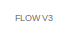
[diagram: root canvas - part 1/20, top right region]
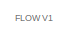
[diagram: root canvas - part 2/20, top left region]
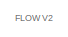
[diagram: root canvas - part 3/20, top center region]
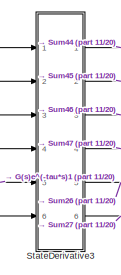
[diagram: root canvas - part 4/20, top center region]
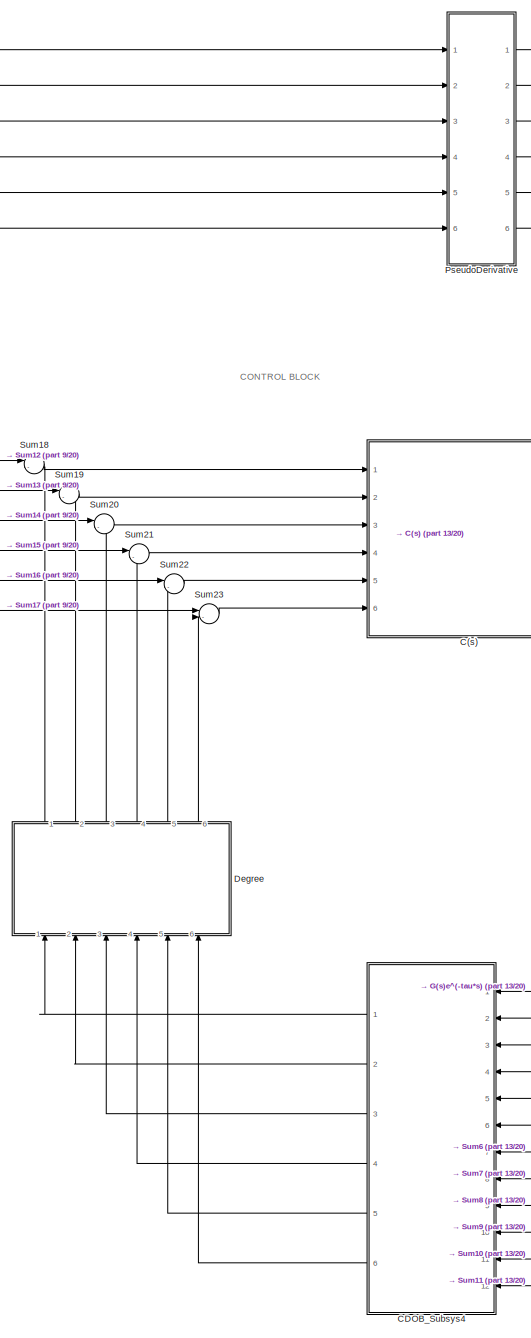
[diagram: root canvas - part 5/20, middle left region]
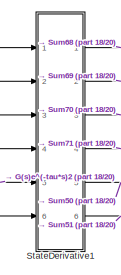
[diagram: root canvas - part 6/20, top right region]
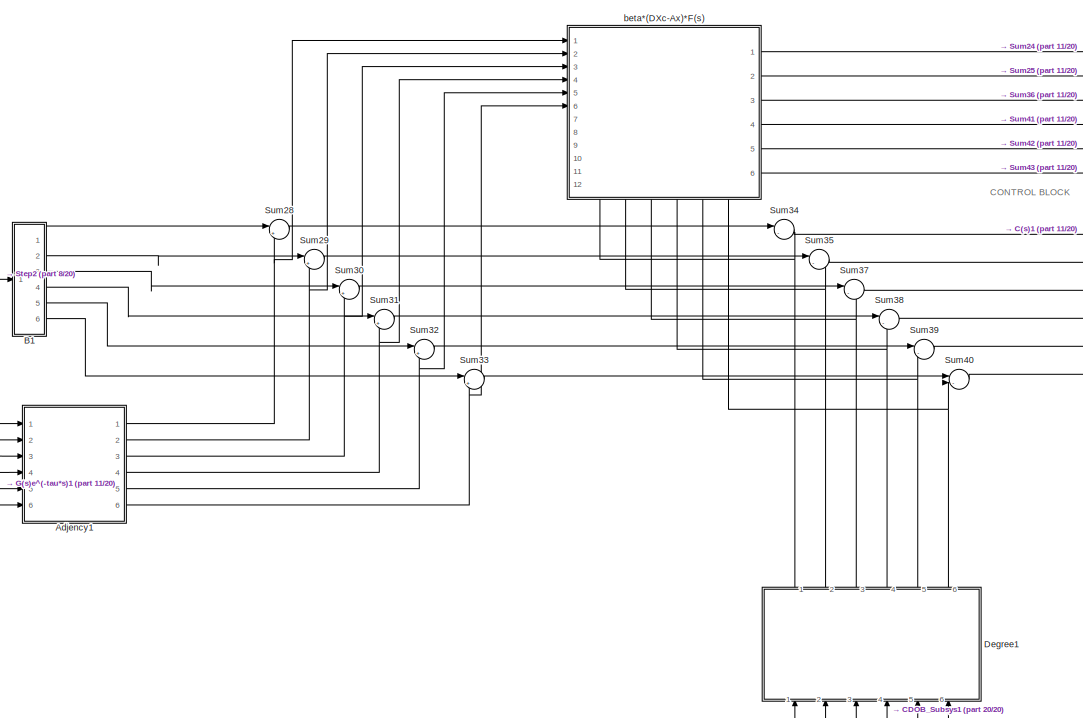
[diagram: root canvas - part 7/20, central region]
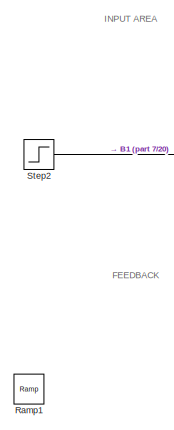
[diagram: root canvas - part 8/20, central region]
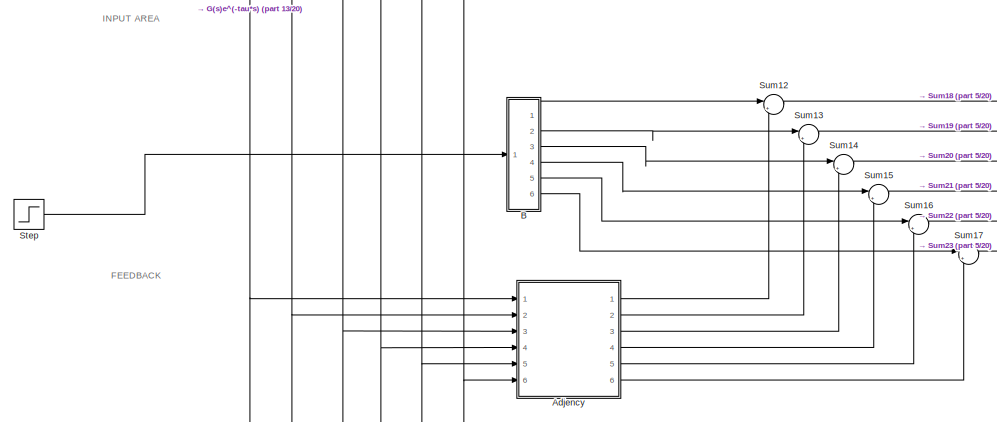
[diagram: root canvas - part 9/20, middle left region]
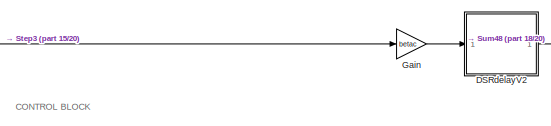
[diagram: root canvas - part 10/20, middle right region]
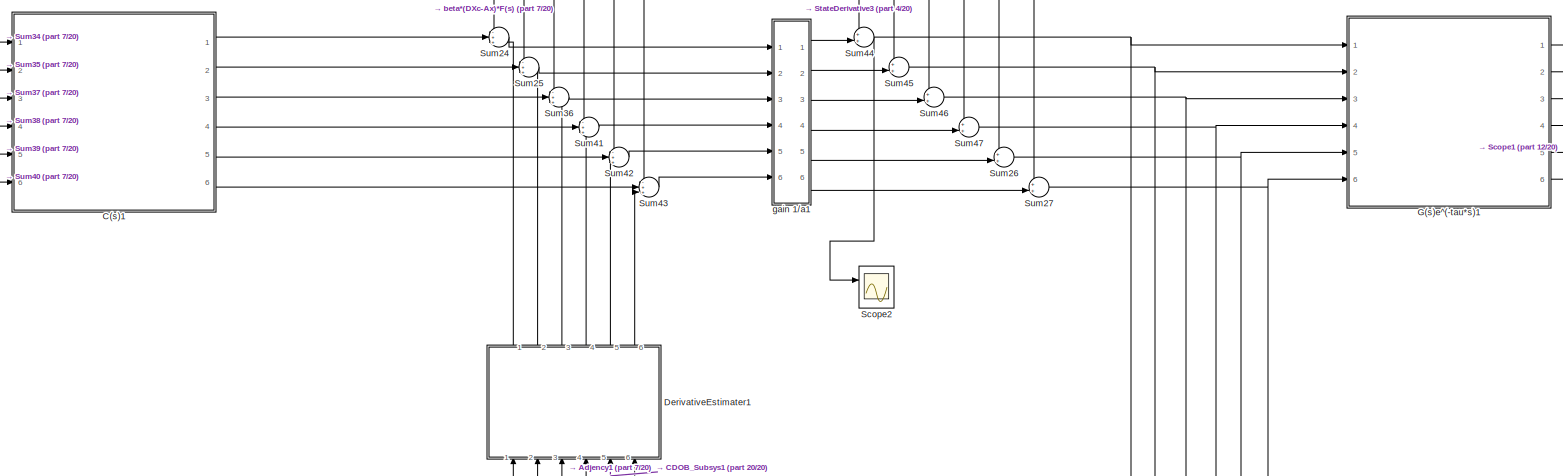
[diagram: root canvas - part 11/20, central region]
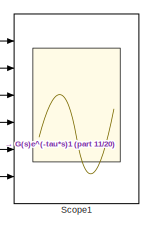
[diagram: root canvas - part 12/20, middle right region]
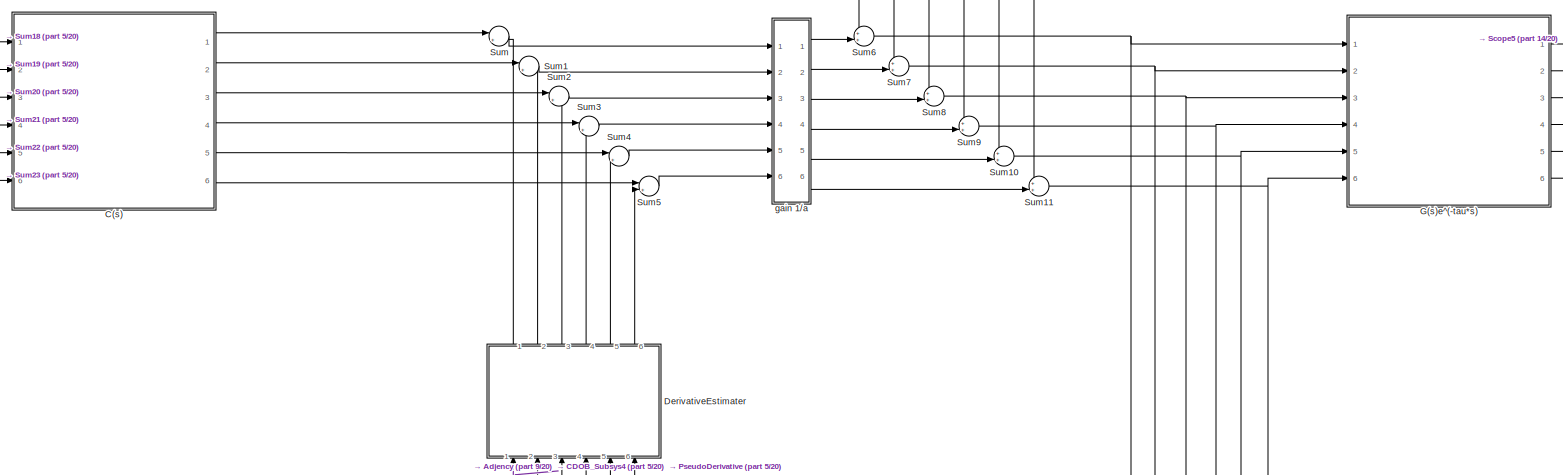
[diagram: root canvas - part 13/20, middle left region]
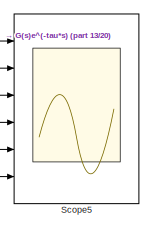
[diagram: root canvas - part 14/20, central region]
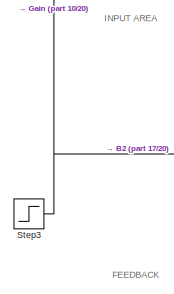
[diagram: root canvas - part 15/20, middle right region]
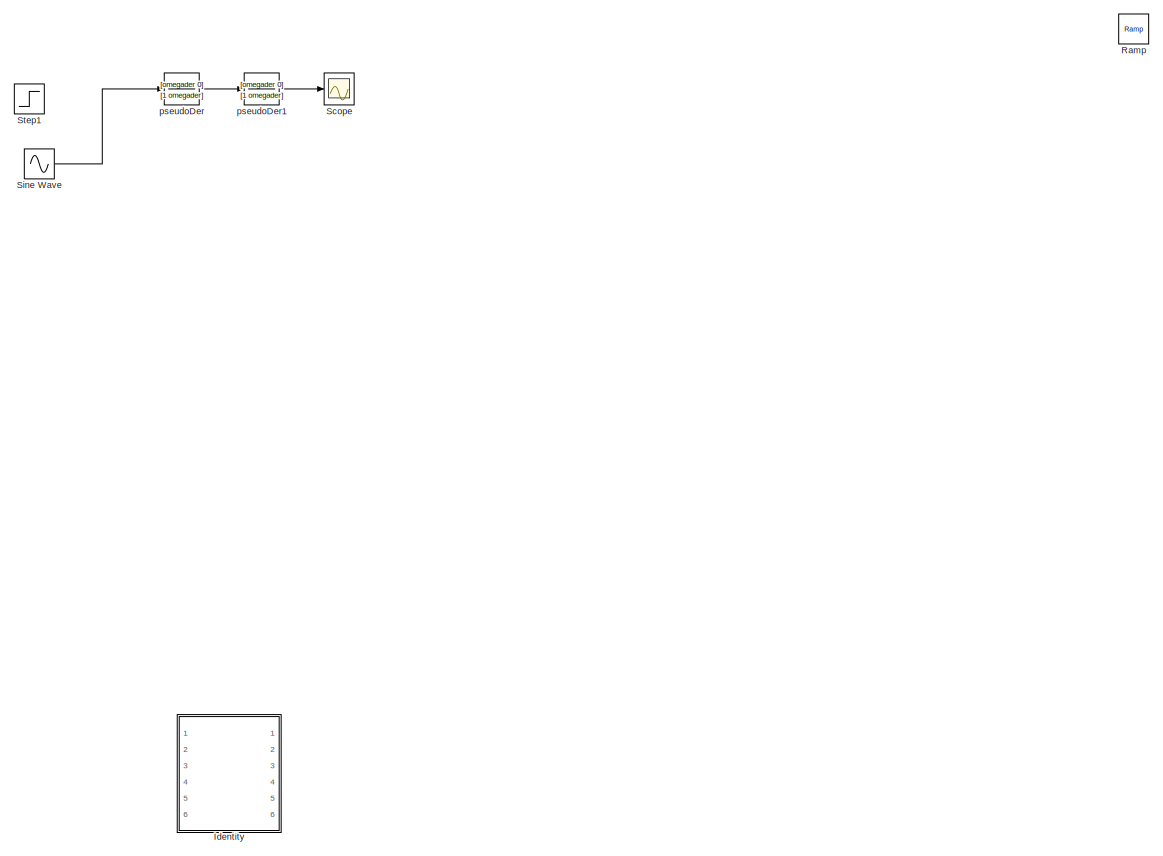
[diagram: root canvas - part 16/20, middle left region]
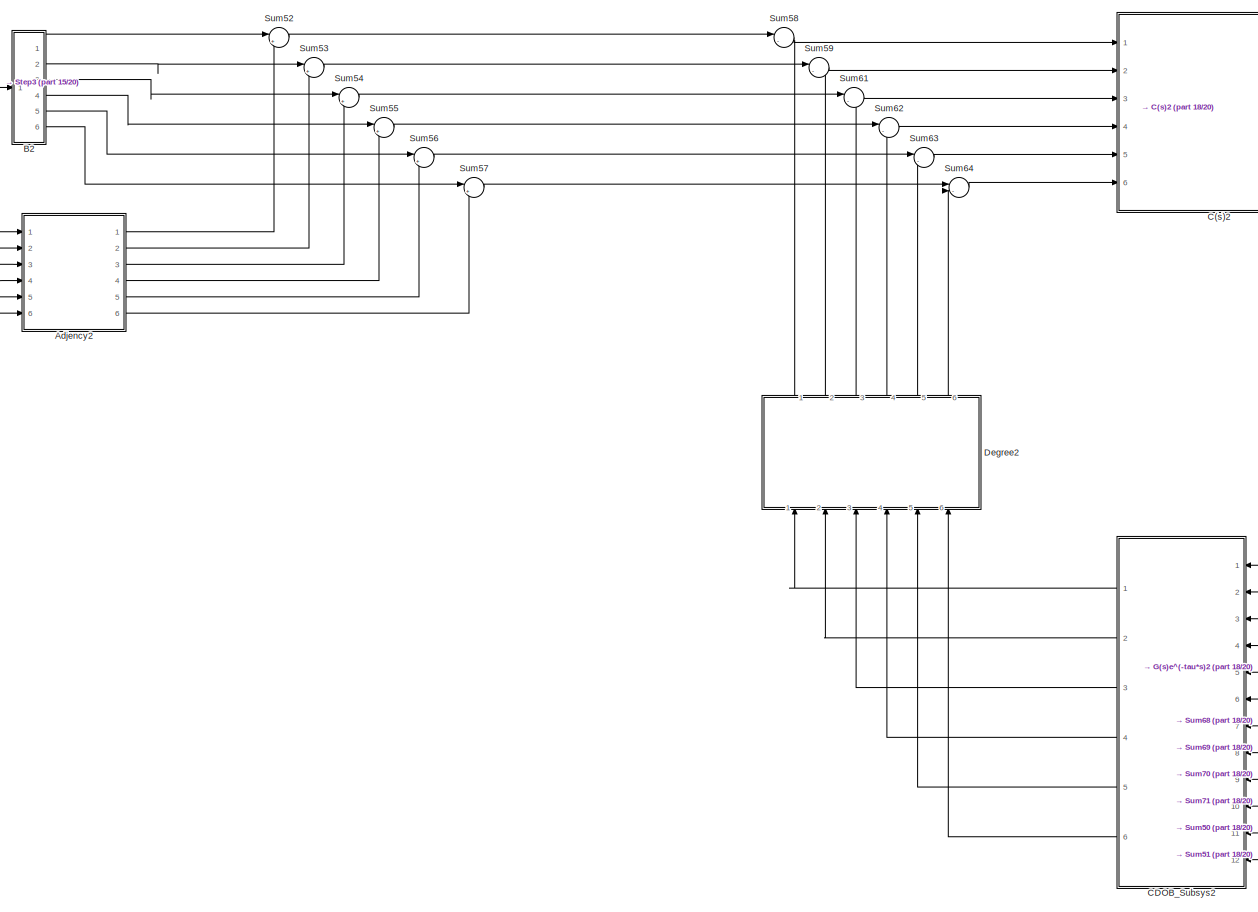
[diagram: root canvas - part 17/20, middle right region]
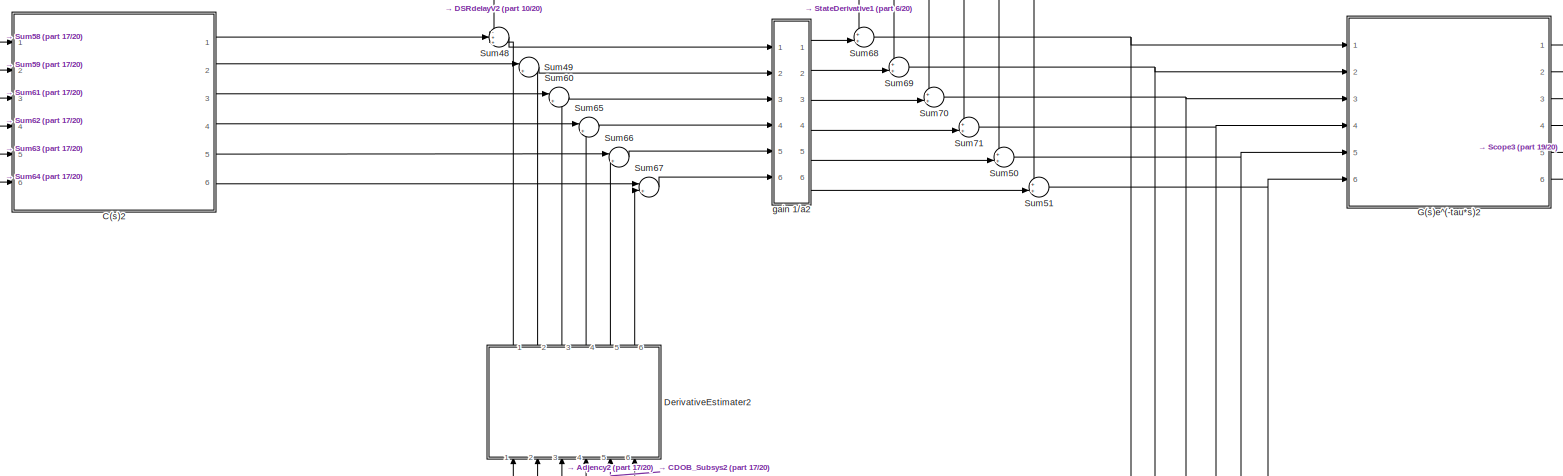
[diagram: root canvas - part 18/20, middle right region]
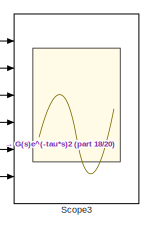
[diagram: root canvas - part 19/20, middle right region]
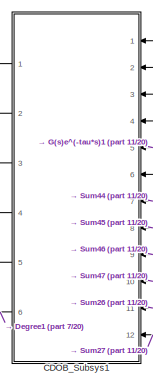
[diagram: root canvas - part 20/20, bottom center region]
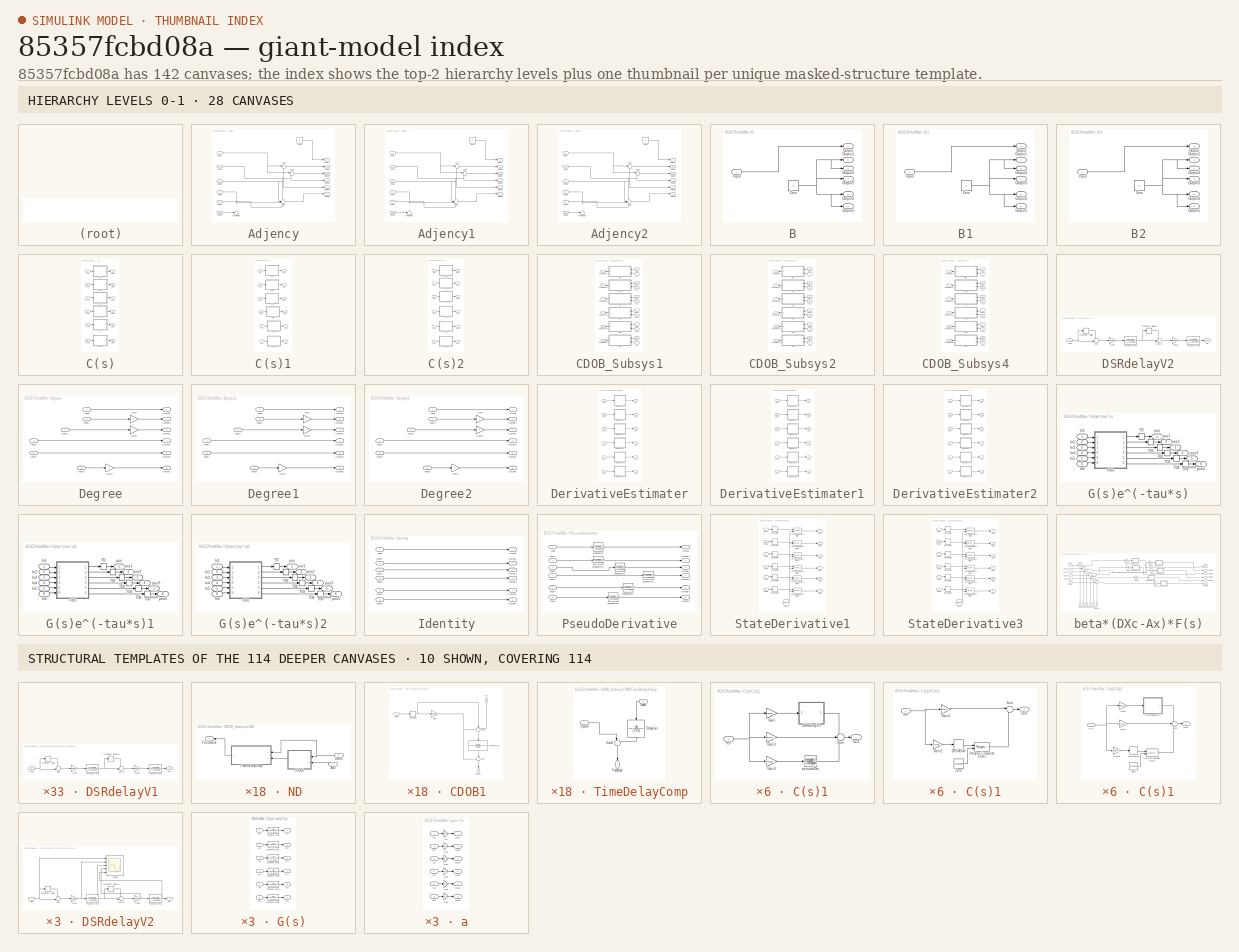
[diagram: thumbnail index - top-2 hierarchy levels (28 canvases) + 10 structural-template representatives of the remaining 114 canvases]
MODEL slx_85357fcbd08a
KIND model
CONFIG AbsTol = auto
CONFIG EnableMultiTasking = off
CONFIG FixedStep = auto
CONFIG MaxStep = auto
CONFIG MinStep = auto
CONFIG RelTol = 1e-3
CONFIG SampleTimeConstraint = Unconstrained
CONFIG SolverName = VariableStepAuto
CONFIG StartTime = 0.0
CONFIG StopTime = 10.0
BLOCK [SubSystem] Adjency
  Commented = on
  Ports = [6, 6]
  RequestExecContextInheritance = off
BLOCK [Inport] Adjency/Input
BLOCK [Inport] Adjency/Input1
  Port = 2
BLOCK [Inport] Adjency/Input2
  Port = 3
BLOCK [Inport] Adjency/Input3
  Port = 4
BLOCK [Inport] Adjency/Input4
  Port = 5
BLOCK [Inport] Adjency/Input5
  Port = 6
BLOCK [Outport] Adjency/Output
BLOCK [Outport] Adjency/Output1
  Port = 2
BLOCK [Outport] Adjency/Output2
  Port = 3
BLOCK [Outport] Adjency/Output3
  Port = 4
BLOCK [Outport] Adjency/Output4
  Port = 5
BLOCK [Outport] Adjency/Output5
  Port = 6
BLOCK [Sum] Adjency/Sum
  Inputs = |++
  Ports = [2, 1]
BLOCK [Sum] Adjency/Sum1
  Inputs = |++
  Ports = [2, 1]
BLOCK [Sum] Adjency/Sum2
  Inputs = ++++
  Ports = [4, 1]
BLOCK [Terminator] Adjency/Terminator
BLOCK [Constant] Adjency/Zero
  OutDataTypeStr = Inherit: Inherit via back propagation
  Value = 0
BLOCK [SubSystem] Adjency1
  Commented = on
  Ports = [6, 6]
  RequestExecContextInheritance = off
BLOCK [Inport] Adjency1/Input
BLOCK [Inport] Adjency1/Input1
  Port = 2
BLOCK [Inport] Adjency1/Input2
  Port = 3
BLOCK [Inport] Adjency1/Input3
  Port = 4
BLOCK [Inport] Adjency1/Input4
  Port = 5
BLOCK [Inport] Adjency1/Input5
  Port = 6
BLOCK [Outport] Adjency1/Output
BLOCK [Outport] Adjency1/Output1
  Port = 2
BLOCK [Outport] Adjency1/Output2
  Port = 3
BLOCK [Outport] Adjency1/Output3
  Port = 4
BLOCK [Outport] Adjency1/Output4
  Port = 5
BLOCK [Outport] Adjency1/Output5
  Port = 6
BLOCK [Sum] Adjency1/Sum
  Inputs = |++
  Ports = [2, 1]
BLOCK [Sum] Adjency1/Sum1
  Inputs = |++
  Ports = [2, 1]
BLOCK [Sum] Adjency1/Sum2
  Inputs = ++++
  Ports = [4, 1]
BLOCK [Terminator] Adjency1/Terminator
BLOCK [Constant] Adjency1/Zero
  OutDataTypeStr = Inherit: Inherit via back propagation
  Value = 0
BLOCK [SubSystem] Adjency2
  Ports = [6, 6]
  RequestExecContextInheritance = off
BLOCK [Inport] Adjency2/Input
BLOCK [Inport] Adjency2/Input1
  Port = 2
BLOCK [Inport] Adjency2/Input2
  Port = 3
BLOCK [Inport] Adjency2/Input3
  Port = 4
BLOCK [Inport] Adjency2/Input4
  Port = 5
BLOCK [Inport] Adjency2/Input5
  Port = 6
BLOCK [Outport] Adjency2/Output
BLOCK [Outport] Adjency2/Output1
  Port = 2
BLOCK [Outport] Adjency2/Output2
  Port = 3
BLOCK [Outport] Adjency2/Output3
  Port = 4
BLOCK [Outport] Adjency2/Output4
  Port = 5
BLOCK [Outport] Adjency2/Output5
  Port = 6
BLOCK [Sum] Adjency2/Sum
  Inputs = |++
  Ports = [2, 1]
BLOCK [Sum] Adjency2/Sum1
  Inputs = |++
  Ports = [2, 1]
BLOCK [Sum] Adjency2/Sum2
  Inputs = ++++
  Ports = [4, 1]
BLOCK [Terminator] Adjency2/Terminator
BLOCK [Constant] Adjency2/Zero
  OutDataTypeStr = Inherit: Inherit via back propagation
  Value = 0
BLOCK [SubSystem] B
  Commented = on
  Ports = [1, 6]
  RequestExecContextInheritance = off
BLOCK [Inport] B/Input
BLOCK [Outport] B/Output
BLOCK [Outport] B/Output1
  Port = 2
BLOCK [Outport] B/Output2
  Port = 3
BLOCK [Outport] B/Output3
  Port = 4
BLOCK [Outport] B/Output4
  Port = 5
BLOCK [Outport] B/Output5
  Port = 6
BLOCK [Constant] B/Zero
  OutDataTypeStr = Inherit: Inherit via back propagation
  Value = 0
BLOCK [SubSystem] B1
  Commented = on
  Ports = [1, 6]
  RequestExecContextInheritance = off
BLOCK [Inport] B1/Input
BLOCK [Outport] B1/Output
BLOCK [Outport] B1/Output1
  Port = 2
BLOCK [Outport] B1/Output2
  Port = 3
BLOCK [Outport] B1/Output3
  Port = 4
BLOCK [Outport] B1/Output4
  Port = 5
BLOCK [Outport] B1/Output5
  Port = 6
BLOCK [Constant] B1/Zero
  OutDataTypeStr = Inherit: Inherit via back propagation
  Value = 0
BLOCK [SubSystem] B2
  Ports = [1, 6]
  RequestExecContextInheritance = off
BLOCK [Inport] B2/Input
BLOCK [Outport] B2/Output
BLOCK [Outport] B2/Output1
  Port = 2
BLOCK [Outport] B2/Output2
  Port = 3
BLOCK [Outport] B2/Output3
  Port = 4
BLOCK [Outport] B2/Output4
  Port = 5
BLOCK [Outport] B2/Output5
  Port = 6
BLOCK [Constant] B2/Zero
  OutDataTypeStr = Inherit: Inherit via back propagation
  Value = 0
BLOCK [SubSystem] C(s)
  Commented = on
  Ports = [6, 6]
  RequestExecContextInheritance = off
BLOCK [SubSystem] C(s)/C(s)1
  Ports = [1, 1]
  RequestExecContextInheritance = off
BLOCK [SubSystem] C(s)/C(s)1/DSRdelayV1
  Ports = [1, 1]
  RequestExecContextInheritance = off
BLOCK [Gain] C(s)/C(s)1/DSRdelayV1/Gain
  Gain = 1/delay
BLOCK [Gain] C(s)/C(s)1/DSRdelayV1/Gain1
  Gain = 1/delay
BLOCK [Inport] C(s)/C(s)1/DSRdelayV1/Input
BLOCK [Sum] C(s)/C(s)1/DSRdelayV1/Sum
  Inputs = -+|
  Ports = [2, 1]
BLOCK [Sum] C(s)/C(s)1/DSRdelayV1/Sum13
  Inputs = -+|
  Ports = [2, 1]
BLOCK [TransferFcn] C(s)/C(s)1/DSRdelayV1/Transfer Fcn
  Denominator = [1 omega]
  Numerator = [omega]
BLOCK [TransferFcn] C(s)/C(s)1/DSRdelayV1/Transfer Fcn1
  Denominator = [1 omega]
  Numerator = [omega]
BLOCK [TransportDelay] C(s)/C(s)1/DSRdelayV1/Transport Delay
  DelayTime = delay
  Ports = [1, 1]
BLOCK [TransportDelay] C(s)/C(s)1/DSRdelayV1/Transport Delay13
  DelayTime = delay
  Ports = [1, 1]
BLOCK [Outport] C(s)/C(s)1/DSRdelayV1/est
BLOCK [Gain] C(s)/C(s)1/Gain
  Gain = betac
BLOCK [Gain] C(s)/C(s)1/Gain1
  Gain = betac*alpha^2
BLOCK [Gain] C(s)/C(s)1/Gain2
  Gain = 2*alpha*betac
BLOCK [Outport] C(s)/C(s)1/Out1
BLOCK [Inport] C(s)/C(s)1/R-F
BLOCK [Sum] C(s)/C(s)1/Sum
  Inputs = ---
  Ports = [3, 1]
BLOCK [TransferFcn] C(s)/C(s)1/pseudoDer
  Denominator = [1 omegader]
  Numerator = [omegader 0]
BLOCK [SubSystem] C(s)/C(s)2
  Ports = [1, 1]
  RequestExecContextInheritance = off
BLOCK [SubSystem] C(s)/C(s)2/DSRdelayV1
  Ports = [1, 1]
  RequestExecContextInheritance = off
BLOCK [Gain] C(s)/C(s)2/DSRdelayV1/Gain
  Gain = 1/delay
BLOCK [Gain] C(s)/C(s)2/DSRdelayV1/Gain1
  Gain = 1/delay
BLOCK [Inport] C(s)/C(s)2/DSRdelayV1/Input
BLOCK [Sum] C(s)/C(s)2/DSRdelayV1/Sum
  Inputs = -+|
  Ports = [2, 1]
BLOCK [Sum] C(s)/C(s)2/DSRdelayV1/Sum13
  Inputs = -+|
  Ports = [2, 1]
BLOCK [TransferFcn] C(s)/C(s)2/DSRdelayV1/Transfer Fcn
  Denominator = [1 omega]
  Numerator = [omega]
BLOCK [TransferFcn] C(s)/C(s)2/DSRdelayV1/Transfer Fcn1
  Denominator = [1 omega]
  Numerator = [omega]
BLOCK [TransportDelay] C(s)/C(s)2/DSRdelayV1/Transport Delay
  DelayTime = delay
  Ports = [1, 1]
BLOCK [TransportDelay] C(s)/C(s)2/DSRdelayV1/Transport Delay13
  DelayTime = delay
  Ports = [1, 1]
BLOCK [Outport] C(s)/C(s)2/DSRdelayV1/est
BLOCK [Gain] C(s)/C(s)2/Gain
  Gain = betac
BLOCK [Gain] C(s)/C(s)2/Gain1
  Gain = betac*alpha^2
BLOCK [Gain] C(s)/C(s)2/Gain2
  Gain = 2*alpha*betac
BLOCK [Outport] C(s)/C(s)2/Out1
BLOCK [Inport] C(s)/C(s)2/R-F
BLOCK [Sum] C(s)/C(s)2/Sum
  Inputs = ---
  Ports = [3, 1]
BLOCK [TransferFcn] C(s)/C(s)2/pseudoDer
  Denominator = [1 omegader]
  Numerator = [omegader 0]
BLOCK [SubSystem] C(s)/C(s)3
  Ports = [1, 1]
  RequestExecContextInheritance = off
BLOCK [SubSystem] C(s)/C(s)3/DSRdelayV1
  Ports = [1, 1]
  RequestExecContextInheritance = off
BLOCK [Gain] C(s)/C(s)3/DSRdelayV1/Gain
  Gain = 1/delay
BLOCK [Gain] C(s)/C(s)3/DSRdelayV1/Gain1
  Gain = 1/delay
BLOCK [Inport] C(s)/C(s)3/DSRdelayV1/Input
BLOCK [Sum] C(s)/C(s)3/DSRdelayV1/Sum
  Inputs = -+|
  Ports = [2, 1]
BLOCK [Sum] C(s)/C(s)3/DSRdelayV1/Sum13
  Inputs = -+|
  Ports = [2, 1]
BLOCK [TransferFcn] C(s)/C(s)3/DSRdelayV1/Transfer Fcn
  Denominator = [1 omega]
  Numerator = [omega]
BLOCK [TransferFcn] C(s)/C(s)3/DSRdelayV1/Transfer Fcn1
  Denominator = [1 omega]
  Numerator = [omega]
BLOCK [TransportDelay] C(s)/C(s)3/DSRdelayV1/Transport Delay
  DelayTime = delay
  Ports = [1, 1]
BLOCK [TransportDelay] C(s)/C(s)3/DSRdelayV1/Transport Delay13
  DelayTime = delay
  Ports = [1, 1]
BLOCK [Outport] C(s)/C(s)3/DSRdelayV1/est
BLOCK [Gain] C(s)/C(s)3/Gain
  Gain = betac
BLOCK [Gain] C(s)/C(s)3/Gain1
  Gain = betac*alpha^2
BLOCK [Gain] C(s)/C(s)3/Gain2
  Gain = 2*alpha*betac
BLOCK [Outport] C(s)/C(s)3/Out1
BLOCK [Inport] C(s)/C(s)3/R-F
BLOCK [Sum] C(s)/C(s)3/Sum
  Inputs = ---
  Ports = [3, 1]
BLOCK [TransferFcn] C(s)/C(s)3/pseudoDer
  Denominator = [1 omegader]
  Numerator = [omegader 0]
BLOCK [SubSystem] C(s)/C(s)4
  Ports = [1, 1]
  RequestExecContextInheritance = off
BLOCK [SubSystem] C(s)/C(s)4/DSRdelayV1
  Ports = [1, 1]
  RequestExecContextInheritance = off
BLOCK [Gain] C(s)/C(s)4/DSRdelayV1/Gain
  Gain = 1/delay
BLOCK [Gain] C(s)/C(s)4/DSRdelayV1/Gain1
  Gain = 1/delay
BLOCK [Inport] C(s)/C(s)4/DSRdelayV1/Input
BLOCK [Sum] C(s)/C(s)4/DSRdelayV1/Sum
  Inputs = -+|
  Ports = [2, 1]
BLOCK [Sum] C(s)/C(s)4/DSRdelayV1/Sum13
  Inputs = -+|
  Ports = [2, 1]
BLOCK [TransferFcn] C(s)/C(s)4/DSRdelayV1/Transfer Fcn
  Denominator = [1 omega]
  Numerator = [omega]
BLOCK [TransferFcn] C(s)/C(s)4/DSRdelayV1/Transfer Fcn1
  Denominator = [1 omega]
  Numerator = [omega]
BLOCK [TransportDelay] C(s)/C(s)4/DSRdelayV1/Transport Delay
  DelayTime = delay
  Ports = [1, 1]
BLOCK [TransportDelay] C(s)/C(s)4/DSRdelayV1/Transport Delay13
  DelayTime = delay
  Ports = [1, 1]
BLOCK [Outport] C(s)/C(s)4/DSRdelayV1/est
BLOCK [Gain] C(s)/C(s)4/Gain
  Gain = betac
BLOCK [Gain] C(s)/C(s)4/Gain1
  Gain = betac*alpha^2
BLOCK [Gain] C(s)/C(s)4/Gain2
  Gain = 2*alpha*betac
BLOCK [Outport] C(s)/C(s)4/Out1
BLOCK [Inport] C(s)/C(s)4/R-F
BLOCK [Sum] C(s)/C(s)4/Sum
  Inputs = ---
  Ports = [3, 1]
BLOCK [TransferFcn] C(s)/C(s)4/pseudoDer
  Denominator = [1 omegader]
  Numerator = [omegader 0]
BLOCK [SubSystem] C(s)/C(s)5
  Ports = [1, 1]
  RequestExecContextInheritance = off
BLOCK [SubSystem] C(s)/C(s)5/DSRdelayV1
  Ports = [1, 1]
  RequestExecContextInheritance = off
BLOCK [Gain] C(s)/C(s)5/DSRdelayV1/Gain
  Gain = 1/delay
BLOCK [Gain] C(s)/C(s)5/DSRdelayV1/Gain1
  Gain = 1/delay
BLOCK [Inport] C(s)/C(s)5/DSRdelayV1/Input
BLOCK [Sum] C(s)/C(s)5/DSRdelayV1/Sum
  Inputs = -+|
  Ports = [2, 1]
BLOCK [Sum] C(s)/C(s)5/DSRdelayV1/Sum13
  Inputs = -+|
  Ports = [2, 1]
BLOCK [TransferFcn] C(s)/C(s)5/DSRdelayV1/Transfer Fcn
  Denominator = [1 omega]
  Numerator = [omega]
BLOCK [TransferFcn] C(s)/C(s)5/DSRdelayV1/Transfer Fcn1
  Denominator = [1 omega]
  Numerator = [omega]
BLOCK [TransportDelay] C(s)/C(s)5/DSRdelayV1/Transport Delay
  DelayTime = delay
  Ports = [1, 1]
BLOCK [TransportDelay] C(s)/C(s)5/DSRdelayV1/Transport Delay13
  DelayTime = delay
  Ports = [1, 1]
BLOCK [Outport] C(s)/C(s)5/DSRdelayV1/est
BLOCK [Gain] C(s)/C(s)5/Gain
  Gain = betac
BLOCK [Gain] C(s)/C(s)5/Gain1
  Gain = betac*alpha^2
BLOCK [Gain] C(s)/C(s)5/Gain2
  Gain = 2*alpha*betac
BLOCK [Outport] C(s)/C(s)5/Out1
BLOCK [Inport] C(s)/C(s)5/R-F
BLOCK [Sum] C(s)/C(s)5/Sum
  Inputs = ---
  Ports = [3, 1]
BLOCK [TransferFcn] C(s)/C(s)5/pseudoDer
  Denominator = [1 omegader]
  Numerator = [omegader 0]
BLOCK [SubSystem] C(s)/C(s)6
  Ports = [1, 1]
  RequestExecContextInheritance = off
BLOCK [SubSystem] C(s)/C(s)6/DSRdelayV1
  Ports = [1, 1]
  RequestExecContextInheritance = off
BLOCK [Gain] C(s)/C(s)6/DSRdelayV1/Gain
  Gain = 1/delay
BLOCK [Gain] C(s)/C(s)6/DSRdelayV1/Gain1
  Gain = 1/delay
BLOCK [Inport] C(s)/C(s)6/DSRdelayV1/Input
BLOCK [Sum] C(s)/C(s)6/DSRdelayV1/Sum
  Inputs = -+|
  Ports = [2, 1]
BLOCK [Sum] C(s)/C(s)6/DSRdelayV1/Sum13
  Inputs = -+|
  Ports = [2, 1]
BLOCK [TransferFcn] C(s)/C(s)6/DSRdelayV1/Transfer Fcn
  Denominator = [1 omega]
  Numerator = [omega]
BLOCK [TransferFcn] C(s)/C(s)6/DSRdelayV1/Transfer Fcn1
  Denominator = [1 omega]
  Numerator = [omega]
BLOCK [TransportDelay] C(s)/C(s)6/DSRdelayV1/Transport Delay
  DelayTime = delay
  Ports = [1, 1]
BLOCK [TransportDelay] C(s)/C(s)6/DSRdelayV1/Transport Delay13
  DelayTime = delay
  Ports = [1, 1]
BLOCK [Outport] C(s)/C(s)6/DSRdelayV1/est
BLOCK [Gain] C(s)/C(s)6/Gain
  Gain = betac
BLOCK [Gain] C(s)/C(s)6/Gain1
  Gain = betac*alpha^2
BLOCK [Gain] C(s)/C(s)6/Gain2
  Gain = 2*alpha*betac
BLOCK [Outport] C(s)/C(s)6/Out1
BLOCK [Inport] C(s)/C(s)6/R-F
BLOCK [Sum] C(s)/C(s)6/Sum
  Inputs = ---
  Ports = [3, 1]
BLOCK [TransferFcn] C(s)/C(s)6/pseudoDer
  Denominator = [1 omegader]
  Numerator = [omegader 0]
BLOCK [Outport] C(s)/Out1
BLOCK [Outport] C(s)/Out2
  Port = 2
BLOCK [Outport] C(s)/Out3
  Port = 3
BLOCK [Outport] C(s)/Out4
  Port = 4
BLOCK [Outport] C(s)/Out5
  Port = 5
BLOCK [Outport] C(s)/Out6
  Port = 6
BLOCK [Inport] C(s)/R-F
BLOCK [Inport] C(s)/R-F1
  Port = 2
BLOCK [Inport] C(s)/R-F2
  Port = 3
BLOCK [Inport] C(s)/R-F3
  Port = 4
BLOCK [Inport] C(s)/R-F4
  Port = 5
BLOCK [Inport] C(s)/R-F5
  Port = 6
BLOCK [SubSystem] C(s)1
  Commented = on
  Ports = [6, 6]
  RequestExecContextInheritance = off
BLOCK [SubSystem] C(s)1/C(s)1
  Ports = [1, 1]
  RequestExecContextInheritance = off
BLOCK [Derivative] C(s)1/C(s)1/Derivative
BLOCK [Gain] C(s)1/C(s)1/Gain1
  Gain = betac*alpha^2
BLOCK [Gain] C(s)1/C(s)1/Gain2
  Gain = 2*alpha*betac
BLOCK [Outport] C(s)1/C(s)1/Out1
BLOCK [Inport] C(s)1/C(s)1/R-F
BLOCK [Sum] C(s)1/C(s)1/Sum
  Inputs = |--
  Ports = [2, 1]
BLOCK [Reference] C(s)1/C(s)1/Varying Lowpass Filter  REF=cstblocks/Linear Parameter Varying/Varying Lowpass Filter
  Ports = [2, 1]
  SourceBlock = cstblocks/Linear Parameter Varying/Varying Lowpass Filter
  SourceProductBaseCode = CT
  SourceType = Varying Lowpass Filter
BLOCK [Constant] C(s)1/C(s)1/Zero
  OutDataTypeStr = Inherit: Inherit via back propagation
  Value = omegader
BLOCK [SubSystem] C(s)1/C(s)2
  Ports = [1, 1]
  RequestExecContextInheritance = off
BLOCK [Derivative] C(s)1/C(s)2/Derivative
BLOCK [Gain] C(s)1/C(s)2/Gain1
  Gain = betac*alpha^2
BLOCK [Gain] C(s)1/C(s)2/Gain2
  Gain = 2*alpha*betac
BLOCK [Outport] C(s)1/C(s)2/Out1
BLOCK [Inport] C(s)1/C(s)2/R-F
BLOCK [Sum] C(s)1/C(s)2/Sum
  Inputs = |--
  Ports = [2, 1]
BLOCK [Reference] C(s)1/C(s)2/Varying Lowpass Filter  REF=cstblocks/Linear Parameter Varying/Varying Lowpass Filter
  Ports = [2, 1]
  SourceBlock = cstblocks/Linear Parameter Varying/Varying Lowpass Filter
  SourceProductBaseCode = CT
  SourceType = Varying Lowpass Filter
BLOCK [Constant] C(s)1/C(s)2/Zero
  OutDataTypeStr = Inherit: Inherit via back propagation
  Value = omegader
BLOCK [SubSystem] C(s)1/C(s)3
  Ports = [1, 1]
  RequestExecContextInheritance = off
BLOCK [Derivative] C(s)1/C(s)3/Derivative
BLOCK [Gain] C(s)1/C(s)3/Gain1
  Gain = betac*alpha^2
BLOCK [Gain] C(s)1/C(s)3/Gain2
  Gain = 2*alpha*betac
BLOCK [Outport] C(s)1/C(s)3/Out1
BLOCK [Inport] C(s)1/C(s)3/R-F
BLOCK [Sum] C(s)1/C(s)3/Sum
  Inputs = |--
  Ports = [2, 1]
BLOCK [Reference] C(s)1/C(s)3/Varying Lowpass Filter  REF=cstblocks/Linear Parameter Varying/Varying Lowpass Filter
  Ports = [2, 1]
  SourceBlock = cstblocks/Linear Parameter Varying/Varying Lowpass Filter
  SourceProductBaseCode = CT
  SourceType = Varying Lowpass Filter
BLOCK [Constant] C(s)1/C(s)3/Zero
  OutDataTypeStr = Inherit: Inherit via back propagation
  Value = omegader
BLOCK [SubSystem] C(s)1/C(s)4
  Ports = [1, 1]
  RequestExecContextInheritance = off
BLOCK [Derivative] C(s)1/C(s)4/Derivative
BLOCK [Gain] C(s)1/C(s)4/Gain1
  Gain = betac*alpha^2
BLOCK [Gain] C(s)1/C(s)4/Gain2
  Gain = 2*alpha*betac
BLOCK [Outport] C(s)1/C(s)4/Out1
BLOCK [Inport] C(s)1/C(s)4/R-F
BLOCK [Sum] C(s)1/C(s)4/Sum
  Inputs = |--
  Ports = [2, 1]
BLOCK [Reference] C(s)1/C(s)4/Varying Lowpass Filter  REF=cstblocks/Linear Parameter Varying/Varying Lowpass Filter
  Ports = [2, 1]
  SourceBlock = cstblocks/Linear Parameter Varying/Varying Lowpass Filter
  SourceProductBaseCode = CT
  SourceType = Varying Lowpass Filter
BLOCK [Constant] C(s)1/C(s)4/Zero
  OutDataTypeStr = Inherit: Inherit via back propagation
  Value = omegader
BLOCK [SubSystem] C(s)1/C(s)5
  Ports = [1, 1]
  RequestExecContextInheritance = off
BLOCK [Derivative] C(s)1/C(s)5/Derivative
BLOCK [Gain] C(s)1/C(s)5/Gain1
  Gain = betac*alpha^2
BLOCK [Gain] C(s)1/C(s)5/Gain2
  Gain = 2*alpha*betac
BLOCK [Outport] C(s)1/C(s)5/Out1
BLOCK [Inport] C(s)1/C(s)5/R-F
BLOCK [Sum] C(s)1/C(s)5/Sum
  Inputs = |--
  Ports = [2, 1]
BLOCK [Reference] C(s)1/C(s)5/Varying Lowpass Filter  REF=cstblocks/Linear Parameter Varying/Varying Lowpass Filter
  Ports = [2, 1]
  SourceBlock = cstblocks/Linear Parameter Varying/Varying Lowpass Filter
  SourceProductBaseCode = CT
  SourceType = Varying Lowpass Filter
BLOCK [Constant] C(s)1/C(s)5/Zero
  OutDataTypeStr = Inherit: Inherit via back propagation
  Value = omegader
BLOCK [SubSystem] C(s)1/C(s)6
  Ports = [1, 1]
  RequestExecContextInheritance = off
BLOCK [Derivative] C(s)1/C(s)6/Derivative
BLOCK [Gain] C(s)1/C(s)6/Gain1
  Gain = betac*alpha^2
BLOCK [Gain] C(s)1/C(s)6/Gain2
  Gain = 2*alpha*betac
BLOCK [Outport] C(s)1/C(s)6/Out1
BLOCK [Inport] C(s)1/C(s)6/R-F
BLOCK [Sum] C(s)1/C(s)6/Sum
  Inputs = |--
  Ports = [2, 1]
BLOCK [Reference] C(s)1/C(s)6/Varying Lowpass Filter  REF=cstblocks/Linear Parameter Varying/Varying Lowpass Filter
  Ports = [2, 1]
  SourceBlock = cstblocks/Linear Parameter Varying/Varying Lowpass Filter
  SourceProductBaseCode = CT
  SourceType = Varying Lowpass Filter
BLOCK [Constant] C(s)1/C(s)6/Zero
  OutDataTypeStr = Inherit: Inherit via back propagation
  Value = omegader
BLOCK [Outport] C(s)1/Out1
BLOCK [Outport] C(s)1/Out2
  Port = 2
BLOCK [Outport] C(s)1/Out3
  Port = 3
BLOCK [Outport] C(s)1/Out4
  Port = 4
BLOCK [Outport] C(s)1/Out5
  Port = 5
BLOCK [Outport] C(s)1/Out6
  Port = 6
BLOCK [Inport] C(s)1/R-F
BLOCK [Inport] C(s)1/R-F1
  Port = 2
BLOCK [Inport] C(s)1/R-F2
  Port = 3
BLOCK [Inport] C(s)1/R-F3
  Port = 4
BLOCK [Inport] C(s)1/R-F4
  Port = 5
BLOCK [Inport] C(s)1/R-F5
  Port = 6
BLOCK [SubSystem] C(s)2
  Ports = [6, 6]
  RequestExecContextInheritance = off
BLOCK [SubSystem] C(s)2/C(s)1
  Ports = [1, 1]
  RequestExecContextInheritance = off
BLOCK [SubSystem] C(s)2/C(s)1/DSRdelayV1
  Ports = [1, 1]
  RequestExecContextInheritance = off
BLOCK [Gain] C(s)2/C(s)1/DSRdelayV1/Gain
  Gain = 1/delay
BLOCK [Gain] C(s)2/C(s)1/DSRdelayV1/Gain1
  Gain = 1/delay
BLOCK [Inport] C(s)2/C(s)1/DSRdelayV1/Input
BLOCK [Sum] C(s)2/C(s)1/DSRdelayV1/Sum
  Inputs = -+|
  Ports = [2, 1]
BLOCK [Sum] C(s)2/C(s)1/DSRdelayV1/Sum13
  Inputs = -+|
  Ports = [2, 1]
BLOCK [TransferFcn] C(s)2/C(s)1/DSRdelayV1/Transfer Fcn
  Denominator = [1 omega]
  Numerator = [omega]
BLOCK [TransferFcn] C(s)2/C(s)1/DSRdelayV1/Transfer Fcn1
  Denominator = [1 omega]
  Numerator = [omega]
BLOCK [TransportDelay] C(s)2/C(s)1/DSRdelayV1/Transport Delay
  DelayTime = delay
  Ports = [1, 1]
BLOCK [TransportDelay] C(s)2/C(s)1/DSRdelayV1/Transport Delay13
  DelayTime = delay
  Ports = [1, 1]
BLOCK [Outport] C(s)2/C(s)1/DSRdelayV1/est
BLOCK [Derivative] C(s)2/C(s)1/Derivative
BLOCK [Gain] C(s)2/C(s)1/Gain
  Gain = betac
BLOCK [Gain] C(s)2/C(s)1/Gain1
  Gain = betac*alpha^2
BLOCK [Gain] C(s)2/C(s)1/Gain3
  Gain = 2*alpha*betac
BLOCK [Outport] C(s)2/C(s)1/Out1
BLOCK [Inport] C(s)2/C(s)1/R-F
BLOCK [Sum] C(s)2/C(s)1/Sum
  Inputs = ---
  Ports = [3, 1]
BLOCK [Reference] C(s)2/C(s)1/Varying Lowpass Filter  REF=cstblocks/Linear Parameter Varying/Varying Lowpass Filter
  Ports = [2, 1]
  SourceBlock = cstblocks/Linear Parameter Varying/Varying Lowpass Filter
  SourceProductBaseCode = CT
  SourceType = Varying Lowpass Filter
BLOCK [Constant] C(s)2/C(s)1/Zero
  OutDataTypeStr = Inherit: Inherit via back propagation
  Value = omegader
BLOCK [SubSystem] C(s)2/C(s)2
  Ports = [1, 1]
  RequestExecContextInheritance = off
BLOCK [SubSystem] C(s)2/C(s)2/DSRdelayV1
  Ports = [1, 1]
  RequestExecContextInheritance = off
BLOCK [Gain] C(s)2/C(s)2/DSRdelayV1/Gain
  Gain = 1/delay
BLOCK [Gain] C(s)2/C(s)2/DSRdelayV1/Gain1
  Gain = 1/delay
BLOCK [Inport] C(s)2/C(s)2/DSRdelayV1/Input
BLOCK [Sum] C(s)2/C(s)2/DSRdelayV1/Sum
  Inputs = -+|
  Ports = [2, 1]
BLOCK [Sum] C(s)2/C(s)2/DSRdelayV1/Sum13
  Inputs = -+|
  Ports = [2, 1]
BLOCK [TransferFcn] C(s)2/C(s)2/DSRdelayV1/Transfer Fcn
  Denominator = [1 omega]
  Numerator = [omega]
BLOCK [TransferFcn] C(s)2/C(s)2/DSRdelayV1/Transfer Fcn1
  Denominator = [1 omega]
  Numerator = [omega]
BLOCK [TransportDelay] C(s)2/C(s)2/DSRdelayV1/Transport Delay
  DelayTime = delay
  Ports = [1, 1]
BLOCK [TransportDelay] C(s)2/C(s)2/DSRdelayV1/Transport Delay13
  DelayTime = delay
  Ports = [1, 1]
BLOCK [Outport] C(s)2/C(s)2/DSRdelayV1/est
BLOCK [Derivative] C(s)2/C(s)2/Derivative
BLOCK [Gain] C(s)2/C(s)2/Gain
  Gain = betac
BLOCK [Gain] C(s)2/C(s)2/Gain1
  Gain = betac*alpha^2
BLOCK [Gain] C(s)2/C(s)2/Gain3
  Gain = 2*alpha*betac
BLOCK [Outport] C(s)2/C(s)2/Out1
BLOCK [Inport] C(s)2/C(s)2/R-F
BLOCK [Sum] C(s)2/C(s)2/Sum
  Inputs = ---
  Ports = [3, 1]
BLOCK [Reference] C(s)2/C(s)2/Varying Lowpass Filter  REF=cstblocks/Linear Parameter Varying/Varying Lowpass Filter
  Ports = [2, 1]
  SourceBlock = cstblocks/Linear Parameter Varying/Varying Lowpass Filter
  SourceProductBaseCode = CT
  SourceType = Varying Lowpass Filter
BLOCK [Constant] C(s)2/C(s)2/Zero
  OutDataTypeStr = Inherit: Inherit via back propagation
  Value = omegader
BLOCK [SubSystem] C(s)2/C(s)3
  Ports = [1, 1]
  RequestExecContextInheritance = off
BLOCK [SubSystem] C(s)2/C(s)3/DSRdelayV1
  Ports = [1, 1]
  RequestExecContextInheritance = off
BLOCK [Gain] C(s)2/C(s)3/DSRdelayV1/Gain
  Gain = 1/delay
BLOCK [Gain] C(s)2/C(s)3/DSRdelayV1/Gain1
  Gain = 1/delay
BLOCK [Inport] C(s)2/C(s)3/DSRdelayV1/Input
BLOCK [Sum] C(s)2/C(s)3/DSRdelayV1/Sum
  Inputs = -+|
  Ports = [2, 1]
BLOCK [Sum] C(s)2/C(s)3/DSRdelayV1/Sum13
  Inputs = -+|
  Ports = [2, 1]
BLOCK [TransferFcn] C(s)2/C(s)3/DSRdelayV1/Transfer Fcn
  Denominator = [1 omega]
  Numerator = [omega]
BLOCK [TransferFcn] C(s)2/C(s)3/DSRdelayV1/Transfer Fcn1
  Denominator = [1 omega]
  Numerator = [omega]
BLOCK [TransportDelay] C(s)2/C(s)3/DSRdelayV1/Transport Delay
  DelayTime = delay
  Ports = [1, 1]
BLOCK [TransportDelay] C(s)2/C(s)3/DSRdelayV1/Transport Delay13
  DelayTime = delay
  Ports = [1, 1]
BLOCK [Outport] C(s)2/C(s)3/DSRdelayV1/est
BLOCK [Derivative] C(s)2/C(s)3/Derivative
BLOCK [Gain] C(s)2/C(s)3/Gain
  Gain = betac
BLOCK [Gain] C(s)2/C(s)3/Gain1
  Gain = betac*alpha^2
BLOCK [Gain] C(s)2/C(s)3/Gain3
  Gain = 2*alpha*betac
BLOCK [Outport] C(s)2/C(s)3/Out1
BLOCK [Inport] C(s)2/C(s)3/R-F
BLOCK [Sum] C(s)2/C(s)3/Sum
  Inputs = ---
  Ports = [3, 1]
BLOCK [Reference] C(s)2/C(s)3/Varying Lowpass Filter  REF=cstblocks/Linear Parameter Varying/Varying Lowpass Filter
  Ports = [2, 1]
  SourceBlock = cstblocks/Linear Parameter Varying/Varying Lowpass Filter
  SourceProductBaseCode = CT
  SourceType = Varying Lowpass Filter
BLOCK [Constant] C(s)2/C(s)3/Zero
  OutDataTypeStr = Inherit: Inherit via back propagation
  Value = omegader
BLOCK [SubSystem] C(s)2/C(s)4
  Ports = [1, 1]
  RequestExecContextInheritance = off
BLOCK [SubSystem] C(s)2/C(s)4/DSRdelayV1
  Ports = [1, 1]
  RequestExecContextInheritance = off
BLOCK [Gain] C(s)2/C(s)4/DSRdelayV1/Gain
  Gain = 1/delay
BLOCK [Gain] C(s)2/C(s)4/DSRdelayV1/Gain1
  Gain = 1/delay
BLOCK [Inport] C(s)2/C(s)4/DSRdelayV1/Input
BLOCK [Sum] C(s)2/C(s)4/DSRdelayV1/Sum
  Inputs = -+|
  Ports = [2, 1]
BLOCK [Sum] C(s)2/C(s)4/DSRdelayV1/Sum13
  Inputs = -+|
  Ports = [2, 1]
BLOCK [TransferFcn] C(s)2/C(s)4/DSRdelayV1/Transfer Fcn
  Denominator = [1 omega]
  Numerator = [omega]
BLOCK [TransferFcn] C(s)2/C(s)4/DSRdelayV1/Transfer Fcn1
  Denominator = [1 omega]
  Numerator = [omega]
BLOCK [TransportDelay] C(s)2/C(s)4/DSRdelayV1/Transport Delay
  DelayTime = delay
  Ports = [1, 1]
BLOCK [TransportDelay] C(s)2/C(s)4/DSRdelayV1/Transport Delay13
  DelayTime = delay
  Ports = [1, 1]
BLOCK [Outport] C(s)2/C(s)4/DSRdelayV1/est
BLOCK [Derivative] C(s)2/C(s)4/Derivative
BLOCK [Gain] C(s)2/C(s)4/Gain
  Gain = betac
BLOCK [Gain] C(s)2/C(s)4/Gain1
  Gain = betac*alpha^2
BLOCK [Gain] C(s)2/C(s)4/Gain3
  Gain = 2*alpha*betac
BLOCK [Outport] C(s)2/C(s)4/Out1
BLOCK [Inport] C(s)2/C(s)4/R-F
BLOCK [Sum] C(s)2/C(s)4/Sum
  Inputs = ---
  Ports = [3, 1]
BLOCK [Reference] C(s)2/C(s)4/Varying Lowpass Filter  REF=cstblocks/Linear Parameter Varying/Varying Lowpass Filter
  Ports = [2, 1]
  SourceBlock = cstblocks/Linear Parameter Varying/Varying Lowpass Filter
  SourceProductBaseCode = CT
  SourceType = Varying Lowpass Filter
BLOCK [Constant] C(s)2/C(s)4/Zero
  OutDataTypeStr = Inherit: Inherit via back propagation
  Value = omegader
BLOCK [SubSystem] C(s)2/C(s)5
  Ports = [1, 1]
  RequestExecContextInheritance = off
BLOCK [SubSystem] C(s)2/C(s)5/DSRdelayV1
  Ports = [1, 1]
  RequestExecContextInheritance = off
BLOCK [Gain] C(s)2/C(s)5/DSRdelayV1/Gain
  Gain = 1/delay
BLOCK [Gain] C(s)2/C(s)5/DSRdelayV1/Gain1
  Gain = 1/delay
BLOCK [Inport] C(s)2/C(s)5/DSRdelayV1/Input
BLOCK [Sum] C(s)2/C(s)5/DSRdelayV1/Sum
  Inputs = -+|
  Ports = [2, 1]
BLOCK [Sum] C(s)2/C(s)5/DSRdelayV1/Sum13
  Inputs = -+|
  Ports = [2, 1]
BLOCK [TransferFcn] C(s)2/C(s)5/DSRdelayV1/Transfer Fcn
  Denominator = [1 omega]
  Numerator = [omega]
BLOCK [TransferFcn] C(s)2/C(s)5/DSRdelayV1/Transfer Fcn1
  Denominator = [1 omega]
  Numerator = [omega]
BLOCK [TransportDelay] C(s)2/C(s)5/DSRdelayV1/Transport Delay
  DelayTime = delay
  Ports = [1, 1]
BLOCK [TransportDelay] C(s)2/C(s)5/DSRdelayV1/Transport Delay13
  DelayTime = delay
  Ports = [1, 1]
BLOCK [Outport] C(s)2/C(s)5/DSRdelayV1/est
BLOCK [Derivative] C(s)2/C(s)5/Derivative
BLOCK [Gain] C(s)2/C(s)5/Gain
  Gain = betac
BLOCK [Gain] C(s)2/C(s)5/Gain1
  Gain = betac*alpha^2
BLOCK [Gain] C(s)2/C(s)5/Gain3
  Gain = 2*alpha*betac
BLOCK [Outport] C(s)2/C(s)5/Out1
BLOCK [Inport] C(s)2/C(s)5/R-F
BLOCK [Sum] C(s)2/C(s)5/Sum
  Inputs = ---
  Ports = [3, 1]
BLOCK [Reference] C(s)2/C(s)5/Varying Lowpass Filter  REF=cstblocks/Linear Parameter Varying/Varying Lowpass Filter
  Ports = [2, 1]
  SourceBlock = cstblocks/Linear Parameter Varying/Varying Lowpass Filter
  SourceProductBaseCode = CT
  SourceType = Varying Lowpass Filter
BLOCK [Constant] C(s)2/C(s)5/Zero
  OutDataTypeStr = Inherit: Inherit via back propagation
  Value = omegader
BLOCK [SubSystem] C(s)2/C(s)6
  Ports = [1, 1]
  RequestExecContextInheritance = off
BLOCK [SubSystem] C(s)2/C(s)6/DSRdelayV1
  Ports = [1, 1]
  RequestExecContextInheritance = off
BLOCK [Gain] C(s)2/C(s)6/DSRdelayV1/Gain
  Gain = 1/delay
BLOCK [Gain] C(s)2/C(s)6/DSRdelayV1/Gain1
  Gain = 1/delay
BLOCK [Inport] C(s)2/C(s)6/DSRdelayV1/Input
BLOCK [Sum] C(s)2/C(s)6/DSRdelayV1/Sum
  Inputs = -+|
  Ports = [2, 1]
BLOCK [Sum] C(s)2/C(s)6/DSRdelayV1/Sum13
  Inputs = -+|
  Ports = [2, 1]
BLOCK [TransferFcn] C(s)2/C(s)6/DSRdelayV1/Transfer Fcn
  Denominator = [1 omega]
  Numerator = [omega]
BLOCK [TransferFcn] C(s)2/C(s)6/DSRdelayV1/Transfer Fcn1
  Denominator = [1 omega]
  Numerator = [omega]
BLOCK [TransportDelay] C(s)2/C(s)6/DSRdelayV1/Transport Delay
  DelayTime = delay
  Ports = [1, 1]
BLOCK [TransportDelay] C(s)2/C(s)6/DSRdelayV1/Transport Delay13
  DelayTime = delay
  Ports = [1, 1]
BLOCK [Outport] C(s)2/C(s)6/DSRdelayV1/est
BLOCK [Derivative] C(s)2/C(s)6/Derivative
BLOCK [Gain] C(s)2/C(s)6/Gain
  Gain = betac
BLOCK [Gain] C(s)2/C(s)6/Gain1
  Gain = betac*alpha^2
BLOCK [Gain] C(s)2/C(s)6/Gain3
  Gain = 2*alpha*betac
BLOCK [Outport] C(s)2/C(s)6/Out1
BLOCK [Inport] C(s)2/C(s)6/R-F
BLOCK [Sum] C(s)2/C(s)6/Sum
  Inputs = ---
  Ports = [3, 1]
BLOCK [Reference] C(s)2/C(s)6/Varying Lowpass Filter  REF=cstblocks/Linear Parameter Varying/Varying Lowpass Filter
  Ports = [2, 1]
  SourceBlock = cstblocks/Linear Parameter Varying/Varying Lowpass Filter
  SourceProductBaseCode = CT
  SourceType = Varying Lowpass Filter
BLOCK [Constant] C(s)2/C(s)6/Zero
  OutDataTypeStr = Inherit: Inherit via back propagation
  Value = omegader
BLOCK [Outport] C(s)2/Out1
BLOCK [Outport] C(s)2/Out2
  Port = 2
BLOCK [Outport] C(s)2/Out3
  Port = 3
BLOCK [Outport] C(s)2/Out4
  Port = 4
BLOCK [Outport] C(s)2/Out5
  Port = 5
BLOCK [Outport] C(s)2/Out6
  Port = 6
BLOCK [Inport] C(s)2/R-F
BLOCK [Inport] C(s)2/R-F1
  Port = 2
BLOCK [Inport] C(s)2/R-F2
  Port = 3
BLOCK [Inport] C(s)2/R-F3
  Port = 4
BLOCK [Inport] C(s)2/R-F4
  Port = 5
BLOCK [Inport] C(s)2/R-F5
  Port = 6
BLOCK [SubSystem] CDOB_Subsys1
  Commented = on
  NameLocation = top
  Ports = [12, 6]
  RequestExecContextInheritance = off
BLOCK [Inport] CDOB_Subsys1/Acc.
  Port = 7
BLOCK [Inport] CDOB_Subsys1/Acc.1
  Port = 8
BLOCK [Inport] CDOB_Subsys1/Acc.2
  Port = 9
BLOCK [Inport] CDOB_Subsys1/Acc.3
  Port = 10
BLOCK [Inport] CDOB_Subsys1/Acc.4
  Port = 11
BLOCK [Inport] CDOB_Subsys1/Acc.5
  Port = 12
BLOCK [Outport] CDOB_Subsys1/FeedBack
BLOCK [Outport] CDOB_Subsys1/FeedBack1
  Port = 2
BLOCK [Outport] CDOB_Subsys1/FeedBack2
  Port = 3
BLOCK [Outport] CDOB_Subsys1/FeedBack3
  Port = 4
BLOCK [Outport] CDOB_Subsys1/FeedBack4
  Port = 5
BLOCK [Outport] CDOB_Subsys1/FeedBack5
  Port = 6
BLOCK [SubSystem] CDOB_Subsys1/ND
  NameLocation = top
  Ports = [2, 1]
  RequestExecContextInheritance = off
BLOCK [Inport] CDOB_Subsys1/ND/Acc.
  Port = 2
BLOCK [SubSystem] CDOB_Subsys1/ND/CDOB1
  NameLocation = top
  Ports = [2, 1]
  RequestExecContextInheritance = off
BLOCK [Inport] CDOB_Subsys1/ND/CDOB1/Acc.
  NameLocation = left
  Port = 2
BLOCK [Derivative] CDOB_Subsys1/ND/CDOB1/Derivative
  CoefficientInTFapproximation = 0
BLOCK [Outport] CDOB_Subsys1/ND/CDOB1/Dobsv
  NameLocation = left
BLOCK [Gain] CDOB_Subsys1/ND/CDOB1/Gain
  Gain = gnet/a
BLOCK [Sum] CDOB_Subsys1/ND/CDOB1/Sum
  Inputs = -+|
  NameLocation = left
  Ports = [2, 1]
BLOCK [Sum] CDOB_Subsys1/ND/CDOB1/Sum8
  Inputs = +-+
  NameLocation = left
  Ports = [3, 1]
BLOCK [TransferFcn] CDOB_Subsys1/ND/CDOB1/Transfer Fcn2
  Denominator = [1 gnet]
  NameLocation = left
  Numerator = [gnet]
BLOCK [Inport] CDOB_Subsys1/ND/CDOB1/XRes
BLOCK [Outport] CDOB_Subsys1/ND/FeedBack
BLOCK [SubSystem] CDOB_Subsys1/ND/TimeDelayComp
  NameLocation = top
  Ports = [2, 1]
  RequestExecContextInheritance = off
BLOCK [TransferFcn] CDOB_Subsys1/ND/TimeDelayComp/DelayCom
  Denominator = [1 a 0]
  NameLocation = left
  Numerator = [a]
BLOCK [Inport] CDOB_Subsys1/ND/TimeDelayComp/Dobsv
  NameLocation = top
  Port = 2
BLOCK [Outport] CDOB_Subsys1/ND/TimeDelayComp/FeedBack
  NameLocation = left
BLOCK [Sum] CDOB_Subsys1/ND/TimeDelayComp/Sum8
  Inputs = |++
  NameLocation = left
  Ports = [2, 1]
BLOCK [Inport] CDOB_Subsys1/ND/TimeDelayComp/SysOut
BLOCK [Inport] CDOB_Subsys1/ND/XRes
BLOCK [SubSystem] CDOB_Subsys1/ND1
  NameLocation = top
  Ports = [2, 1]
  RequestExecContextInheritance = off
BLOCK [Inport] CDOB_Subsys1/ND1/Acc.
  Port = 2
BLOCK [SubSystem] CDOB_Subsys1/ND1/CDOB1
  NameLocation = top
  Ports = [2, 1]
  RequestExecContextInheritance = off
BLOCK [Inport] CDOB_Subsys1/ND1/CDOB1/Acc.
  NameLocation = left
  Port = 2
BLOCK [Derivative] CDOB_Subsys1/ND1/CDOB1/Derivative
  CoefficientInTFapproximation = 0
BLOCK [Outport] CDOB_Subsys1/ND1/CDOB1/Dobsv
  NameLocation = left
BLOCK [Gain] CDOB_Subsys1/ND1/CDOB1/Gain
  Gain = gnet/a
BLOCK [Sum] CDOB_Subsys1/ND1/CDOB1/Sum
  Inputs = -+|
  NameLocation = left
  Ports = [2, 1]
BLOCK [Sum] CDOB_Subsys1/ND1/CDOB1/Sum8
  Inputs = +-+
  NameLocation = left
  Ports = [3, 1]
BLOCK [TransferFcn] CDOB_Subsys1/ND1/CDOB1/Transfer Fcn2
  Denominator = [1 gnet]
  NameLocation = left
  Numerator = [gnet]
BLOCK [Inport] CDOB_Subsys1/ND1/CDOB1/XRes
BLOCK [Outport] CDOB_Subsys1/ND1/FeedBack
BLOCK [SubSystem] CDOB_Subsys1/ND1/TimeDelayComp
  NameLocation = top
  Ports = [2, 1]
  RequestExecContextInheritance = off
BLOCK [TransferFcn] CDOB_Subsys1/ND1/TimeDelayComp/DelayCom
  Denominator = [1 a 0]
  NameLocation = left
  Numerator = [a]
BLOCK [Inport] CDOB_Subsys1/ND1/TimeDelayComp/Dobsv
  NameLocation = top
  Port = 2
BLOCK [Outport] CDOB_Subsys1/ND1/TimeDelayComp/FeedBack
  NameLocation = left
BLOCK [Sum] CDOB_Subsys1/ND1/TimeDelayComp/Sum8
  Inputs = |++
  NameLocation = left
  Ports = [2, 1]
BLOCK [Inport] CDOB_Subsys1/ND1/TimeDelayComp/SysOut
BLOCK [Inport] CDOB_Subsys1/ND1/XRes
BLOCK [SubSystem] CDOB_Subsys1/ND2
  NameLocation = top
  Ports = [2, 1]
  RequestExecContextInheritance = off
BLOCK [Inport] CDOB_Subsys1/ND2/Acc.
  Port = 2
BLOCK [SubSystem] CDOB_Subsys1/ND2/CDOB1
  NameLocation = top
  Ports = [2, 1]
  RequestExecContextInheritance = off
BLOCK [Inport] CDOB_Subsys1/ND2/CDOB1/Acc.
  NameLocation = left
  Port = 2
BLOCK [Derivative] CDOB_Subsys1/ND2/CDOB1/Derivative
  CoefficientInTFapproximation = 0
BLOCK [Outport] CDOB_Subsys1/ND2/CDOB1/Dobsv
  NameLocation = left
BLOCK [Gain] CDOB_Subsys1/ND2/CDOB1/Gain
  Gain = gnet/a
BLOCK [Sum] CDOB_Subsys1/ND2/CDOB1/Sum
  Inputs = -+|
  NameLocation = left
  Ports = [2, 1]
BLOCK [Sum] CDOB_Subsys1/ND2/CDOB1/Sum8
  Inputs = +-+
  NameLocation = left
  Ports = [3, 1]
BLOCK [TransferFcn] CDOB_Subsys1/ND2/CDOB1/Transfer Fcn2
  Denominator = [1 gnet]
  NameLocation = left
  Numerator = [gnet]
BLOCK [Inport] CDOB_Subsys1/ND2/CDOB1/XRes
BLOCK [Outport] CDOB_Subsys1/ND2/FeedBack
BLOCK [SubSystem] CDOB_Subsys1/ND2/TimeDelayComp
  NameLocation = top
  Ports = [2, 1]
  RequestExecContextInheritance = off
BLOCK [TransferFcn] CDOB_Subsys1/ND2/TimeDelayComp/DelayCom
  Denominator = [1 a 0]
  NameLocation = left
  Numerator = [a]
BLOCK [Inport] CDOB_Subsys1/ND2/TimeDelayComp/Dobsv
  NameLocation = top
  Port = 2
BLOCK [Outport] CDOB_Subsys1/ND2/TimeDelayComp/FeedBack
  NameLocation = left
BLOCK [Sum] CDOB_Subsys1/ND2/TimeDelayComp/Sum8
  Inputs = |++
  NameLocation = left
  Ports = [2, 1]
BLOCK [Inport] CDOB_Subsys1/ND2/TimeDelayComp/SysOut
BLOCK [Inport] CDOB_Subsys1/ND2/XRes
BLOCK [SubSystem] CDOB_Subsys1/ND3
  NameLocation = top
  Ports = [2, 1]
  RequestExecContextInheritance = off
BLOCK [Inport] CDOB_Subsys1/ND3/Acc.
  Port = 2
BLOCK [SubSystem] CDOB_Subsys1/ND3/CDOB1
  NameLocation = top
  Ports = [2, 1]
  RequestExecContextInheritance = off
BLOCK [Inport] CDOB_Subsys1/ND3/CDOB1/Acc.
  NameLocation = left
  Port = 2
BLOCK [Derivative] CDOB_Subsys1/ND3/CDOB1/Derivative
  CoefficientInTFapproximation = 0
BLOCK [Outport] CDOB_Subsys1/ND3/CDOB1/Dobsv
  NameLocation = left
BLOCK [Gain] CDOB_Subsys1/ND3/CDOB1/Gain
  Gain = gnet/a
BLOCK [Sum] CDOB_Subsys1/ND3/CDOB1/Sum
  Inputs = -+|
  NameLocation = left
  Ports = [2, 1]
BLOCK [Sum] CDOB_Subsys1/ND3/CDOB1/Sum8
  Inputs = +-+
  NameLocation = left
  Ports = [3, 1]
BLOCK [TransferFcn] CDOB_Subsys1/ND3/CDOB1/Transfer Fcn2
  Denominator = [1 gnet]
  NameLocation = left
  Numerator = [gnet]
BLOCK [Inport] CDOB_Subsys1/ND3/CDOB1/XRes
BLOCK [Outport] CDOB_Subsys1/ND3/FeedBack
BLOCK [SubSystem] CDOB_Subsys1/ND3/TimeDelayComp
  NameLocation = top
  Ports = [2, 1]
  RequestExecContextInheritance = off
BLOCK [TransferFcn] CDOB_Subsys1/ND3/TimeDelayComp/DelayCom
  Denominator = [1 a 0]
  NameLocation = left
  Numerator = [a]
BLOCK [Inport] CDOB_Subsys1/ND3/TimeDelayComp/Dobsv
  NameLocation = top
  Port = 2
BLOCK [Outport] CDOB_Subsys1/ND3/TimeDelayComp/FeedBack
  NameLocation = left
BLOCK [Sum] CDOB_Subsys1/ND3/TimeDelayComp/Sum8
  Inputs = |++
  NameLocation = left
  Ports = [2, 1]
BLOCK [Inport] CDOB_Subsys1/ND3/TimeDelayComp/SysOut
BLOCK [Inport] CDOB_Subsys1/ND3/XRes
BLOCK [SubSystem] CDOB_Subsys1/ND4
  NameLocation = top
  Ports = [2, 1]
  RequestExecContextInheritance = off
BLOCK [Inport] CDOB_Subsys1/ND4/Acc.
  Port = 2
BLOCK [SubSystem] CDOB_Subsys1/ND4/CDOB1
  NameLocation = top
  Ports = [2, 1]
  RequestExecContextInheritance = off
BLOCK [Inport] CDOB_Subsys1/ND4/CDOB1/Acc.
  NameLocation = left
  Port = 2
BLOCK [Derivative] CDOB_Subsys1/ND4/CDOB1/Derivative
  CoefficientInTFapproximation = 0
BLOCK [Outport] CDOB_Subsys1/ND4/CDOB1/Dobsv
  NameLocation = left
BLOCK [Gain] CDOB_Subsys1/ND4/CDOB1/Gain
  Gain = gnet/a
BLOCK [Sum] CDOB_Subsys1/ND4/CDOB1/Sum
  Inputs = -+|
  NameLocation = left
  Ports = [2, 1]
BLOCK [Sum] CDOB_Subsys1/ND4/CDOB1/Sum8
  Inputs = +-+
  NameLocation = left
  Ports = [3, 1]
BLOCK [TransferFcn] CDOB_Subsys1/ND4/CDOB1/Transfer Fcn2
  Denominator = [1 gnet]
  NameLocation = left
  Numerator = [gnet]
BLOCK [Inport] CDOB_Subsys1/ND4/CDOB1/XRes
BLOCK [Outport] CDOB_Subsys1/ND4/FeedBack
BLOCK [SubSystem] CDOB_Subsys1/ND4/TimeDelayComp
  NameLocation = top
  Ports = [2, 1]
  RequestExecContextInheritance = off
BLOCK [TransferFcn] CDOB_Subsys1/ND4/TimeDelayComp/DelayCom
  Denominator = [1 a 0]
  NameLocation = left
  Numerator = [a]
BLOCK [Inport] CDOB_Subsys1/ND4/TimeDelayComp/Dobsv
  NameLocation = top
  Port = 2
BLOCK [Outport] CDOB_Subsys1/ND4/TimeDelayComp/FeedBack
  NameLocation = left
BLOCK [Sum] CDOB_Subsys1/ND4/TimeDelayComp/Sum8
  Inputs = |++
  NameLocation = left
  Ports = [2, 1]
BLOCK [Inport] CDOB_Subsys1/ND4/TimeDelayComp/SysOut
BLOCK [Inport] CDOB_Subsys1/ND4/XRes
BLOCK [SubSystem] CDOB_Subsys1/ND5
  NameLocation = top
  Ports = [2, 1]
  RequestExecContextInheritance = off
BLOCK [Inport] CDOB_Subsys1/ND5/Acc.
  Port = 2
BLOCK [SubSystem] CDOB_Subsys1/ND5/CDOB1
  NameLocation = top
  Ports = [2, 1]
  RequestExecContextInheritance = off
BLOCK [Inport] CDOB_Subsys1/ND5/CDOB1/Acc.
  NameLocation = left
  Port = 2
BLOCK [Derivative] CDOB_Subsys1/ND5/CDOB1/Derivative
  CoefficientInTFapproximation = 0
BLOCK [Outport] CDOB_Subsys1/ND5/CDOB1/Dobsv
  NameLocation = left
BLOCK [Gain] CDOB_Subsys1/ND5/CDOB1/Gain
  Gain = gnet/a
BLOCK [Sum] CDOB_Subsys1/ND5/CDOB1/Sum
  Inputs = -+|
  NameLocation = left
  Ports = [2, 1]
BLOCK [Sum] CDOB_Subsys1/ND5/CDOB1/Sum8
  Inputs = +-+
  NameLocation = left
  Ports = [3, 1]
BLOCK [TransferFcn] CDOB_Subsys1/ND5/CDOB1/Transfer Fcn2
  Denominator = [1 gnet]
  NameLocation = left
  Numerator = [gnet]
BLOCK [Inport] CDOB_Subsys1/ND5/CDOB1/XRes
BLOCK [Outport] CDOB_Subsys1/ND5/FeedBack
BLOCK [SubSystem] CDOB_Subsys1/ND5/TimeDelayComp
  NameLocation = top
  Ports = [2, 1]
  RequestExecContextInheritance = off
BLOCK [TransferFcn] CDOB_Subsys1/ND5/TimeDelayComp/DelayCom
  Denominator = [1 a 0]
  NameLocation = left
  Numerator = [a]
BLOCK [Inport] CDOB_Subsys1/ND5/TimeDelayComp/Dobsv
  NameLocation = top
  Port = 2
BLOCK [Outport] CDOB_Subsys1/ND5/TimeDelayComp/FeedBack
  NameLocation = left
BLOCK [Sum] CDOB_Subsys1/ND5/TimeDelayComp/Sum8
  Inputs = |++
  NameLocation = left
  Ports = [2, 1]
BLOCK [Inport] CDOB_Subsys1/ND5/TimeDelayComp/SysOut
BLOCK [Inport] CDOB_Subsys1/ND5/XRes
BLOCK [Inport] CDOB_Subsys1/XRes
BLOCK [Inport] CDOB_Subsys1/XRes1
  Port = 2
BLOCK [Inport] CDOB_Subsys1/XRes2
  Port = 3
BLOCK [Inport] CDOB_Subsys1/XRes3
  Port = 4
BLOCK [Inport] CDOB_Subsys1/XRes4
  Port = 5
BLOCK [Inport] CDOB_Subsys1/XRes5
  Port = 6
BLOCK [SubSystem] CDOB_Subsys2
  NameLocation = top
  Ports = [12, 6]
  RequestExecContextInheritance = off
BLOCK [Inport] CDOB_Subsys2/Acc.
  Port = 7
BLOCK [Inport] CDOB_Subsys2/Acc.1
  Port = 8
BLOCK [Inport] CDOB_Subsys2/Acc.2
  Port = 9
BLOCK [Inport] CDOB_Subsys2/Acc.3
  Port = 10
BLOCK [Inport] CDOB_Subsys2/Acc.4
  Port = 11
BLOCK [Inport] CDOB_Subsys2/Acc.5
  Port = 12
BLOCK [Outport] CDOB_Subsys2/FeedBack
BLOCK [Outport] CDOB_Subsys2/FeedBack1
  Port = 2
BLOCK [Outport] CDOB_Subsys2/FeedBack2
  Port = 3
BLOCK [Outport] CDOB_Subsys2/FeedBack3
  Port = 4
BLOCK [Outport] CDOB_Subsys2/FeedBack4
  Port = 5
BLOCK [Outport] CDOB_Subsys2/FeedBack5
  Port = 6
BLOCK [SubSystem] CDOB_Subsys2/ND
  NameLocation = top
  Ports = [2, 1]
  RequestExecContextInheritance = off
BLOCK [Inport] CDOB_Subsys2/ND/Acc.
  Port = 2
BLOCK [SubSystem] CDOB_Subsys2/ND/CDOB1
  NameLocation = top
  Ports = [2, 1]
  RequestExecContextInheritance = off
BLOCK [Inport] CDOB_Subsys2/ND/CDOB1/Acc.
  NameLocation = left
  Port = 2
BLOCK [Derivative] CDOB_Subsys2/ND/CDOB1/Derivative
  CoefficientInTFapproximation = 0
BLOCK [Outport] CDOB_Subsys2/ND/CDOB1/Dobsv
  NameLocation = left
BLOCK [Gain] CDOB_Subsys2/ND/CDOB1/Gain
  Gain = gnet/a
BLOCK [Sum] CDOB_Subsys2/ND/CDOB1/Sum
  Inputs = -+|
  NameLocation = left
  Ports = [2, 1]
BLOCK [Sum] CDOB_Subsys2/ND/CDOB1/Sum8
  Inputs = +-+
  NameLocation = left
  Ports = [3, 1]
BLOCK [TransferFcn] CDOB_Subsys2/ND/CDOB1/Transfer Fcn2
  Denominator = [1 gnet]
  NameLocation = left
  Numerator = [gnet]
BLOCK [Inport] CDOB_Subsys2/ND/CDOB1/XRes
BLOCK [Outport] CDOB_Subsys2/ND/FeedBack
BLOCK [SubSystem] CDOB_Subsys2/ND/TimeDelayComp
  NameLocation = top
  Ports = [2, 1]
  RequestExecContextInheritance = off
BLOCK [TransferFcn] CDOB_Subsys2/ND/TimeDelayComp/DelayCom
  Denominator = [1 a 0]
  NameLocation = left
  Numerator = [a]
BLOCK [Inport] CDOB_Subsys2/ND/TimeDelayComp/Dobsv
  NameLocation = top
  Port = 2
BLOCK [Outport] CDOB_Subsys2/ND/TimeDelayComp/FeedBack
  NameLocation = left
BLOCK [Sum] CDOB_Subsys2/ND/TimeDelayComp/Sum8
  Inputs = |++
  NameLocation = left
  Ports = [2, 1]
BLOCK [Inport] CDOB_Subsys2/ND/TimeDelayComp/SysOut
BLOCK [Inport] CDOB_Subsys2/ND/XRes
BLOCK [SubSystem] CDOB_Subsys2/ND1
  NameLocation = top
  Ports = [2, 1]
  RequestExecContextInheritance = off
BLOCK [Inport] CDOB_Subsys2/ND1/Acc.
  Port = 2
BLOCK [SubSystem] CDOB_Subsys2/ND1/CDOB1
  NameLocation = top
  Ports = [2, 1]
  RequestExecContextInheritance = off
BLOCK [Inport] CDOB_Subsys2/ND1/CDOB1/Acc.
  NameLocation = left
  Port = 2
BLOCK [Derivative] CDOB_Subsys2/ND1/CDOB1/Derivative
  CoefficientInTFapproximation = 0
BLOCK [Outport] CDOB_Subsys2/ND1/CDOB1/Dobsv
  NameLocation = left
BLOCK [Gain] CDOB_Subsys2/ND1/CDOB1/Gain
  Gain = gnet/a
BLOCK [Sum] CDOB_Subsys2/ND1/CDOB1/Sum
  Inputs = -+|
  NameLocation = left
  Ports = [2, 1]
BLOCK [Sum] CDOB_Subsys2/ND1/CDOB1/Sum8
  Inputs = +-+
  NameLocation = left
  Ports = [3, 1]
BLOCK [TransferFcn] CDOB_Subsys2/ND1/CDOB1/Transfer Fcn2
  Denominator = [1 gnet]
  NameLocation = left
  Numerator = [gnet]
BLOCK [Inport] CDOB_Subsys2/ND1/CDOB1/XRes
BLOCK [Outport] CDOB_Subsys2/ND1/FeedBack
BLOCK [SubSystem] CDOB_Subsys2/ND1/TimeDelayComp
  NameLocation = top
  Ports = [2, 1]
  RequestExecContextInheritance = off
BLOCK [TransferFcn] CDOB_Subsys2/ND1/TimeDelayComp/DelayCom
  Denominator = [1 a 0]
  NameLocation = left
  Numerator = [a]
BLOCK [Inport] CDOB_Subsys2/ND1/TimeDelayComp/Dobsv
  NameLocation = top
  Port = 2
BLOCK [Outport] CDOB_Subsys2/ND1/TimeDelayComp/FeedBack
  NameLocation = left
BLOCK [Sum] CDOB_Subsys2/ND1/TimeDelayComp/Sum8
  Inputs = |++
  NameLocation = left
  Ports = [2, 1]
BLOCK [Inport] CDOB_Subsys2/ND1/TimeDelayComp/SysOut
BLOCK [Inport] CDOB_Subsys2/ND1/XRes
BLOCK [SubSystem] CDOB_Subsys2/ND2
  NameLocation = top
  Ports = [2, 1]
  RequestExecContextInheritance = off
BLOCK [Inport] CDOB_Subsys2/ND2/Acc.
  Port = 2
BLOCK [SubSystem] CDOB_Subsys2/ND2/CDOB1
  NameLocation = top
  Ports = [2, 1]
  RequestExecContextInheritance = off
BLOCK [Inport] CDOB_Subsys2/ND2/CDOB1/Acc.
  NameLocation = left
  Port = 2
BLOCK [Derivative] CDOB_Subsys2/ND2/CDOB1/Derivative
  CoefficientInTFapproximation = 0
BLOCK [Outport] CDOB_Subsys2/ND2/CDOB1/Dobsv
  NameLocation = left
BLOCK [Gain] CDOB_Subsys2/ND2/CDOB1/Gain
  Gain = gnet/a
BLOCK [Sum] CDOB_Subsys2/ND2/CDOB1/Sum
  Inputs = -+|
  NameLocation = left
  Ports = [2, 1]
BLOCK [Sum] CDOB_Subsys2/ND2/CDOB1/Sum8
  Inputs = +-+
  NameLocation = left
  Ports = [3, 1]
BLOCK [TransferFcn] CDOB_Subsys2/ND2/CDOB1/Transfer Fcn2
  Denominator = [1 gnet]
  NameLocation = left
  Numerator = [gnet]
BLOCK [Inport] CDOB_Subsys2/ND2/CDOB1/XRes
BLOCK [Outport] CDOB_Subsys2/ND2/FeedBack
BLOCK [SubSystem] CDOB_Subsys2/ND2/TimeDelayComp
  NameLocation = top
  Ports = [2, 1]
  RequestExecContextInheritance = off
BLOCK [TransferFcn] CDOB_Subsys2/ND2/TimeDelayComp/DelayCom
  Denominator = [1 a 0]
  NameLocation = left
  Numerator = [a]
BLOCK [Inport] CDOB_Subsys2/ND2/TimeDelayComp/Dobsv
  NameLocation = top
  Port = 2
BLOCK [Outport] CDOB_Subsys2/ND2/TimeDelayComp/FeedBack
  NameLocation = left
BLOCK [Sum] CDOB_Subsys2/ND2/TimeDelayComp/Sum8
  Inputs = |++
  NameLocation = left
  Ports = [2, 1]
BLOCK [Inport] CDOB_Subsys2/ND2/TimeDelayComp/SysOut
BLOCK [Inport] CDOB_Subsys2/ND2/XRes
BLOCK [SubSystem] CDOB_Subsys2/ND3
  NameLocation = top
  Ports = [2, 1]
  RequestExecContextInheritance = off
BLOCK [Inport] CDOB_Subsys2/ND3/Acc.
  Port = 2
BLOCK [SubSystem] CDOB_Subsys2/ND3/CDOB1
  NameLocation = top
  Ports = [2, 1]
  RequestExecContextInheritance = off
BLOCK [Inport] CDOB_Subsys2/ND3/CDOB1/Acc.
  NameLocation = left
  Port = 2
BLOCK [Derivative] CDOB_Subsys2/ND3/CDOB1/Derivative
  CoefficientInTFapproximation = 0
BLOCK [Outport] CDOB_Subsys2/ND3/CDOB1/Dobsv
  NameLocation = left
BLOCK [Gain] CDOB_Subsys2/ND3/CDOB1/Gain
  Gain = gnet/a
BLOCK [Sum] CDOB_Subsys2/ND3/CDOB1/Sum
  Inputs = -+|
  NameLocation = left
  Ports = [2, 1]
BLOCK [Sum] CDOB_Subsys2/ND3/CDOB1/Sum8
  Inputs = +-+
  NameLocation = left
  Ports = [3, 1]
BLOCK [TransferFcn] CDOB_Subsys2/ND3/CDOB1/Transfer Fcn2
  Denominator = [1 gnet]
  NameLocation = left
  Numerator = [gnet]
BLOCK [Inport] CDOB_Subsys2/ND3/CDOB1/XRes
BLOCK [Outport] CDOB_Subsys2/ND3/FeedBack
BLOCK [SubSystem] CDOB_Subsys2/ND3/TimeDelayComp
  NameLocation = top
  Ports = [2, 1]
  RequestExecContextInheritance = off
BLOCK [TransferFcn] CDOB_Subsys2/ND3/TimeDelayComp/DelayCom
  Denominator = [1 a 0]
  NameLocation = left
  Numerator = [a]
BLOCK [Inport] CDOB_Subsys2/ND3/TimeDelayComp/Dobsv
  NameLocation = top
  Port = 2
BLOCK [Outport] CDOB_Subsys2/ND3/TimeDelayComp/FeedBack
  NameLocation = left
BLOCK [Sum] CDOB_Subsys2/ND3/TimeDelayComp/Sum8
  Inputs = |++
  NameLocation = left
  Ports = [2, 1]
BLOCK [Inport] CDOB_Subsys2/ND3/TimeDelayComp/SysOut
BLOCK [Inport] CDOB_Subsys2/ND3/XRes
BLOCK [SubSystem] CDOB_Subsys2/ND4
  NameLocation = top
  Ports = [2, 1]
  RequestExecContextInheritance = off
BLOCK [Inport] CDOB_Subsys2/ND4/Acc.
  Port = 2
BLOCK [SubSystem] CDOB_Subsys2/ND4/CDOB1
  NameLocation = top
  Ports = [2, 1]
  RequestExecContextInheritance = off
BLOCK [Inport] CDOB_Subsys2/ND4/CDOB1/Acc.
  NameLocation = left
  Port = 2
BLOCK [Derivative] CDOB_Subsys2/ND4/CDOB1/Derivative
  CoefficientInTFapproximation = 0
BLOCK [Outport] CDOB_Subsys2/ND4/CDOB1/Dobsv
  NameLocation = left
BLOCK [Gain] CDOB_Subsys2/ND4/CDOB1/Gain
  Gain = gnet/a
BLOCK [Sum] CDOB_Subsys2/ND4/CDOB1/Sum
  Inputs = -+|
  NameLocation = left
  Ports = [2, 1]
BLOCK [Sum] CDOB_Subsys2/ND4/CDOB1/Sum8
  Inputs = +-+
  NameLocation = left
  Ports = [3, 1]
BLOCK [TransferFcn] CDOB_Subsys2/ND4/CDOB1/Transfer Fcn2
  Denominator = [1 gnet]
  NameLocation = left
  Numerator = [gnet]
BLOCK [Inport] CDOB_Subsys2/ND4/CDOB1/XRes
BLOCK [Outport] CDOB_Subsys2/ND4/FeedBack
BLOCK [SubSystem] CDOB_Subsys2/ND4/TimeDelayComp
  NameLocation = top
  Ports = [2, 1]
  RequestExecContextInheritance = off
BLOCK [TransferFcn] CDOB_Subsys2/ND4/TimeDelayComp/DelayCom
  Denominator = [1 a 0]
  NameLocation = left
  Numerator = [a]
BLOCK [Inport] CDOB_Subsys2/ND4/TimeDelayComp/Dobsv
  NameLocation = top
  Port = 2
BLOCK [Outport] CDOB_Subsys2/ND4/TimeDelayComp/FeedBack
  NameLocation = left
BLOCK [Sum] CDOB_Subsys2/ND4/TimeDelayComp/Sum8
  Inputs = |++
  NameLocation = left
  Ports = [2, 1]
BLOCK [Inport] CDOB_Subsys2/ND4/TimeDelayComp/SysOut
BLOCK [Inport] CDOB_Subsys2/ND4/XRes
BLOCK [SubSystem] CDOB_Subsys2/ND5
  NameLocation = top
  Ports = [2, 1]
  RequestExecContextInheritance = off
BLOCK [Inport] CDOB_Subsys2/ND5/Acc.
  Port = 2
BLOCK [SubSystem] CDOB_Subsys2/ND5/CDOB1
  NameLocation = top
  Ports = [2, 1]
  RequestExecContextInheritance = off
BLOCK [Inport] CDOB_Subsys2/ND5/CDOB1/Acc.
  NameLocation = left
  Port = 2
BLOCK [Derivative] CDOB_Subsys2/ND5/CDOB1/Derivative
  CoefficientInTFapproximation = 0
BLOCK [Outport] CDOB_Subsys2/ND5/CDOB1/Dobsv
  NameLocation = left
BLOCK [Gain] CDOB_Subsys2/ND5/CDOB1/Gain
  Gain = gnet/a
BLOCK [Sum] CDOB_Subsys2/ND5/CDOB1/Sum
  Inputs = -+|
  NameLocation = left
  Ports = [2, 1]
BLOCK [Sum] CDOB_Subsys2/ND5/CDOB1/Sum8
  Inputs = +-+
  NameLocation = left
  Ports = [3, 1]
BLOCK [TransferFcn] CDOB_Subsys2/ND5/CDOB1/Transfer Fcn2
  Denominator = [1 gnet]
  NameLocation = left
  Numerator = [gnet]
BLOCK [Inport] CDOB_Subsys2/ND5/CDOB1/XRes
BLOCK [Outport] CDOB_Subsys2/ND5/FeedBack
BLOCK [SubSystem] CDOB_Subsys2/ND5/TimeDelayComp
  NameLocation = top
  Ports = [2, 1]
  RequestExecContextInheritance = off
BLOCK [TransferFcn] CDOB_Subsys2/ND5/TimeDelayComp/DelayCom
  Denominator = [1 a 0]
  NameLocation = left
  Numerator = [a]
BLOCK [Inport] CDOB_Subsys2/ND5/TimeDelayComp/Dobsv
  NameLocation = top
  Port = 2
BLOCK [Outport] CDOB_Subsys2/ND5/TimeDelayComp/FeedBack
  NameLocation = left
BLOCK [Sum] CDOB_Subsys2/ND5/TimeDelayComp/Sum8
  Inputs = |++
  NameLocation = left
  Ports = [2, 1]
BLOCK [Inport] CDOB_Subsys2/ND5/TimeDelayComp/SysOut
BLOCK [Inport] CDOB_Subsys2/ND5/XRes
BLOCK [Inport] CDOB_Subsys2/XRes
BLOCK [Inport] CDOB_Subsys2/XRes1
  Port = 2
BLOCK [Inport] CDOB_Subsys2/XRes2
  Port = 3
BLOCK [Inport] CDOB_Subsys2/XRes3
  Port = 4
BLOCK [Inport] CDOB_Subsys2/XRes4
  Port = 5
BLOCK [Inport] CDOB_Subsys2/XRes5
  Port = 6
BLOCK [SubSystem] CDOB_Subsys4
  Commented = on
  NameLocation = top
  Ports = [12, 6]
  RequestExecContextInheritance = off
BLOCK [Inport] CDOB_Subsys4/Acc.
  Port = 7
BLOCK [Inport] CDOB_Subsys4/Acc.1
  Port = 8
BLOCK [Inport] CDOB_Subsys4/Acc.2
  Port = 9
BLOCK [Inport] CDOB_Subsys4/Acc.3
  Port = 10
BLOCK [Inport] CDOB_Subsys4/Acc.4
  Port = 11
BLOCK [Inport] CDOB_Subsys4/Acc.5
  Port = 12
BLOCK [Outport] CDOB_Subsys4/FeedBack
BLOCK [Outport] CDOB_Subsys4/FeedBack1
  Port = 2
BLOCK [Outport] CDOB_Subsys4/FeedBack2
  Port = 3
BLOCK [Outport] CDOB_Subsys4/FeedBack3
  Port = 4
BLOCK [Outport] CDOB_Subsys4/FeedBack4
  Port = 5
BLOCK [Outport] CDOB_Subsys4/FeedBack5
  Port = 6
BLOCK [SubSystem] CDOB_Subsys4/ND
  NameLocation = top
  Ports = [2, 1]
  RequestExecContextInheritance = off
BLOCK [Inport] CDOB_Subsys4/ND/Acc.
  Port = 2
BLOCK [SubSystem] CDOB_Subsys4/ND/CDOB1
  NameLocation = top
  Ports = [2, 1]
  RequestExecContextInheritance = off
BLOCK [Inport] CDOB_Subsys4/ND/CDOB1/Acc.
  NameLocation = left
  Port = 2
BLOCK [Derivative] CDOB_Subsys4/ND/CDOB1/Derivative
  CoefficientInTFapproximation = 0
BLOCK [Outport] CDOB_Subsys4/ND/CDOB1/Dobsv
  NameLocation = left
BLOCK [Gain] CDOB_Subsys4/ND/CDOB1/Gain
  Gain = gnet/a
BLOCK [Sum] CDOB_Subsys4/ND/CDOB1/Sum
  Inputs = -+|
  NameLocation = left
  Ports = [2, 1]
BLOCK [Sum] CDOB_Subsys4/ND/CDOB1/Sum8
  Inputs = +-+
  NameLocation = left
  Ports = [3, 1]
BLOCK [TransferFcn] CDOB_Subsys4/ND/CDOB1/Transfer Fcn2
  Denominator = [1 gnet]
  NameLocation = left
  Numerator = [gnet]
BLOCK [Inport] CDOB_Subsys4/ND/CDOB1/XRes
BLOCK [Outport] CDOB_Subsys4/ND/FeedBack
BLOCK [SubSystem] CDOB_Subsys4/ND/TimeDelayComp
  NameLocation = top
  Ports = [2, 1]
  RequestExecContextInheritance = off
BLOCK [TransferFcn] CDOB_Subsys4/ND/TimeDelayComp/DelayCom
  Denominator = [1 a 0]
  NameLocation = left
  Numerator = [a]
BLOCK [Inport] CDOB_Subsys4/ND/TimeDelayComp/Dobsv
  NameLocation = top
  Port = 2
BLOCK [Outport] CDOB_Subsys4/ND/TimeDelayComp/FeedBack
  NameLocation = left
BLOCK [Sum] CDOB_Subsys4/ND/TimeDelayComp/Sum8
  Inputs = |++
  NameLocation = left
  Ports = [2, 1]
BLOCK [Inport] CDOB_Subsys4/ND/TimeDelayComp/SysOut
BLOCK [Inport] CDOB_Subsys4/ND/XRes
BLOCK [SubSystem] CDOB_Subsys4/ND1
  NameLocation = top
  Ports = [2, 1]
  RequestExecContextInheritance = off
BLOCK [Inport] CDOB_Subsys4/ND1/Acc.
  Port = 2
BLOCK [SubSystem] CDOB_Subsys4/ND1/CDOB1
  NameLocation = top
  Ports = [2, 1]
  RequestExecContextInheritance = off
BLOCK [Inport] CDOB_Subsys4/ND1/CDOB1/Acc.
  NameLocation = left
  Port = 2
BLOCK [Derivative] CDOB_Subsys4/ND1/CDOB1/Derivative
  CoefficientInTFapproximation = 0
BLOCK [Outport] CDOB_Subsys4/ND1/CDOB1/Dobsv
  NameLocation = left
BLOCK [Gain] CDOB_Subsys4/ND1/CDOB1/Gain
  Gain = gnet/a
BLOCK [Sum] CDOB_Subsys4/ND1/CDOB1/Sum
  Inputs = -+|
  NameLocation = left
  Ports = [2, 1]
BLOCK [Sum] CDOB_Subsys4/ND1/CDOB1/Sum8
  Inputs = +-+
  NameLocation = left
  Ports = [3, 1]
BLOCK [TransferFcn] CDOB_Subsys4/ND1/CDOB1/Transfer Fcn2
  Denominator = [1 gnet]
  NameLocation = left
  Numerator = [gnet]
BLOCK [Inport] CDOB_Subsys4/ND1/CDOB1/XRes
BLOCK [Outport] CDOB_Subsys4/ND1/FeedBack
BLOCK [SubSystem] CDOB_Subsys4/ND1/TimeDelayComp
  NameLocation = top
  Ports = [2, 1]
  RequestExecContextInheritance = off
BLOCK [TransferFcn] CDOB_Subsys4/ND1/TimeDelayComp/DelayCom
  Denominator = [1 a 0]
  NameLocation = left
  Numerator = [a]
BLOCK [Inport] CDOB_Subsys4/ND1/TimeDelayComp/Dobsv
  NameLocation = top
  Port = 2
BLOCK [Outport] CDOB_Subsys4/ND1/TimeDelayComp/FeedBack
  NameLocation = left
BLOCK [Sum] CDOB_Subsys4/ND1/TimeDelayComp/Sum8
  Inputs = |++
  NameLocation = left
  Ports = [2, 1]
BLOCK [Inport] CDOB_Subsys4/ND1/TimeDelayComp/SysOut
BLOCK [Inport] CDOB_Subsys4/ND1/XRes
BLOCK [SubSystem] CDOB_Subsys4/ND2
  NameLocation = top
  Ports = [2, 1]
  RequestExecContextInheritance = off
BLOCK [Inport] CDOB_Subsys4/ND2/Acc.
  Port = 2
BLOCK [SubSystem] CDOB_Subsys4/ND2/CDOB1
  NameLocation = top
  Ports = [2, 1]
  RequestExecContextInheritance = off
BLOCK [Inport] CDOB_Subsys4/ND2/CDOB1/Acc.
  NameLocation = left
  Port = 2
BLOCK [Derivative] CDOB_Subsys4/ND2/CDOB1/Derivative
  CoefficientInTFapproximation = 0
BLOCK [Outport] CDOB_Subsys4/ND2/CDOB1/Dobsv
  NameLocation = left
BLOCK [Gain] CDOB_Subsys4/ND2/CDOB1/Gain
  Gain = gnet/a
BLOCK [Sum] CDOB_Subsys4/ND2/CDOB1/Sum
  Inputs = -+|
  NameLocation = left
  Ports = [2, 1]
BLOCK [Sum] CDOB_Subsys4/ND2/CDOB1/Sum8
  Inputs = +-+
  NameLocation = left
  Ports = [3, 1]
BLOCK [TransferFcn] CDOB_Subsys4/ND2/CDOB1/Transfer Fcn2
  Denominator = [1 gnet]
  NameLocation = left
  Numerator = [gnet]
BLOCK [Inport] CDOB_Subsys4/ND2/CDOB1/XRes
BLOCK [Outport] CDOB_Subsys4/ND2/FeedBack
BLOCK [SubSystem] CDOB_Subsys4/ND2/TimeDelayComp
  NameLocation = top
  Ports = [2, 1]
  RequestExecContextInheritance = off
BLOCK [TransferFcn] CDOB_Subsys4/ND2/TimeDelayComp/DelayCom
  Denominator = [1 a 0]
  NameLocation = left
  Numerator = [a]
BLOCK [Inport] CDOB_Subsys4/ND2/TimeDelayComp/Dobsv
  NameLocation = top
  Port = 2
BLOCK [Outport] CDOB_Subsys4/ND2/TimeDelayComp/FeedBack
  NameLocation = left
BLOCK [Sum] CDOB_Subsys4/ND2/TimeDelayComp/Sum8
  Inputs = |++
  NameLocation = left
  Ports = [2, 1]
BLOCK [Inport] CDOB_Subsys4/ND2/TimeDelayComp/SysOut
BLOCK [Inport] CDOB_Subsys4/ND2/XRes
BLOCK [SubSystem] CDOB_Subsys4/ND3
  NameLocation = top
  Ports = [2, 1]
  RequestExecContextInheritance = off
BLOCK [Inport] CDOB_Subsys4/ND3/Acc.
  Port = 2
BLOCK [SubSystem] CDOB_Subsys4/ND3/CDOB1
  NameLocation = top
  Ports = [2, 1]
  RequestExecContextInheritance = off
BLOCK [Inport] CDOB_Subsys4/ND3/CDOB1/Acc.
  NameLocation = left
  Port = 2
BLOCK [Derivative] CDOB_Subsys4/ND3/CDOB1/Derivative
  CoefficientInTFapproximation = 0
BLOCK [Outport] CDOB_Subsys4/ND3/CDOB1/Dobsv
  NameLocation = left
BLOCK [Gain] CDOB_Subsys4/ND3/CDOB1/Gain
  Gain = gnet/a
BLOCK [Sum] CDOB_Subsys4/ND3/CDOB1/Sum
  Inputs = -+|
  NameLocation = left
  Ports = [2, 1]
BLOCK [Sum] CDOB_Subsys4/ND3/CDOB1/Sum8
  Inputs = +-+
  NameLocation = left
  Ports = [3, 1]
BLOCK [TransferFcn] CDOB_Subsys4/ND3/CDOB1/Transfer Fcn2
  Denominator = [1 gnet]
  NameLocation = left
  Numerator = [gnet]
BLOCK [Inport] CDOB_Subsys4/ND3/CDOB1/XRes
BLOCK [Outport] CDOB_Subsys4/ND3/FeedBack
BLOCK [SubSystem] CDOB_Subsys4/ND3/TimeDelayComp
  NameLocation = top
  Ports = [2, 1]
  RequestExecContextInheritance = off
BLOCK [TransferFcn] CDOB_Subsys4/ND3/TimeDelayComp/DelayCom
  Denominator = [1 a 0]
  NameLocation = left
  Numerator = [a]
BLOCK [Inport] CDOB_Subsys4/ND3/TimeDelayComp/Dobsv
  NameLocation = top
  Port = 2
BLOCK [Outport] CDOB_Subsys4/ND3/TimeDelayComp/FeedBack
  NameLocation = left
BLOCK [Sum] CDOB_Subsys4/ND3/TimeDelayComp/Sum8
  Inputs = |++
  NameLocation = left
  Ports = [2, 1]
BLOCK [Inport] CDOB_Subsys4/ND3/TimeDelayComp/SysOut
BLOCK [Inport] CDOB_Subsys4/ND3/XRes
BLOCK [SubSystem] CDOB_Subsys4/ND4
  NameLocation = top
  Ports = [2, 1]
  RequestExecContextInheritance = off
BLOCK [Inport] CDOB_Subsys4/ND4/Acc.
  Port = 2
BLOCK [SubSystem] CDOB_Subsys4/ND4/CDOB1
  NameLocation = top
  Ports = [2, 1]
  RequestExecContextInheritance = off
BLOCK [Inport] CDOB_Subsys4/ND4/CDOB1/Acc.
  NameLocation = left
  Port = 2
BLOCK [Derivative] CDOB_Subsys4/ND4/CDOB1/Derivative
  CoefficientInTFapproximation = 0
BLOCK [Outport] CDOB_Subsys4/ND4/CDOB1/Dobsv
  NameLocation = left
BLOCK [Gain] CDOB_Subsys4/ND4/CDOB1/Gain
  Gain = gnet/a
BLOCK [Sum] CDOB_Subsys4/ND4/CDOB1/Sum
  Inputs = -+|
  NameLocation = left
  Ports = [2, 1]
BLOCK [Sum] CDOB_Subsys4/ND4/CDOB1/Sum8
  Inputs = +-+
  NameLocation = left
  Ports = [3, 1]
BLOCK [TransferFcn] CDOB_Subsys4/ND4/CDOB1/Transfer Fcn2
  Denominator = [1 gnet]
  NameLocation = left
  Numerator = [gnet]
BLOCK [Inport] CDOB_Subsys4/ND4/CDOB1/XRes
BLOCK [Outport] CDOB_Subsys4/ND4/FeedBack
BLOCK [SubSystem] CDOB_Subsys4/ND4/TimeDelayComp
  NameLocation = top
  Ports = [2, 1]
  RequestExecContextInheritance = off
BLOCK [TransferFcn] CDOB_Subsys4/ND4/TimeDelayComp/DelayCom
  Denominator = [1 a 0]
  NameLocation = left
  Numerator = [a]
BLOCK [Inport] CDOB_Subsys4/ND4/TimeDelayComp/Dobsv
  NameLocation = top
  Port = 2
BLOCK [Outport] CDOB_Subsys4/ND4/TimeDelayComp/FeedBack
  NameLocation = left
BLOCK [Sum] CDOB_Subsys4/ND4/TimeDelayComp/Sum8
  Inputs = |++
  NameLocation = left
  Ports = [2, 1]
BLOCK [Inport] CDOB_Subsys4/ND4/TimeDelayComp/SysOut
BLOCK [Inport] CDOB_Subsys4/ND4/XRes
BLOCK [SubSystem] CDOB_Subsys4/ND5
  NameLocation = top
  Ports = [2, 1]
  RequestExecContextInheritance = off
BLOCK [Inport] CDOB_Subsys4/ND5/Acc.
  Port = 2
BLOCK [SubSystem] CDOB_Subsys4/ND5/CDOB1
  NameLocation = top
  Ports = [2, 1]
  RequestExecContextInheritance = off
BLOCK [Inport] CDOB_Subsys4/ND5/CDOB1/Acc.
  NameLocation = left
  Port = 2
BLOCK [Derivative] CDOB_Subsys4/ND5/CDOB1/Derivative
  CoefficientInTFapproximation = 0
BLOCK [Outport] CDOB_Subsys4/ND5/CDOB1/Dobsv
  NameLocation = left
BLOCK [Gain] CDOB_Subsys4/ND5/CDOB1/Gain
  Gain = gnet/a
BLOCK [Sum] CDOB_Subsys4/ND5/CDOB1/Sum
  Inputs = -+|
  NameLocation = left
  Ports = [2, 1]
BLOCK [Sum] CDOB_Subsys4/ND5/CDOB1/Sum8
  Inputs = +-+
  NameLocation = left
  Ports = [3, 1]
BLOCK [TransferFcn] CDOB_Subsys4/ND5/CDOB1/Transfer Fcn2
  Denominator = [1 gnet]
  NameLocation = left
  Numerator = [gnet]
BLOCK [Inport] CDOB_Subsys4/ND5/CDOB1/XRes
BLOCK [Outport] CDOB_Subsys4/ND5/FeedBack
BLOCK [SubSystem] CDOB_Subsys4/ND5/TimeDelayComp
  NameLocation = top
  Ports = [2, 1]
  RequestExecContextInheritance = off
BLOCK [TransferFcn] CDOB_Subsys4/ND5/TimeDelayComp/DelayCom
  Denominator = [1 a 0]
  NameLocation = left
  Numerator = [a]
BLOCK [Inport] CDOB_Subsys4/ND5/TimeDelayComp/Dobsv
  NameLocation = top
  Port = 2
BLOCK [Outport] CDOB_Subsys4/ND5/TimeDelayComp/FeedBack
  NameLocation = left
BLOCK [Sum] CDOB_Subsys4/ND5/TimeDelayComp/Sum8
  Inputs = |++
  NameLocation = left
  Ports = [2, 1]
BLOCK [Inport] CDOB_Subsys4/ND5/TimeDelayComp/SysOut
BLOCK [Inport] CDOB_Subsys4/ND5/XRes
BLOCK [Inport] CDOB_Subsys4/XRes
BLOCK [Inport] CDOB_Subsys4/XRes1
  Port = 2
BLOCK [Inport] CDOB_Subsys4/XRes2
  Port = 3
BLOCK [Inport] CDOB_Subsys4/XRes3
  Port = 4
BLOCK [Inport] CDOB_Subsys4/XRes4
  Port = 5
BLOCK [Inport] CDOB_Subsys4/XRes5
  Port = 6
BLOCK [SubSystem] DSRdelayV2
  Ports = [1, 1]
  RequestExecContextInheritance = off
BLOCK [Gain] DSRdelayV2/Gain
  Gain = 1/delay
BLOCK [Gain] DSRdelayV2/Gain1
  Gain = 1/delay
BLOCK [Inport] DSRdelayV2/Input
BLOCK [Sum] DSRdelayV2/Sum
  Inputs = -+|
  Ports = [2, 1]
BLOCK [Sum] DSRdelayV2/Sum13
  Inputs = -+|
  Ports = [2, 1]
BLOCK [TransferFcn] DSRdelayV2/Transfer Fcn
  Denominator = [1 omega]
  Numerator = [omega]
BLOCK [TransferFcn] DSRdelayV2/Transfer Fcn1
  Denominator = [1 omega]
  Numerator = [omega]
BLOCK [TransportDelay] DSRdelayV2/Transport Delay
  DelayTime = delay
  Ports = [1, 1]
BLOCK [TransportDelay] DSRdelayV2/Transport Delay13
  DelayTime = delay
  Ports = [1, 1]
BLOCK [Outport] DSRdelayV2/est
BLOCK [SubSystem] Degree
  Commented = on
  NameLocation = left
  Ports = [6, 6]
  RequestExecContextInheritance = off
BLOCK [Gain] Degree/Gain
  Gain = 2
BLOCK [Gain] Degree/Gain1
  Gain = 2
BLOCK [Gain] Degree/Gain4
  Gain = 4
BLOCK [Inport] Degree/Input
BLOCK [Inport] Degree/Input1
  Port = 2
BLOCK [Inport] Degree/Input2
  Port = 3
BLOCK [Inport] Degree/Input3
  Port = 4
BLOCK [Inport] Degree/Input4
  Port = 5
BLOCK [Inport] Degree/Input5
  Port = 6
BLOCK [Outport] Degree/Output
BLOCK [Outport] Degree/Output1
  Port = 2
BLOCK [Outport] Degree/Output2
  Port = 3
BLOCK [Outport] Degree/Output3
  Port = 4
BLOCK [Outport] Degree/Output4
  Port = 5
BLOCK [Outport] Degree/Output5
  Port = 6
BLOCK [SubSystem] Degree1
  Commented = on
  NameLocation = left
  Ports = [6, 6]
  RequestExecContextInheritance = off
BLOCK [Gain] Degree1/Gain
  Gain = 2
BLOCK [Gain] Degree1/Gain1
  Gain = 2
BLOCK [Gain] Degree1/Gain4
  Gain = 4
BLOCK [Inport] Degree1/Input
BLOCK [Inport] Degree1/Input1
  Port = 2
BLOCK [Inport] Degree1/Input2
  Port = 3
BLOCK [Inport] Degree1/Input3
  Port = 4
BLOCK [Inport] Degree1/Input4
  Port = 5
BLOCK [Inport] Degree1/Input5
  Port = 6
BLOCK [Outport] Degree1/Output
BLOCK [Outport] Degree1/Output1
  Port = 2
BLOCK [Outport] Degree1/Output2
  Port = 3
BLOCK [Outport] Degree1/Output3
  Port = 4
BLOCK [Outport] Degree1/Output4
  Port = 5
BLOCK [Outport] Degree1/Output5
  Port = 6
BLOCK [SubSystem] Degree2
  NameLocation = left
  Ports = [6, 6]
  RequestExecContextInheritance = off
BLOCK [Gain] Degree2/Gain
  Gain = 2
BLOCK [Gain] Degree2/Gain1
  Gain = 2
BLOCK [Gain] Degree2/Gain4
  Gain = 4
BLOCK [Inport] Degree2/Input
BLOCK [Inport] Degree2/Input1
  Port = 2
BLOCK [Inport] Degree2/Input2
  Port = 3
BLOCK [Inport] Degree2/Input3
  Port = 4
BLOCK [Inport] Degree2/Input4
  Port = 5
BLOCK [Inport] Degree2/Input5
  Port = 6
BLOCK [Outport] Degree2/Output
BLOCK [Outport] Degree2/Output1
  Port = 2
BLOCK [Outport] Degree2/Output2
  Port = 3
BLOCK [Outport] Degree2/Output3
  Port = 4
BLOCK [Outport] Degree2/Output4
  Port = 5
BLOCK [Outport] Degree2/Output5
  Port = 6
BLOCK [SubSystem] DerivativeEstimater
  Commented = on
  NameLocation = right
  Ports = [6, 6]
  RequestExecContextInheritance = off
BLOCK [SubSystem] DerivativeEstimater/DSRdelayV1
  Ports = [1, 1]
  RequestExecContextInheritance = off
BLOCK [Gain] DerivativeEstimater/DSRdelayV1/Gain
  Gain = 1/delay
BLOCK [Gain] DerivativeEstimater/DSRdelayV1/Gain1
  Gain = 1/delay
BLOCK [Inport] DerivativeEstimater/DSRdelayV1/Input
BLOCK [Sum] DerivativeEstimater/DSRdelayV1/Sum
  Inputs = -+|
  Ports = [2, 1]
BLOCK [Sum] DerivativeEstimater/DSRdelayV1/Sum13
  Inputs = -+|
  Ports = [2, 1]
BLOCK [TransferFcn] DerivativeEstimater/DSRdelayV1/Transfer Fcn
  Denominator = [1 omega]
  Numerator = [omega]
BLOCK [TransferFcn] DerivativeEstimater/DSRdelayV1/Transfer Fcn1
  Denominator = [1 omega]
  Numerator = [omega]
BLOCK [TransportDelay] DerivativeEstimater/DSRdelayV1/Transport Delay
  DelayTime = delay
  Ports = [1, 1]
BLOCK [TransportDelay] DerivativeEstimater/DSRdelayV1/Transport Delay13
  DelayTime = delay
  Ports = [1, 1]
BLOCK [Outport] DerivativeEstimater/DSRdelayV1/est
BLOCK [SubSystem] DerivativeEstimater/DSRdelayV2
  Ports = [1, 1]
  RequestExecContextInheritance = off
BLOCK [Gain] DerivativeEstimater/DSRdelayV2/Gain
  Gain = 1/delay
BLOCK [Gain] DerivativeEstimater/DSRdelayV2/Gain1
  Gain = 1/delay
BLOCK [Inport] DerivativeEstimater/DSRdelayV2/Input
BLOCK [Scope] DerivativeEstimater/DSRdelayV2/Scope
  Floating = off
  NumInputPorts = 5
  Ports = [5]
  ScopeSpecificationString = Simulink.scopes.TimeScopeBlockCfg('CurrentConfiguration', extmgr.ConfigurationSet(extmgr.Configuration('Core','General UI',true),extmgr.Configuration('Core','Source UI',true),extmgr.Configuration('Sources','WiredSimulink',true,'DataLoggingVariableName','ScopeData6'),extmgr.Configuration('Visuals','Time Domain',true,'SerializedDisplays',{struct('MinYLimReal','-0.30456','MaxYLimReal','1.36407','YLab...<+1440ch>
BLOCK [Sum] DerivativeEstimater/DSRdelayV2/Sum
  Inputs = -+|
  Ports = [2, 1]
BLOCK [Sum] DerivativeEstimater/DSRdelayV2/Sum13
  Inputs = -+|
  Ports = [2, 1]
BLOCK [TransferFcn] DerivativeEstimater/DSRdelayV2/Transfer Fcn
  Denominator = [1 omega]
  Numerator = [omega]
BLOCK [TransferFcn] DerivativeEstimater/DSRdelayV2/Transfer Fcn1
  Denominator = [1 omega]
  Numerator = [omega]
BLOCK [TransportDelay] DerivativeEstimater/DSRdelayV2/Transport Delay
  DelayTime = delay
  Ports = [1, 1]
BLOCK [TransportDelay] DerivativeEstimater/DSRdelayV2/Transport Delay13
  DelayTime = delay
  Ports = [1, 1]
BLOCK [Outport] DerivativeEstimater/DSRdelayV2/est
BLOCK [SubSystem] DerivativeEstimater/DSRdelayV3
  Ports = [1, 1]
  RequestExecContextInheritance = off
BLOCK [Gain] DerivativeEstimater/DSRdelayV3/Gain
  Gain = 1/delay
BLOCK [Gain] DerivativeEstimater/DSRdelayV3/Gain1
  Gain = 1/delay
BLOCK [Inport] DerivativeEstimater/DSRdelayV3/Input
BLOCK [Sum] DerivativeEstimater/DSRdelayV3/Sum
  Inputs = -+|
  Ports = [2, 1]
BLOCK [Sum] DerivativeEstimater/DSRdelayV3/Sum13
  Inputs = -+|
  Ports = [2, 1]
BLOCK [TransferFcn] DerivativeEstimater/DSRdelayV3/Transfer Fcn
  Denominator = [1 omega]
  Numerator = [omega]
BLOCK [TransferFcn] DerivativeEstimater/DSRdelayV3/Transfer Fcn1
  Denominator = [1 omega]
  Numerator = [omega]
BLOCK [TransportDelay] DerivativeEstimater/DSRdelayV3/Transport Delay
  DelayTime = delay
  Ports = [1, 1]
BLOCK [TransportDelay] DerivativeEstimater/DSRdelayV3/Transport Delay13
  DelayTime = delay
  Ports = [1, 1]
BLOCK [Outport] DerivativeEstimater/DSRdelayV3/est
BLOCK [SubSystem] DerivativeEstimater/DSRdelayV4
  Ports = [1, 1]
  RequestExecContextInheritance = off
BLOCK [Gain] DerivativeEstimater/DSRdelayV4/Gain
  Gain = 1/delay
BLOCK [Gain] DerivativeEstimater/DSRdelayV4/Gain1
  Gain = 1/delay
BLOCK [Inport] DerivativeEstimater/DSRdelayV4/Input
BLOCK [Sum] DerivativeEstimater/DSRdelayV4/Sum
  Inputs = -+|
  Ports = [2, 1]
BLOCK [Sum] DerivativeEstimater/DSRdelayV4/Sum13
  Inputs = -+|
  Ports = [2, 1]
BLOCK [TransferFcn] DerivativeEstimater/DSRdelayV4/Transfer Fcn
  Denominator = [1 omega]
  Numerator = [omega]
BLOCK [TransferFcn] DerivativeEstimater/DSRdelayV4/Transfer Fcn1
  Denominator = [1 omega]
  Numerator = [omega]
BLOCK [TransportDelay] DerivativeEstimater/DSRdelayV4/Transport Delay
  DelayTime = delay
  Ports = [1, 1]
BLOCK [TransportDelay] DerivativeEstimater/DSRdelayV4/Transport Delay13
  DelayTime = delay
  Ports = [1, 1]
BLOCK [Outport] DerivativeEstimater/DSRdelayV4/est
BLOCK [SubSystem] DerivativeEstimater/DSRdelayV5
  Ports = [1, 1]
  RequestExecContextInheritance = off
BLOCK [Gain] DerivativeEstimater/DSRdelayV5/Gain
  Gain = 1/delay
BLOCK [Gain] DerivativeEstimater/DSRdelayV5/Gain1
  Gain = 1/delay
BLOCK [Inport] DerivativeEstimater/DSRdelayV5/Input
BLOCK [Sum] DerivativeEstimater/DSRdelayV5/Sum
  Inputs = -+|
  Ports = [2, 1]
BLOCK [Sum] DerivativeEstimater/DSRdelayV5/Sum13
  Inputs = -+|
  Ports = [2, 1]
BLOCK [TransferFcn] DerivativeEstimater/DSRdelayV5/Transfer Fcn
  Denominator = [1 omega]
  Numerator = [omega]
BLOCK [TransferFcn] DerivativeEstimater/DSRdelayV5/Transfer Fcn1
  Denominator = [1 omega]
  Numerator = [omega]
BLOCK [TransportDelay] DerivativeEstimater/DSRdelayV5/Transport Delay
  DelayTime = delay
  Ports = [1, 1]
BLOCK [TransportDelay] DerivativeEstimater/DSRdelayV5/Transport Delay13
  DelayTime = delay
  Ports = [1, 1]
BLOCK [Outport] DerivativeEstimater/DSRdelayV5/est
BLOCK [SubSystem] DerivativeEstimater/DSRdelayV6
  Ports = [1, 1]
  RequestExecContextInheritance = off
BLOCK [Gain] DerivativeEstimater/DSRdelayV6/Gain
  Gain = 1/delay
BLOCK [Gain] DerivativeEstimater/DSRdelayV6/Gain1
  Gain = 1/delay
BLOCK [Inport] DerivativeEstimater/DSRdelayV6/Input
BLOCK [Sum] DerivativeEstimater/DSRdelayV6/Sum
  Inputs = -+|
  Ports = [2, 1]
BLOCK [Sum] DerivativeEstimater/DSRdelayV6/Sum13
  Inputs = -+|
  Ports = [2, 1]
BLOCK [TransferFcn] DerivativeEstimater/DSRdelayV6/Transfer Fcn
  Denominator = [1 omega]
  Numerator = [omega]
BLOCK [TransferFcn] DerivativeEstimater/DSRdelayV6/Transfer Fcn1
  Denominator = [1 omega]
  Numerator = [omega]
BLOCK [TransportDelay] DerivativeEstimater/DSRdelayV6/Transport Delay
  DelayTime = delay
  Ports = [1, 1]
BLOCK [TransportDelay] DerivativeEstimater/DSRdelayV6/Transport Delay13
  DelayTime = delay
  Ports = [1, 1]
BLOCK [Outport] DerivativeEstimater/DSRdelayV6/est
BLOCK [Outport] DerivativeEstimater/est
BLOCK [Outport] DerivativeEstimater/est1
  Port = 2
BLOCK [Outport] DerivativeEstimater/est2
  Port = 3
BLOCK [Outport] DerivativeEstimater/est3
  Port = 4
BLOCK [Outport] DerivativeEstimater/est4
  Port = 5
BLOCK [Outport] DerivativeEstimater/est5
  Port = 6
BLOCK [Inport] DerivativeEstimater/pos
BLOCK [Inport] DerivativeEstimater/pos1
  Port = 2
BLOCK [Inport] DerivativeEstimater/pos2
  Port = 3
BLOCK [Inport] DerivativeEstimater/pos3
  Port = 4
BLOCK [Inport] DerivativeEstimater/pos4
  Port = 5
BLOCK [Inport] DerivativeEstimater/pos5
  Port = 6
BLOCK [SubSystem] DerivativeEstimater1
  Commented = on
  NameLocation = right
  Ports = [6, 6]
  RequestExecContextInheritance = off
BLOCK [SubSystem] DerivativeEstimater1/DSRdelayV1
  Ports = [1, 1]
  RequestExecContextInheritance = off
BLOCK [Gain] DerivativeEstimater1/DSRdelayV1/Gain
  Gain = 1/delay
BLOCK [Gain] DerivativeEstimater1/DSRdelayV1/Gain1
  Gain = 1/delay
BLOCK [Inport] DerivativeEstimater1/DSRdelayV1/Input
BLOCK [Sum] DerivativeEstimater1/DSRdelayV1/Sum
  Inputs = -+|
  Ports = [2, 1]
BLOCK [Sum] DerivativeEstimater1/DSRdelayV1/Sum13
  Inputs = -+|
  Ports = [2, 1]
BLOCK [TransferFcn] DerivativeEstimater1/DSRdelayV1/Transfer Fcn
  Denominator = [1 omega]
  Numerator = [omega]
BLOCK [TransferFcn] DerivativeEstimater1/DSRdelayV1/Transfer Fcn1
  Denominator = [1 omega]
  Numerator = [omega]
BLOCK [TransportDelay] DerivativeEstimater1/DSRdelayV1/Transport Delay
  DelayTime = delay
  Ports = [1, 1]
BLOCK [TransportDelay] DerivativeEstimater1/DSRdelayV1/Transport Delay13
  DelayTime = delay
  Ports = [1, 1]
BLOCK [Outport] DerivativeEstimater1/DSRdelayV1/est
BLOCK [SubSystem] DerivativeEstimater1/DSRdelayV2
  Ports = [1, 1]
  RequestExecContextInheritance = off
BLOCK [Gain] DerivativeEstimater1/DSRdelayV2/Gain
  Gain = 1/delay
BLOCK [Gain] DerivativeEstimater1/DSRdelayV2/Gain1
  Gain = 1/delay
BLOCK [Inport] DerivativeEstimater1/DSRdelayV2/Input
BLOCK [Scope] DerivativeEstimater1/DSRdelayV2/Scope
  Floating = off
  NumInputPorts = 5
  Ports = [5]
  ScopeSpecificationString = Simulink.scopes.TimeScopeBlockCfg('CurrentConfiguration', extmgr.ConfigurationSet(extmgr.Configuration('Core','General UI',true),extmgr.Configuration('Core','Source UI',true),extmgr.Configuration('Sources','WiredSimulink',true,'DataLoggingVariableName','ScopeData6'),extmgr.Configuration('Visuals','Time Domain',true,'SerializedDisplays',{struct('MinYLimReal','-0.30167','MaxYLimReal','1.37276','YLab...<+1439ch>
BLOCK [Sum] DerivativeEstimater1/DSRdelayV2/Sum
  Inputs = -+|
  Ports = [2, 1]
BLOCK [Sum] DerivativeEstimater1/DSRdelayV2/Sum13
  Inputs = -+|
  Ports = [2, 1]
BLOCK [TransferFcn] DerivativeEstimater1/DSRdelayV2/Transfer Fcn
  Denominator = [1 omega]
  Numerator = [omega]
BLOCK [TransferFcn] DerivativeEstimater1/DSRdelayV2/Transfer Fcn1
  Denominator = [1 omega]
  Numerator = [omega]
BLOCK [TransportDelay] DerivativeEstimater1/DSRdelayV2/Transport Delay
  DelayTime = delay
  Ports = [1, 1]
BLOCK [TransportDelay] DerivativeEstimater1/DSRdelayV2/Transport Delay13
  DelayTime = delay
  Ports = [1, 1]
BLOCK [Outport] DerivativeEstimater1/DSRdelayV2/est
BLOCK [SubSystem] DerivativeEstimater1/DSRdelayV3
  Ports = [1, 1]
  RequestExecContextInheritance = off
BLOCK [Gain] DerivativeEstimater1/DSRdelayV3/Gain
  Gain = 1/delay
BLOCK [Gain] DerivativeEstimater1/DSRdelayV3/Gain1
  Gain = 1/delay
BLOCK [Inport] DerivativeEstimater1/DSRdelayV3/Input
BLOCK [Sum] DerivativeEstimater1/DSRdelayV3/Sum
  Inputs = -+|
  Ports = [2, 1]
BLOCK [Sum] DerivativeEstimater1/DSRdelayV3/Sum13
  Inputs = -+|
  Ports = [2, 1]
BLOCK [TransferFcn] DerivativeEstimater1/DSRdelayV3/Transfer Fcn
  Denominator = [1 omega]
  Numerator = [omega]
BLOCK [TransferFcn] DerivativeEstimater1/DSRdelayV3/Transfer Fcn1
  Denominator = [1 omega]
  Numerator = [omega]
BLOCK [TransportDelay] DerivativeEstimater1/DSRdelayV3/Transport Delay
  DelayTime = delay
  Ports = [1, 1]
BLOCK [TransportDelay] DerivativeEstimater1/DSRdelayV3/Transport Delay13
  DelayTime = delay
  Ports = [1, 1]
BLOCK [Outport] DerivativeEstimater1/DSRdelayV3/est
BLOCK [SubSystem] DerivativeEstimater1/DSRdelayV4
  Ports = [1, 1]
  RequestExecContextInheritance = off
BLOCK [Gain] DerivativeEstimater1/DSRdelayV4/Gain
  Gain = 1/delay
BLOCK [Gain] DerivativeEstimater1/DSRdelayV4/Gain1
  Gain = 1/delay
BLOCK [Inport] DerivativeEstimater1/DSRdelayV4/Input
BLOCK [Sum] DerivativeEstimater1/DSRdelayV4/Sum
  Inputs = -+|
  Ports = [2, 1]
BLOCK [Sum] DerivativeEstimater1/DSRdelayV4/Sum13
  Inputs = -+|
  Ports = [2, 1]
BLOCK [TransferFcn] DerivativeEstimater1/DSRdelayV4/Transfer Fcn
  Denominator = [1 omega]
  Numerator = [omega]
BLOCK [TransferFcn] DerivativeEstimater1/DSRdelayV4/Transfer Fcn1
  Denominator = [1 omega]
  Numerator = [omega]
BLOCK [TransportDelay] DerivativeEstimater1/DSRdelayV4/Transport Delay
  DelayTime = delay
  Ports = [1, 1]
BLOCK [TransportDelay] DerivativeEstimater1/DSRdelayV4/Transport Delay13
  DelayTime = delay
  Ports = [1, 1]
BLOCK [Outport] DerivativeEstimater1/DSRdelayV4/est
BLOCK [SubSystem] DerivativeEstimater1/DSRdelayV5
  Ports = [1, 1]
  RequestExecContextInheritance = off
BLOCK [Gain] DerivativeEstimater1/DSRdelayV5/Gain
  Gain = 1/delay
BLOCK [Gain] DerivativeEstimater1/DSRdelayV5/Gain1
  Gain = 1/delay
BLOCK [Inport] DerivativeEstimater1/DSRdelayV5/Input
BLOCK [Sum] DerivativeEstimater1/DSRdelayV5/Sum
  Inputs = -+|
  Ports = [2, 1]
BLOCK [Sum] DerivativeEstimater1/DSRdelayV5/Sum13
  Inputs = -+|
  Ports = [2, 1]
BLOCK [TransferFcn] DerivativeEstimater1/DSRdelayV5/Transfer Fcn
  Denominator = [1 omega]
  Numerator = [omega]
BLOCK [TransferFcn] DerivativeEstimater1/DSRdelayV5/Transfer Fcn1
  Denominator = [1 omega]
  Numerator = [omega]
BLOCK [TransportDelay] DerivativeEstimater1/DSRdelayV5/Transport Delay
  DelayTime = delay
  Ports = [1, 1]
BLOCK [TransportDelay] DerivativeEstimater1/DSRdelayV5/Transport Delay13
  DelayTime = delay
  Ports = [1, 1]
BLOCK [Outport] DerivativeEstimater1/DSRdelayV5/est
BLOCK [SubSystem] DerivativeEstimater1/DSRdelayV6
  Ports = [1, 1]
  RequestExecContextInheritance = off
BLOCK [Gain] DerivativeEstimater1/DSRdelayV6/Gain
  Gain = 1/delay
BLOCK [Gain] DerivativeEstimater1/DSRdelayV6/Gain1
  Gain = 1/delay
BLOCK [Inport] DerivativeEstimater1/DSRdelayV6/Input
BLOCK [Sum] DerivativeEstimater1/DSRdelayV6/Sum
  Inputs = -+|
  Ports = [2, 1]
BLOCK [Sum] DerivativeEstimater1/DSRdelayV6/Sum13
  Inputs = -+|
  Ports = [2, 1]
BLOCK [TransferFcn] DerivativeEstimater1/DSRdelayV6/Transfer Fcn
  Denominator = [1 omega]
  Numerator = [omega]
BLOCK [TransferFcn] DerivativeEstimater1/DSRdelayV6/Transfer Fcn1
  Denominator = [1 omega]
  Numerator = [omega]
BLOCK [TransportDelay] DerivativeEstimater1/DSRdelayV6/Transport Delay
  DelayTime = delay
  Ports = [1, 1]
BLOCK [TransportDelay] DerivativeEstimater1/DSRdelayV6/Transport Delay13
  DelayTime = delay
  Ports = [1, 1]
BLOCK [Outport] DerivativeEstimater1/DSRdelayV6/est
BLOCK [Outport] DerivativeEstimater1/est
BLOCK [Outport] DerivativeEstimater1/est1
  Port = 2
BLOCK [Outport] DerivativeEstimater1/est2
  Port = 3
BLOCK [Outport] DerivativeEstimater1/est3
  Port = 4
BLOCK [Outport] DerivativeEstimater1/est4
  Port = 5
BLOCK [Outport] DerivativeEstimater1/est5
  Port = 6
BLOCK [Inport] DerivativeEstimater1/pos
BLOCK [Inport] DerivativeEstimater1/pos1
  Port = 2
BLOCK [Inport] DerivativeEstimater1/pos2
  Port = 3
BLOCK [Inport] DerivativeEstimater1/pos3
  Port = 4
BLOCK [Inport] DerivativeEstimater1/pos4
  Port = 5
BLOCK [Inport] DerivativeEstimater1/pos5
  Port = 6
BLOCK [SubSystem] DerivativeEstimater2
  NameLocation = right
  Ports = [6, 6]
  RequestExecContextInheritance = off
BLOCK [SubSystem] DerivativeEstimater2/DSRdelayV1
  Ports = [1, 1]
  RequestExecContextInheritance = off
BLOCK [Gain] DerivativeEstimater2/DSRdelayV1/Gain
  Gain = 1/delay
BLOCK [Gain] DerivativeEstimater2/DSRdelayV1/Gain1
  Gain = 1/delay
BLOCK [Inport] DerivativeEstimater2/DSRdelayV1/Input
BLOCK [Sum] DerivativeEstimater2/DSRdelayV1/Sum
  Inputs = -+|
  Ports = [2, 1]
BLOCK [Sum] DerivativeEstimater2/DSRdelayV1/Sum13
  Inputs = -+|
  Ports = [2, 1]
BLOCK [TransferFcn] DerivativeEstimater2/DSRdelayV1/Transfer Fcn
  Denominator = [1 omega]
  Numerator = [omega]
BLOCK [TransferFcn] DerivativeEstimater2/DSRdelayV1/Transfer Fcn1
  Denominator = [1 omega]
  Numerator = [omega]
BLOCK [TransportDelay] DerivativeEstimater2/DSRdelayV1/Transport Delay
  DelayTime = delay
  Ports = [1, 1]
BLOCK [TransportDelay] DerivativeEstimater2/DSRdelayV1/Transport Delay13
  DelayTime = delay
  Ports = [1, 1]
BLOCK [Outport] DerivativeEstimater2/DSRdelayV1/est
BLOCK [SubSystem] DerivativeEstimater2/DSRdelayV2
  Ports = [1, 1]
  RequestExecContextInheritance = off
BLOCK [Gain] DerivativeEstimater2/DSRdelayV2/Gain
  Gain = 1/delay
BLOCK [Gain] DerivativeEstimater2/DSRdelayV2/Gain1
  Gain = 1/delay
BLOCK [Inport] DerivativeEstimater2/DSRdelayV2/Input
BLOCK [Scope] DerivativeEstimater2/DSRdelayV2/Scope
  Floating = off
  NumInputPorts = 5
  Ports = [5]
  ScopeSpecificationString = Simulink.scopes.TimeScopeBlockCfg('CurrentConfiguration', extmgr.ConfigurationSet(extmgr.Configuration('Core','General UI',true),extmgr.Configuration('Core','Source UI',true),extmgr.Configuration('Sources','WiredSimulink',true,'DataLoggingVariableName','ScopeData6'),extmgr.Configuration('Visuals','Time Domain',true,'SerializedDisplays',{struct('MinYLimReal','-0.30168','MaxYLimReal','1.37276','YLab...<+1440ch>
BLOCK [Sum] DerivativeEstimater2/DSRdelayV2/Sum
  Inputs = -+|
  Ports = [2, 1]
BLOCK [Sum] DerivativeEstimater2/DSRdelayV2/Sum13
  Inputs = -+|
  Ports = [2, 1]
BLOCK [TransferFcn] DerivativeEstimater2/DSRdelayV2/Transfer Fcn
  Denominator = [1 omega]
  Numerator = [omega]
BLOCK [TransferFcn] DerivativeEstimater2/DSRdelayV2/Transfer Fcn1
  Denominator = [1 omega]
  Numerator = [omega]
BLOCK [TransportDelay] DerivativeEstimater2/DSRdelayV2/Transport Delay
  DelayTime = delay
  Ports = [1, 1]
BLOCK [TransportDelay] DerivativeEstimater2/DSRdelayV2/Transport Delay13
  DelayTime = delay
  Ports = [1, 1]
BLOCK [Outport] DerivativeEstimater2/DSRdelayV2/est
BLOCK [SubSystem] DerivativeEstimater2/DSRdelayV3
  Ports = [1, 1]
  RequestExecContextInheritance = off
BLOCK [Gain] DerivativeEstimater2/DSRdelayV3/Gain
  Gain = 1/delay
BLOCK [Gain] DerivativeEstimater2/DSRdelayV3/Gain1
  Gain = 1/delay
BLOCK [Inport] DerivativeEstimater2/DSRdelayV3/Input
BLOCK [Sum] DerivativeEstimater2/DSRdelayV3/Sum
  Inputs = -+|
  Ports = [2, 1]
BLOCK [Sum] DerivativeEstimater2/DSRdelayV3/Sum13
  Inputs = -+|
  Ports = [2, 1]
BLOCK [TransferFcn] DerivativeEstimater2/DSRdelayV3/Transfer Fcn
  Denominator = [1 omega]
  Numerator = [omega]
BLOCK [TransferFcn] DerivativeEstimater2/DSRdelayV3/Transfer Fcn1
  Denominator = [1 omega]
  Numerator = [omega]
BLOCK [TransportDelay] DerivativeEstimater2/DSRdelayV3/Transport Delay
  DelayTime = delay
  Ports = [1, 1]
BLOCK [TransportDelay] DerivativeEstimater2/DSRdelayV3/Transport Delay13
  DelayTime = delay
  Ports = [1, 1]
BLOCK [Outport] DerivativeEstimater2/DSRdelayV3/est
BLOCK [SubSystem] DerivativeEstimater2/DSRdelayV4
  Ports = [1, 1]
  RequestExecContextInheritance = off
BLOCK [Gain] DerivativeEstimater2/DSRdelayV4/Gain
  Gain = 1/delay
BLOCK [Gain] DerivativeEstimater2/DSRdelayV4/Gain1
  Gain = 1/delay
BLOCK [Inport] DerivativeEstimater2/DSRdelayV4/Input
BLOCK [Sum] DerivativeEstimater2/DSRdelayV4/Sum
  Inputs = -+|
  Ports = [2, 1]
BLOCK [Sum] DerivativeEstimater2/DSRdelayV4/Sum13
  Inputs = -+|
  Ports = [2, 1]
BLOCK [TransferFcn] DerivativeEstimater2/DSRdelayV4/Transfer Fcn
  Denominator = [1 omega]
  Numerator = [omega]
BLOCK [TransferFcn] DerivativeEstimater2/DSRdelayV4/Transfer Fcn1
  Denominator = [1 omega]
  Numerator = [omega]
BLOCK [TransportDelay] DerivativeEstimater2/DSRdelayV4/Transport Delay
  DelayTime = delay
  Ports = [1, 1]
BLOCK [TransportDelay] DerivativeEstimater2/DSRdelayV4/Transport Delay13
  DelayTime = delay
  Ports = [1, 1]
BLOCK [Outport] DerivativeEstimater2/DSRdelayV4/est
BLOCK [SubSystem] DerivativeEstimater2/DSRdelayV5
  Ports = [1, 1]
  RequestExecContextInheritance = off
BLOCK [Gain] DerivativeEstimater2/DSRdelayV5/Gain
  Gain = 1/delay
BLOCK [Gain] DerivativeEstimater2/DSRdelayV5/Gain1
  Gain = 1/delay
BLOCK [Inport] DerivativeEstimater2/DSRdelayV5/Input
BLOCK [Sum] DerivativeEstimater2/DSRdelayV5/Sum
  Inputs = -+|
  Ports = [2, 1]
BLOCK [Sum] DerivativeEstimater2/DSRdelayV5/Sum13
  Inputs = -+|
  Ports = [2, 1]
BLOCK [TransferFcn] DerivativeEstimater2/DSRdelayV5/Transfer Fcn
  Denominator = [1 omega]
  Numerator = [omega]
BLOCK [TransferFcn] DerivativeEstimater2/DSRdelayV5/Transfer Fcn1
  Denominator = [1 omega]
  Numerator = [omega]
BLOCK [TransportDelay] DerivativeEstimater2/DSRdelayV5/Transport Delay
  DelayTime = delay
  Ports = [1, 1]
BLOCK [TransportDelay] DerivativeEstimater2/DSRdelayV5/Transport Delay13
  DelayTime = delay
  Ports = [1, 1]
BLOCK [Outport] DerivativeEstimater2/DSRdelayV5/est
BLOCK [SubSystem] DerivativeEstimater2/DSRdelayV6
  Ports = [1, 1]
  RequestExecContextInheritance = off
BLOCK [Gain] DerivativeEstimater2/DSRdelayV6/Gain
  Gain = 1/delay
BLOCK [Gain] DerivativeEstimater2/DSRdelayV6/Gain1
  Gain = 1/delay
BLOCK [Inport] DerivativeEstimater2/DSRdelayV6/Input
BLOCK [Sum] DerivativeEstimater2/DSRdelayV6/Sum
  Inputs = -+|
  Ports = [2, 1]
BLOCK [Sum] DerivativeEstimater2/DSRdelayV6/Sum13
  Inputs = -+|
  Ports = [2, 1]
BLOCK [TransferFcn] DerivativeEstimater2/DSRdelayV6/Transfer Fcn
  Denominator = [1 omega]
  Numerator = [omega]
BLOCK [TransferFcn] DerivativeEstimater2/DSRdelayV6/Transfer Fcn1
  Denominator = [1 omega]
  Numerator = [omega]
BLOCK [TransportDelay] DerivativeEstimater2/DSRdelayV6/Transport Delay
  DelayTime = delay
  Ports = [1, 1]
BLOCK [TransportDelay] DerivativeEstimater2/DSRdelayV6/Transport Delay13
  DelayTime = delay
  Ports = [1, 1]
BLOCK [Outport] DerivativeEstimater2/DSRdelayV6/est
BLOCK [Outport] DerivativeEstimater2/est
BLOCK [Outport] DerivativeEstimater2/est1
  Port = 2
BLOCK [Outport] DerivativeEstimater2/est2
  Port = 3
BLOCK [Outport] DerivativeEstimater2/est3
  Port = 4
BLOCK [Outport] DerivativeEstimater2/est4
  Port = 5
BLOCK [Outport] DerivativeEstimater2/est5
  Port = 6
BLOCK [Inport] DerivativeEstimater2/pos
BLOCK [Inport] DerivativeEstimater2/pos1
  Port = 2
BLOCK [Inport] DerivativeEstimater2/pos2
  Port = 3
BLOCK [Inport] DerivativeEstimater2/pos3
  Port = 4
BLOCK [Inport] DerivativeEstimater2/pos4
  Port = 5
BLOCK [Inport] DerivativeEstimater2/pos5
  Port = 6
BLOCK [SubSystem] G(s)e^(-tau*s)
  Commented = on
  Ports = [6, 6]
  RequestExecContextInheritance = off
BLOCK [SubSystem] G(s)e^(-tau*s)/G(s)
  Ports = [6, 6]
  RequestExecContextInheritance = off
BLOCK [Inport] G(s)e^(-tau*s)/G(s)/In1
BLOCK [Inport] G(s)e^(-tau*s)/G(s)/In2
  Port = 2
BLOCK [Inport] G(s)e^(-tau*s)/G(s)/In3
  Port = 3
BLOCK [Inport] G(s)e^(-tau*s)/G(s)/In4
  Port = 4
BLOCK [Inport] G(s)e^(-tau*s)/G(s)/In5
  Port = 5
BLOCK [Inport] G(s)e^(-tau*s)/G(s)/In6
  Port = 6
BLOCK [Outport] G(s)e^(-tau*s)/G(s)/O1
BLOCK [Outport] G(s)e^(-tau*s)/G(s)/O2
  Port = 2
BLOCK [Outport] G(s)e^(-tau*s)/G(s)/O3
  Port = 3
BLOCK [Outport] G(s)e^(-tau*s)/G(s)/O4
  Port = 4
BLOCK [Outport] G(s)e^(-tau*s)/G(s)/O5
  Port = 5
BLOCK [Outport] G(s)e^(-tau*s)/G(s)/O6
  Port = 6
BLOCK [TransferFcn] G(s)e^(-tau*s)/G(s)/Transfer Fcn
  Denominator = [1 a 0]
  Numerator = [a]
BLOCK [TransferFcn] G(s)e^(-tau*s)/G(s)/Transfer Fcn1
  Denominator = [1 a 0]
  Numerator = [a]
BLOCK [TransferFcn] G(s)e^(-tau*s)/G(s)/Transfer Fcn2
  Denominator = [1 a 0]
  Numerator = [a]
BLOCK [TransferFcn] G(s)e^(-tau*s)/G(s)/Transfer Fcn3
  Denominator = [1 a 0]
  Numerator = [a]
BLOCK [TransferFcn] G(s)e^(-tau*s)/G(s)/Transfer Fcn4
  Denominator = [1 a 0]
  Numerator = [a]
BLOCK [TransferFcn] G(s)e^(-tau*s)/G(s)/Transfer Fcn5
  Denominator = [1 a 0]
  Numerator = [a]
BLOCK [Inport] G(s)e^(-tau*s)/In1
BLOCK [Inport] G(s)e^(-tau*s)/In2
  Port = 2
BLOCK [Inport] G(s)e^(-tau*s)/In3
  Port = 3
BLOCK [Inport] G(s)e^(-tau*s)/In4
  Port = 4
BLOCK [Inport] G(s)e^(-tau*s)/In5
  Port = 5
BLOCK [Inport] G(s)e^(-tau*s)/In6
  Port = 6
BLOCK [TransportDelay] G(s)e^(-tau*s)/TD
  DelayTime = delay_a
  Ports = [1, 1]
BLOCK [TransportDelay] G(s)e^(-tau*s)/TD1
  DelayTime = delay_a
  Ports = [1, 1]
BLOCK [TransportDelay] G(s)e^(-tau*s)/TD2
  DelayTime = delay_a
  Ports = [1, 1]
BLOCK [TransportDelay] G(s)e^(-tau*s)/TD3
  DelayTime = delay_a
  Ports = [1, 1]
BLOCK [TransportDelay] G(s)e^(-tau*s)/TD4
  DelayTime = delay_a
  Ports = [1, 1]
BLOCK [TransportDelay] G(s)e^(-tau*s)/TD5
  DelayTime = delay_a
  Ports = [1, 1]
BLOCK [Outport] G(s)e^(-tau*s)/pos
BLOCK [Outport] G(s)e^(-tau*s)/pos1
  Port = 2
BLOCK [Outport] G(s)e^(-tau*s)/pos2
  Port = 3
BLOCK [Outport] G(s)e^(-tau*s)/pos3
  Port = 4
BLOCK [Outport] G(s)e^(-tau*s)/pos4
  Port = 5
BLOCK [Outport] G(s)e^(-tau*s)/pos5
  Port = 6
BLOCK [SubSystem] G(s)e^(-tau*s)1
  Commented = on
  Ports = [6, 6]
  RequestExecContextInheritance = off
BLOCK [SubSystem] G(s)e^(-tau*s)1/G(s)
  Ports = [6, 6]
  RequestExecContextInheritance = off
BLOCK [Inport] G(s)e^(-tau*s)1/G(s)/In1
BLOCK [Inport] G(s)e^(-tau*s)1/G(s)/In2
  Port = 2
BLOCK [Inport] G(s)e^(-tau*s)1/G(s)/In3
  Port = 3
BLOCK [Inport] G(s)e^(-tau*s)1/G(s)/In4
  Port = 4
BLOCK [Inport] G(s)e^(-tau*s)1/G(s)/In5
  Port = 5
BLOCK [Inport] G(s)e^(-tau*s)1/G(s)/In6
  Port = 6
BLOCK [Outport] G(s)e^(-tau*s)1/G(s)/O1
BLOCK [Outport] G(s)e^(-tau*s)1/G(s)/O2
  Port = 2
BLOCK [Outport] G(s)e^(-tau*s)1/G(s)/O3
  Port = 3
BLOCK [Outport] G(s)e^(-tau*s)1/G(s)/O4
  Port = 4
BLOCK [Outport] G(s)e^(-tau*s)1/G(s)/O5
  Port = 5
BLOCK [Outport] G(s)e^(-tau*s)1/G(s)/O6
  Port = 6
BLOCK [TransferFcn] G(s)e^(-tau*s)1/G(s)/Transfer Fcn
  Denominator = [1 a 0]
  Numerator = [a]
BLOCK [TransferFcn] G(s)e^(-tau*s)1/G(s)/Transfer Fcn1
  Denominator = [1 a 0]
  Numerator = [a]
BLOCK [TransferFcn] G(s)e^(-tau*s)1/G(s)/Transfer Fcn2
  Denominator = [1 a 0]
  Numerator = [a]
BLOCK [TransferFcn] G(s)e^(-tau*s)1/G(s)/Transfer Fcn3
  Denominator = [1 a 0]
  Numerator = [a]
BLOCK [TransferFcn] G(s)e^(-tau*s)1/G(s)/Transfer Fcn4
  Denominator = [1 a 0]
  Numerator = [a]
BLOCK [TransferFcn] G(s)e^(-tau*s)1/G(s)/Transfer Fcn5
  Denominator = [1 a 0]
  Numerator = [a]
BLOCK [Inport] G(s)e^(-tau*s)1/In1
BLOCK [Inport] G(s)e^(-tau*s)1/In2
  Port = 2
BLOCK [Inport] G(s)e^(-tau*s)1/In3
  Port = 3
BLOCK [Inport] G(s)e^(-tau*s)1/In4
  Port = 4
BLOCK [Inport] G(s)e^(-tau*s)1/In5
  Port = 5
BLOCK [Inport] G(s)e^(-tau*s)1/In6
  Port = 6
BLOCK [TransportDelay] G(s)e^(-tau*s)1/TD
  DelayTime = delay_a
  Ports = [1, 1]
BLOCK [TransportDelay] G(s)e^(-tau*s)1/TD1
  DelayTime = delay_a
  Ports = [1, 1]
BLOCK [TransportDelay] G(s)e^(-tau*s)1/TD2
  DelayTime = delay_a
  Ports = [1, 1]
BLOCK [TransportDelay] G(s)e^(-tau*s)1/TD3
  DelayTime = delay_a
  Ports = [1, 1]
BLOCK [TransportDelay] G(s)e^(-tau*s)1/TD4
  DelayTime = delay_a
  Ports = [1, 1]
BLOCK [TransportDelay] G(s)e^(-tau*s)1/TD5
  DelayTime = delay_a
  Ports = [1, 1]
BLOCK [Outport] G(s)e^(-tau*s)1/pos
BLOCK [Outport] G(s)e^(-tau*s)1/pos1
  Port = 2
BLOCK [Outport] G(s)e^(-tau*s)1/pos2
  Port = 3
BLOCK [Outport] G(s)e^(-tau*s)1/pos3
  Port = 4
BLOCK [Outport] G(s)e^(-tau*s)1/pos4
  Port = 5
BLOCK [Outport] G(s)e^(-tau*s)1/pos5
  Port = 6
BLOCK [SubSystem] G(s)e^(-tau*s)2
  Ports = [6, 6]
  RequestExecContextInheritance = off
BLOCK [SubSystem] G(s)e^(-tau*s)2/G(s)
  Ports = [6, 6]
  RequestExecContextInheritance = off
BLOCK [Inport] G(s)e^(-tau*s)2/G(s)/In1
BLOCK [Inport] G(s)e^(-tau*s)2/G(s)/In2
  Port = 2
BLOCK [Inport] G(s)e^(-tau*s)2/G(s)/In3
  Port = 3
BLOCK [Inport] G(s)e^(-tau*s)2/G(s)/In4
  Port = 4
BLOCK [Inport] G(s)e^(-tau*s)2/G(s)/In5
  Port = 5
BLOCK [Inport] G(s)e^(-tau*s)2/G(s)/In6
  Port = 6
BLOCK [Outport] G(s)e^(-tau*s)2/G(s)/O1
BLOCK [Outport] G(s)e^(-tau*s)2/G(s)/O2
  Port = 2
BLOCK [Outport] G(s)e^(-tau*s)2/G(s)/O3
  Port = 3
BLOCK [Outport] G(s)e^(-tau*s)2/G(s)/O4
  Port = 4
BLOCK [Outport] G(s)e^(-tau*s)2/G(s)/O5
  Port = 5
BLOCK [Outport] G(s)e^(-tau*s)2/G(s)/O6
  Port = 6
BLOCK [TransferFcn] G(s)e^(-tau*s)2/G(s)/Transfer Fcn
  Denominator = [1 a 0]
  Numerator = [a]
BLOCK [TransferFcn] G(s)e^(-tau*s)2/G(s)/Transfer Fcn1
  Denominator = [1 a 0]
  Numerator = [a]
BLOCK [TransferFcn] G(s)e^(-tau*s)2/G(s)/Transfer Fcn2
  Denominator = [1 a 0]
  Numerator = [a]
BLOCK [TransferFcn] G(s)e^(-tau*s)2/G(s)/Transfer Fcn3
  Denominator = [1 a 0]
  Numerator = [a]
BLOCK [TransferFcn] G(s)e^(-tau*s)2/G(s)/Transfer Fcn4
  Denominator = [1 a 0]
  Numerator = [a]
BLOCK [TransferFcn] G(s)e^(-tau*s)2/G(s)/Transfer Fcn5
  Denominator = [1 a 0]
  Numerator = [a]
BLOCK [Inport] G(s)e^(-tau*s)2/In1
BLOCK [Inport] G(s)e^(-tau*s)2/In2
  Port = 2
BLOCK [Inport] G(s)e^(-tau*s)2/In3
  Port = 3
BLOCK [Inport] G(s)e^(-tau*s)2/In4
  Port = 4
BLOCK [Inport] G(s)e^(-tau*s)2/In5
  Port = 5
BLOCK [Inport] G(s)e^(-tau*s)2/In6
  Port = 6
BLOCK [TransportDelay] G(s)e^(-tau*s)2/TD
  DelayTime = delay_a
  Ports = [1, 1]
BLOCK [TransportDelay] G(s)e^(-tau*s)2/TD1
  DelayTime = delay_a
  Ports = [1, 1]
BLOCK [TransportDelay] G(s)e^(-tau*s)2/TD2
  DelayTime = delay_a
  Ports = [1, 1]
BLOCK [TransportDelay] G(s)e^(-tau*s)2/TD3
  DelayTime = delay_a
  Ports = [1, 1]
BLOCK [TransportDelay] G(s)e^(-tau*s)2/TD4
  DelayTime = delay_a
  Ports = [1, 1]
BLOCK [TransportDelay] G(s)e^(-tau*s)2/TD5
  DelayTime = delay_a
  Ports = [1, 1]
BLOCK [Outport] G(s)e^(-tau*s)2/pos
BLOCK [Outport] G(s)e^(-tau*s)2/pos1
  Port = 2
BLOCK [Outport] G(s)e^(-tau*s)2/pos2
  Port = 3
BLOCK [Outport] G(s)e^(-tau*s)2/pos3
  Port = 4
BLOCK [Outport] G(s)e^(-tau*s)2/pos4
  Port = 5
BLOCK [Outport] G(s)e^(-tau*s)2/pos5
  Port = 6
BLOCK [Gain] Gain
  Gain = betac
BLOCK [SubSystem] Identity
  Commented = on
  Ports = [6, 6]
  RequestExecContextInheritance = off
BLOCK [Inport] Identity/Input
BLOCK [Inport] Identity/Input1
  Port = 2
BLOCK [Inport] Identity/Input2
  Port = 3
BLOCK [Inport] Identity/Input3
  Port = 4
BLOCK [Inport] Identity/Input4
  Port = 5
BLOCK [Inport] Identity/Input5
  Port = 6
BLOCK [Outport] Identity/Output
BLOCK [Outport] Identity/Output1
  Port = 2
BLOCK [Outport] Identity/Output2
  Port = 3
BLOCK [Outport] Identity/Output3
  Port = 4
BLOCK [Outport] Identity/Output4
  Port = 5
BLOCK [Outport] Identity/Output5
  Port = 6
BLOCK [SubSystem] PseudoDerivative
  Commented = on
  Ports = [6, 6]
  RequestExecContextInheritance = off
BLOCK [Inport] PseudoDerivative/Input
BLOCK [Inport] PseudoDerivative/Input1
  Port = 2
BLOCK [Inport] PseudoDerivative/Input2
  Port = 3
BLOCK [Inport] PseudoDerivative/Input3
  Port = 4
BLOCK [Inport] PseudoDerivative/Input4
  Port = 5
BLOCK [Inport] PseudoDerivative/Input5
  Port = 6
BLOCK [Outport] PseudoDerivative/Output
BLOCK [Outport] PseudoDerivative/Output1
  Port = 2
BLOCK [Outport] PseudoDerivative/Output2
  Port = 3
BLOCK [Outport] PseudoDerivative/Output3
  Port = 4
BLOCK [Outport] PseudoDerivative/Output4
  Port = 5
BLOCK [Outport] PseudoDerivative/Output5
  Port = 6
BLOCK [TransferFcn] PseudoDerivative/pseudoDer
  Denominator = [1 omegader]
  Numerator = [omegader 0]
BLOCK [TransferFcn] PseudoDerivative/pseudoDer1
  Denominator = [1 omegader]
  Numerator = [omegader 0]
BLOCK [TransferFcn] PseudoDerivative/pseudoDer2
  Denominator = [1 omegader]
  Numerator = [omegader 0]
BLOCK [TransferFcn] PseudoDerivative/pseudoDer3
  Denominator = [1 omegader]
  Numerator = [omegader 0]
BLOCK [TransferFcn] PseudoDerivative/pseudoDer4
  Denominator = [1 omegader]
  Numerator = [omegader 0]
BLOCK [TransferFcn] PseudoDerivative/pseudoDer5
  Denominator = [1 omegader]
  Numerator = [omegader 0]
BLOCK [Reference] Ramp  REF=simulink/Sources/Ramp
  Ports = [0, 1]
  SourceBlock = simulink/Sources/Ramp
  SourceProductBaseCode = SL
  SourceType = Ramp
BLOCK [Reference] Ramp1  REF=simulink/Sources/Ramp
  Commented = on
  Ports = [0, 1]
  SourceBlock = simulink/Sources/Ramp
  SourceProductBaseCode = SL
  SourceType = Ramp
BLOCK [Scope] Scope
  Commented = on
  Floating = off
  NumInputPorts = 1
  Ports = [1]
  ScopeSpecificationString = Simulink.scopes.TimeScopeBlockCfg('CurrentConfiguration', extmgr.ConfigurationSet(extmgr.Configuration('Core','General UI',true),extmgr.Configuration('Core','Source UI',true),extmgr.Configuration('Sources','WiredSimulink',true,'DataLoggingVariableName','ScopeData2'),extmgr.Configuration('Visuals','Time Domain',true,'SerializedDisplays',{struct('MinYLimReal','-2.97914','MaxYLimReal','16.67108','YLa...<+1373ch>
BLOCK [Scope] Scope1
  Commented = on
  Floating = off
  NumInputPorts = 6
  Ports = [6]
  ScopeSpecificationString = Simulink.scopes.TimeScopeBlockCfg('CurrentConfiguration', extmgr.ConfigurationSet(extmgr.Configuration('Core','General UI',true),extmgr.Configuration('Core','Source UI',true),extmgr.Configuration('Sources','WiredSimulink',true,'DataLoggingVariableName','ScopeData3'),extmgr.Configuration('Visuals','Time Domain',true,'SerializedDisplays',{struct('MinYLimReal','-0.12519','MaxYLimReal','1.12668','YLab...<+1563ch>
BLOCK [Scope] Scope2
  Commented = on
  Floating = off
  NumInputPorts = 2
  Ports = [2]
  ScopeSpecificationString = Simulink.scopes.TimeScopeBlockCfg('CurrentConfiguration', extmgr.ConfigurationSet(extmgr.Configuration('Core','General UI',true),extmgr.Configuration('Core','Source UI',true),extmgr.Configuration('Sources','WiredSimulink',true,'DataLoggingVariableName','ScopeData4'),extmgr.Configuration('Visuals','Time Domain',true,'SerializedDisplays',{struct('MinYLimReal','-1.16478','MaxYLimReal','9.60185','YLab...<+1409ch>
BLOCK [Scope] Scope3
  Floating = off
  NumInputPorts = 6
  Ports = [6]
  ScopeSpecificationString = Simulink.scopes.TimeScopeBlockCfg('CurrentConfiguration', extmgr.ConfigurationSet(extmgr.Configuration('Core','General UI',true),extmgr.Configuration('Core','Source UI',true),extmgr.Configuration('Sources','WiredSimulink',true,'DataLoggingVariableName','ScopeData5'),extmgr.Configuration('Visuals','Time Domain',true,'SerializedDisplays',{struct('MinYLimReal','-0.12519','MaxYLimReal','1.12668','YLab...<+1561ch>
BLOCK [Scope] Scope5
  Commented = on
  Floating = off
  NumInputPorts = 6
  Ports = [6]
  ScopeSpecificationString = Simulink.scopes.TimeScopeBlockCfg('CurrentConfiguration', extmgr.ConfigurationSet(extmgr.Configuration('Core','General UI',true),extmgr.Configuration('Core','Source UI',true),extmgr.Configuration('Sources','WiredSimulink',true,'DataLoggingVariableName','ScopeData1'),extmgr.Configuration('Visuals','Time Domain',true,'SerializedDisplays',{struct('MinYLimReal','-0.20115','MaxYLimReal','1.81039','YLab...<+1555ch>
BLOCK [Sin] Sine Wave
  Commented = on
  Ports = [0, 1]
  SampleTime = 0
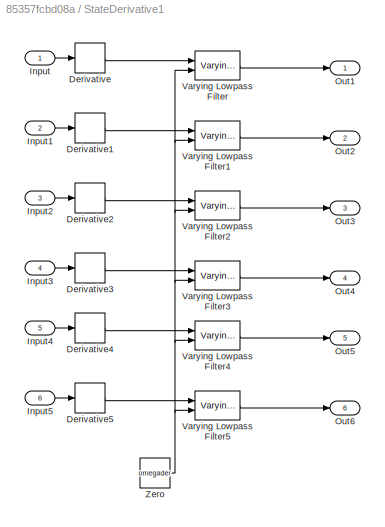
BLOCK [SubSystem] StateDerivative1
  Ports = [6, 6]
  RequestExecContextInheritance = off
BLOCK [Derivative] StateDerivative1/Derivative
BLOCK [Derivative] StateDerivative1/Derivative1
BLOCK [Derivative] StateDerivative1/Derivative2
BLOCK [Derivative] StateDerivative1/Derivative3
BLOCK [Derivative] StateDerivative1/Derivative4
BLOCK [Derivative] StateDerivative1/Derivative5
BLOCK [Inport] StateDerivative1/Input
BLOCK [Inport] StateDerivative1/Input1
  Port = 2
BLOCK [Inport] StateDerivative1/Input2
  Port = 3
BLOCK [Inport] StateDerivative1/Input3
  Port = 4
BLOCK [Inport] StateDerivative1/Input4
  Port = 5
BLOCK [Inport] StateDerivative1/Input5
  Port = 6
BLOCK [Outport] StateDerivative1/Out1
BLOCK [Outport] StateDerivative1/Out2
  Port = 2
BLOCK [Outport] StateDerivative1/Out3
  Port = 3
BLOCK [Outport] StateDerivative1/Out4
  Port = 4
BLOCK [Outport] StateDerivative1/Out5
  Port = 5
BLOCK [Outport] StateDerivative1/Out6
  Port = 6
BLOCK [Reference] StateDerivative1/Varying Lowpass Filter  REF=cstblocks/Linear Parameter Varying/Varying Lowpass Filter
  Ports = [2, 1]
  SourceBlock = cstblocks/Linear Parameter Varying/Varying Lowpass Filter
  SourceProductBaseCode = CT
  SourceType = Varying Lowpass Filter
BLOCK [Reference] StateDerivative1/Varying Lowpass Filter1  REF=cstblocks/Linear Parameter Varying/Varying Lowpass Filter
  Ports = [2, 1]
  SourceBlock = cstblocks/Linear Parameter Varying/Varying Lowpass Filter
  SourceProductBaseCode = CT
  SourceType = Varying Lowpass Filter
BLOCK [Reference] StateDerivative1/Varying Lowpass Filter2  REF=cstblocks/Linear Parameter Varying/Varying Lowpass Filter
  Ports = [2, 1]
  SourceBlock = cstblocks/Linear Parameter Varying/Varying Lowpass Filter
  SourceProductBaseCode = CT
  SourceType = Varying Lowpass Filter
BLOCK [Reference] StateDerivative1/Varying Lowpass Filter3  REF=cstblocks/Linear Parameter Varying/Varying Lowpass Filter
  Ports = [2, 1]
  SourceBlock = cstblocks/Linear Parameter Varying/Varying Lowpass Filter
  SourceProductBaseCode = CT
  SourceType = Varying Lowpass Filter
BLOCK [Reference] StateDerivative1/Varying Lowpass Filter4  REF=cstblocks/Linear Parameter Varying/Varying Lowpass Filter
  Ports = [2, 1]
  SourceBlock = cstblocks/Linear Parameter Varying/Varying Lowpass Filter
  SourceProductBaseCode = CT
  SourceType = Varying Lowpass Filter
BLOCK [Reference] StateDerivative1/Varying Lowpass Filter5  REF=cstblocks/Linear Parameter Varying/Varying Lowpass Filter
  Ports = [2, 1]
  SourceBlock = cstblocks/Linear Parameter Varying/Varying Lowpass Filter
  SourceProductBaseCode = CT
  SourceType = Varying Lowpass Filter
BLOCK [Constant] StateDerivative1/Zero
  OutDataTypeStr = Inherit: Inherit via back propagation
  Value = omegader
BLOCK [SubSystem] StateDerivative3
  Commented = on
  Ports = [6, 6]
  RequestExecContextInheritance = off
BLOCK [Derivative] StateDerivative3/Derivative
BLOCK [Derivative] StateDerivative3/Derivative1
BLOCK [Derivative] StateDerivative3/Derivative2
BLOCK [Derivative] StateDerivative3/Derivative3
BLOCK [Derivative] StateDerivative3/Derivative4
BLOCK [Derivative] StateDerivative3/Derivative5
BLOCK [Inport] StateDerivative3/Input
BLOCK [Inport] StateDerivative3/Input1
  Port = 2
BLOCK [Inport] StateDerivative3/Input2
  Port = 3
BLOCK [Inport] StateDerivative3/Input3
  Port = 4
BLOCK [Inport] StateDerivative3/Input4
  Port = 5
BLOCK [Inport] StateDerivative3/Input5
  Port = 6
BLOCK [Outport] StateDerivative3/Out1
BLOCK [Outport] StateDerivative3/Out2
  Port = 2
BLOCK [Outport] StateDerivative3/Out3
  Port = 3
BLOCK [Outport] StateDerivative3/Out4
  Port = 4
BLOCK [Outport] StateDerivative3/Out5
  Port = 5
BLOCK [Outport] StateDerivative3/Out6
  Port = 6
BLOCK [Reference] StateDerivative3/Varying Lowpass Filter  REF=cstblocks/Linear Parameter Varying/Varying Lowpass Filter
  Ports = [2, 1]
  SourceBlock = cstblocks/Linear Parameter Varying/Varying Lowpass Filter
  SourceProductBaseCode = CT
  SourceType = Varying Lowpass Filter
BLOCK [Reference] StateDerivative3/Varying Lowpass Filter1  REF=cstblocks/Linear Parameter Varying/Varying Lowpass Filter
  Ports = [2, 1]
  SourceBlock = cstblocks/Linear Parameter Varying/Varying Lowpass Filter
  SourceProductBaseCode = CT
  SourceType = Varying Lowpass Filter
BLOCK [Reference] StateDerivative3/Varying Lowpass Filter2  REF=cstblocks/Linear Parameter Varying/Varying Lowpass Filter
  Ports = [2, 1]
  SourceBlock = cstblocks/Linear Parameter Varying/Varying Lowpass Filter
  SourceProductBaseCode = CT
  SourceType = Varying Lowpass Filter
BLOCK [Reference] StateDerivative3/Varying Lowpass Filter3  REF=cstblocks/Linear Parameter Varying/Varying Lowpass Filter
  Ports = [2, 1]
  SourceBlock = cstblocks/Linear Parameter Varying/Varying Lowpass Filter
  SourceProductBaseCode = CT
  SourceType = Varying Lowpass Filter
BLOCK [Reference] StateDerivative3/Varying Lowpass Filter4  REF=cstblocks/Linear Parameter Varying/Varying Lowpass Filter
  Ports = [2, 1]
  SourceBlock = cstblocks/Linear Parameter Varying/Varying Lowpass Filter
  SourceProductBaseCode = CT
  SourceType = Varying Lowpass Filter
BLOCK [Reference] StateDerivative3/Varying Lowpass Filter5  REF=cstblocks/Linear Parameter Varying/Varying Lowpass Filter
  Ports = [2, 1]
  SourceBlock = cstblocks/Linear Parameter Varying/Varying Lowpass Filter
  SourceProductBaseCode = CT
  SourceType = Varying Lowpass Filter
BLOCK [Constant] StateDerivative3/Zero
  OutDataTypeStr = Inherit: Inherit via back propagation
  Value = omegader
BLOCK [Step] Step
  Commented = on
  SampleTime = 0
  Time = 0
BLOCK [Step] Step1
  Commented = on
  SampleTime = 0
BLOCK [Step] Step2
  Commented = on
  SampleTime = 0
  Time = 0
BLOCK [Step] Step3
  SampleTime = 0
  Time = 0
BLOCK [Sum] Sum
  Commented = on
  Inputs = |++
  Ports = [2, 1]
BLOCK [Sum] Sum1
  Commented = on
  Inputs = |++
  Ports = [2, 1]
BLOCK [Sum] Sum10
  Commented = on
  Inputs = ++|
  Ports = [2, 1]
BLOCK [Sum] Sum11
  Commented = on
  Inputs = ++|
  Ports = [2, 1]
BLOCK [Sum] Sum12
  Commented = on
  Inputs = |++
  Ports = [2, 1]
BLOCK [Sum] Sum13
  Commented = on
  Inputs = |++
  Ports = [2, 1]
BLOCK [Sum] Sum14
  Commented = on
  Inputs = |++
  Ports = [2, 1]
BLOCK [Sum] Sum15
  Commented = on
  Inputs = |++
  Ports = [2, 1]
BLOCK [Sum] Sum16
  Commented = on
  Inputs = |++
  Ports = [2, 1]
BLOCK [Sum] Sum17
  Commented = on
  Inputs = |++
  Ports = [2, 1]
BLOCK [Sum] Sum18
  Commented = on
  Inputs = |-+
  Ports = [2, 1]
BLOCK [Sum] Sum19
  Commented = on
  Inputs = |-+
  Ports = [2, 1]
BLOCK [Sum] Sum2
  Commented = on
  Inputs = |++
  Ports = [2, 1]
BLOCK [Sum] Sum20
  Commented = on
  Inputs = |-+
  Ports = [2, 1]
BLOCK [Sum] Sum21
  Commented = on
  Inputs = |-+
  Ports = [2, 1]
BLOCK [Sum] Sum22
  Commented = on
  Inputs = |-+
  Ports = [2, 1]
BLOCK [Sum] Sum23
  Commented = on
  Inputs = |-+
  Ports = [2, 1]
BLOCK [Sum] Sum24
  Commented = on
  Inputs = -++
  Ports = [3, 1]
BLOCK [Sum] Sum25
  Commented = on
  Inputs = -++
  Ports = [3, 1]
BLOCK [Sum] Sum26
  Commented = on
  Inputs = ++|
  Ports = [2, 1]
BLOCK [Sum] Sum27
  Commented = on
  Inputs = ++|
  Ports = [2, 1]
BLOCK [Sum] Sum28
  Commented = on
  Inputs = |++
  Ports = [2, 1]
BLOCK [Sum] Sum29
  Commented = on
  Inputs = |++
  Ports = [2, 1]
BLOCK [Sum] Sum3
  Commented = on
  Inputs = |++
  Ports = [2, 1]
BLOCK [Sum] Sum30
  Commented = on
  Inputs = |++
  Ports = [2, 1]
BLOCK [Sum] Sum31
  Commented = on
  Inputs = |++
  Ports = [2, 1]
BLOCK [Sum] Sum32
  Commented = on
  Inputs = |++
  Ports = [2, 1]
BLOCK [Sum] Sum33
  Commented = on
  Inputs = |++
  Ports = [2, 1]
BLOCK [Sum] Sum34
  Commented = on
  Inputs = |-+
  Ports = [2, 1]
BLOCK [Sum] Sum35
  Commented = on
  Inputs = |-+
  Ports = [2, 1]
BLOCK [Sum] Sum36
  Commented = on
  Inputs = -++
  Ports = [3, 1]
BLOCK [Sum] Sum37
  Commented = on
  Inputs = |-+
  Ports = [2, 1]
BLOCK [Sum] Sum38
  Commented = on
  Inputs = |-+
  Ports = [2, 1]
BLOCK [Sum] Sum39
  Commented = on
  Inputs = |-+
  Ports = [2, 1]
BLOCK [Sum] Sum4
  Commented = on
  Inputs = |++
  Ports = [2, 1]
BLOCK [Sum] Sum40
  Commented = on
  Inputs = |-+
  Ports = [2, 1]
BLOCK [Sum] Sum41
  Commented = on
  Inputs = -++
  Ports = [3, 1]
BLOCK [Sum] Sum42
  Commented = on
  Inputs = -++
  Ports = [3, 1]
BLOCK [Sum] Sum43
  Commented = on
  Inputs = -++
  Ports = [3, 1]
BLOCK [Sum] Sum44
  Commented = on
  Inputs = ++|
  Ports = [2, 1]
BLOCK [Sum] Sum45
  Commented = on
  Inputs = ++|
  Ports = [2, 1]
BLOCK [Sum] Sum46
  Commented = on
  Inputs = ++|
  Ports = [2, 1]
BLOCK [Sum] Sum47
  Commented = on
  Inputs = ++|
  Ports = [2, 1]
BLOCK [Sum] Sum48
  Inputs = -++
  Ports = [3, 1]
BLOCK [Sum] Sum49
  Inputs = |++
  Ports = [2, 1]
BLOCK [Sum] Sum5
  Commented = on
  Inputs = |++
  Ports = [2, 1]
BLOCK [Sum] Sum50
  Inputs = ++|
  Ports = [2, 1]
BLOCK [Sum] Sum51
  Inputs = ++|
  Ports = [2, 1]
BLOCK [Sum] Sum52
  Inputs = |++
  Ports = [2, 1]
BLOCK [Sum] Sum53
  Inputs = |++
  Ports = [2, 1]
BLOCK [Sum] Sum54
  Inputs = |++
  Ports = [2, 1]
BLOCK [Sum] Sum55
  Inputs = |++
  Ports = [2, 1]
BLOCK [Sum] Sum56
  Inputs = |++
  Ports = [2, 1]
BLOCK [Sum] Sum57
  Inputs = |++
  Ports = [2, 1]
BLOCK [Sum] Sum58
  Inputs = |-+
  Ports = [2, 1]
BLOCK [Sum] Sum59
  Inputs = |-+
  Ports = [2, 1]
BLOCK [Sum] Sum6
  Commented = on
  Inputs = ++|
  Ports = [2, 1]
BLOCK [Sum] Sum60
  Inputs = |++
  Ports = [2, 1]
BLOCK [Sum] Sum61
  Inputs = |-+
  Ports = [2, 1]
BLOCK [Sum] Sum62
  Inputs = |-+
  Ports = [2, 1]
BLOCK [Sum] Sum63
  Inputs = |-+
  Ports = [2, 1]
BLOCK [Sum] Sum64
  Inputs = |-+
  Ports = [2, 1]
BLOCK [Sum] Sum65
  Inputs = |++
  Ports = [2, 1]
BLOCK [Sum] Sum66
  Inputs = |++
  Ports = [2, 1]
BLOCK [Sum] Sum67
  Inputs = |++
  Ports = [2, 1]
BLOCK [Sum] Sum68
  Inputs = ++|
  Ports = [2, 1]
BLOCK [Sum] Sum69
  Inputs = ++|
  Ports = [2, 1]
BLOCK [Sum] Sum7
  Commented = on
  Inputs = ++|
  Ports = [2, 1]
BLOCK [Sum] Sum70
  Inputs = ++|
  Ports = [2, 1]
BLOCK [Sum] Sum71
  Inputs = ++|
  Ports = [2, 1]
BLOCK [Sum] Sum8
  Commented = on
  Inputs = ++|
  Ports = [2, 1]
BLOCK [Sum] Sum9
  Commented = on
  Inputs = ++|
  Ports = [2, 1]
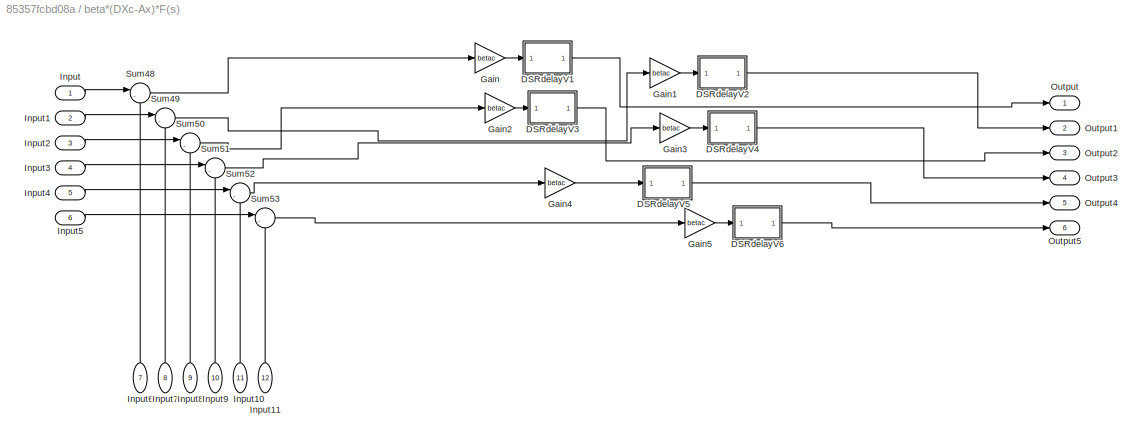
BLOCK [SubSystem] beta*(DXc-Ax)*F(s)
  Commented = on
  PortSchema = {"entries":[{"content":{"sides":[{"content":{"connectorIds":["In1","In2","In3","In4","In5","In6"]},"type":"ConnectorPlacement.EquallySpacedRectSide","uuid":"7b965991-8f4b-4d23-8dac-1fc1cf204da0"},{"content":{"connectorIds":["Out1","Out2","Out3","Out4","Out5","Out6"],"side":"RIGHT"},"type":"ConnectorPlacement.EquallySpacedRectSide","uuid":"f5ccf5a4-70bb-4fce-9767-13471ee96b32"},{"content":{"connect...<+487ch>
  Ports = [12, 6]
  RequestExecContextInheritance = off
BLOCK [SubSystem] beta*(DXc-Ax)*F(s)/DSRdelayV1
  Ports = [1, 1]
  RequestExecContextInheritance = off
BLOCK [Gain] beta*(DXc-Ax)*F(s)/DSRdelayV1/Gain
  Gain = 1/delay
BLOCK [Gain] beta*(DXc-Ax)*F(s)/DSRdelayV1/Gain1
  Gain = 1/delay
BLOCK [Inport] beta*(DXc-Ax)*F(s)/DSRdelayV1/Input
BLOCK [Sum] beta*(DXc-Ax)*F(s)/DSRdelayV1/Sum
  Inputs = -+|
  Ports = [2, 1]
BLOCK [Sum] beta*(DXc-Ax)*F(s)/DSRdelayV1/Sum13
  Inputs = -+|
  Ports = [2, 1]
BLOCK [TransferFcn] beta*(DXc-Ax)*F(s)/DSRdelayV1/Transfer Fcn
  Denominator = [1 omega]
  Numerator = [omega]
BLOCK [TransferFcn] beta*(DXc-Ax)*F(s)/DSRdelayV1/Transfer Fcn1
  Denominator = [1 omega]
  Numerator = [omega]
BLOCK [TransportDelay] beta*(DXc-Ax)*F(s)/DSRdelayV1/Transport Delay
  DelayTime = delay
  Ports = [1, 1]
BLOCK [TransportDelay] beta*(DXc-Ax)*F(s)/DSRdelayV1/Transport Delay13
  DelayTime = delay
  Ports = [1, 1]
BLOCK [Outport] beta*(DXc-Ax)*F(s)/DSRdelayV1/est
BLOCK [SubSystem] beta*(DXc-Ax)*F(s)/DSRdelayV2
  Ports = [1, 1]
  RequestExecContextInheritance = off
BLOCK [Gain] beta*(DXc-Ax)*F(s)/DSRdelayV2/Gain
  Gain = 1/delay
BLOCK [Gain] beta*(DXc-Ax)*F(s)/DSRdelayV2/Gain1
  Gain = 1/delay
BLOCK [Inport] beta*(DXc-Ax)*F(s)/DSRdelayV2/Input
BLOCK [Sum] beta*(DXc-Ax)*F(s)/DSRdelayV2/Sum
  Inputs = -+|
  Ports = [2, 1]
BLOCK [Sum] beta*(DXc-Ax)*F(s)/DSRdelayV2/Sum13
  Inputs = -+|
  Ports = [2, 1]
BLOCK [TransferFcn] beta*(DXc-Ax)*F(s)/DSRdelayV2/Transfer Fcn
  Denominator = [1 omega]
  Numerator = [omega]
BLOCK [TransferFcn] beta*(DXc-Ax)*F(s)/DSRdelayV2/Transfer Fcn1
  Denominator = [1 omega]
  Numerator = [omega]
BLOCK [TransportDelay] beta*(DXc-Ax)*F(s)/DSRdelayV2/Transport Delay
  DelayTime = delay
  Ports = [1, 1]
BLOCK [TransportDelay] beta*(DXc-Ax)*F(s)/DSRdelayV2/Transport Delay13
  DelayTime = delay
  Ports = [1, 1]
BLOCK [Outport] beta*(DXc-Ax)*F(s)/DSRdelayV2/est
BLOCK [SubSystem] beta*(DXc-Ax)*F(s)/DSRdelayV3
  Ports = [1, 1]
  RequestExecContextInheritance = off
BLOCK [Gain] beta*(DXc-Ax)*F(s)/DSRdelayV3/Gain
  Gain = 1/delay
BLOCK [Gain] beta*(DXc-Ax)*F(s)/DSRdelayV3/Gain1
  Gain = 1/delay
BLOCK [Inport] beta*(DXc-Ax)*F(s)/DSRdelayV3/Input
BLOCK [Sum] beta*(DXc-Ax)*F(s)/DSRdelayV3/Sum
  Inputs = -+|
  Ports = [2, 1]
BLOCK [Sum] beta*(DXc-Ax)*F(s)/DSRdelayV3/Sum13
  Inputs = -+|
  Ports = [2, 1]
BLOCK [TransferFcn] beta*(DXc-Ax)*F(s)/DSRdelayV3/Transfer Fcn
  Denominator = [1 omega]
  Numerator = [omega]
BLOCK [TransferFcn] beta*(DXc-Ax)*F(s)/DSRdelayV3/Transfer Fcn1
  Denominator = [1 omega]
  Numerator = [omega]
BLOCK [TransportDelay] beta*(DXc-Ax)*F(s)/DSRdelayV3/Transport Delay
  DelayTime = delay
  Ports = [1, 1]
BLOCK [TransportDelay] beta*(DXc-Ax)*F(s)/DSRdelayV3/Transport Delay13
  DelayTime = delay
  Ports = [1, 1]
BLOCK [Outport] beta*(DXc-Ax)*F(s)/DSRdelayV3/est
BLOCK [SubSystem] beta*(DXc-Ax)*F(s)/DSRdelayV4
  Ports = [1, 1]
  RequestExecContextInheritance = off
BLOCK [Gain] beta*(DXc-Ax)*F(s)/DSRdelayV4/Gain
  Gain = 1/delay
BLOCK [Gain] beta*(DXc-Ax)*F(s)/DSRdelayV4/Gain1
  Gain = 1/delay
BLOCK [Inport] beta*(DXc-Ax)*F(s)/DSRdelayV4/Input
BLOCK [Sum] beta*(DXc-Ax)*F(s)/DSRdelayV4/Sum
  Inputs = -+|
  Ports = [2, 1]
BLOCK [Sum] beta*(DXc-Ax)*F(s)/DSRdelayV4/Sum13
  Inputs = -+|
  Ports = [2, 1]
BLOCK [TransferFcn] beta*(DXc-Ax)*F(s)/DSRdelayV4/Transfer Fcn
  Denominator = [1 omega]
  Numerator = [omega]
BLOCK [TransferFcn] beta*(DXc-Ax)*F(s)/DSRdelayV4/Transfer Fcn1
  Denominator = [1 omega]
  Numerator = [omega]
BLOCK [TransportDelay] beta*(DXc-Ax)*F(s)/DSRdelayV4/Transport Delay
  DelayTime = delay
  Ports = [1, 1]
BLOCK [TransportDelay] beta*(DXc-Ax)*F(s)/DSRdelayV4/Transport Delay13
  DelayTime = delay
  Ports = [1, 1]
BLOCK [Outport] beta*(DXc-Ax)*F(s)/DSRdelayV4/est
BLOCK [SubSystem] beta*(DXc-Ax)*F(s)/DSRdelayV5
  Ports = [1, 1]
  RequestExecContextInheritance = off
BLOCK [Gain] beta*(DXc-Ax)*F(s)/DSRdelayV5/Gain
  Gain = 1/delay
BLOCK [Gain] beta*(DXc-Ax)*F(s)/DSRdelayV5/Gain1
  Gain = 1/delay
BLOCK [Inport] beta*(DXc-Ax)*F(s)/DSRdelayV5/Input
BLOCK [Sum] beta*(DXc-Ax)*F(s)/DSRdelayV5/Sum
  Inputs = -+|
  Ports = [2, 1]
BLOCK [Sum] beta*(DXc-Ax)*F(s)/DSRdelayV5/Sum13
  Inputs = -+|
  Ports = [2, 1]
BLOCK [TransferFcn] beta*(DXc-Ax)*F(s)/DSRdelayV5/Transfer Fcn
  Denominator = [1 omega]
  Numerator = [omega]
BLOCK [TransferFcn] beta*(DXc-Ax)*F(s)/DSRdelayV5/Transfer Fcn1
  Denominator = [1 omega]
  Numerator = [omega]
BLOCK [TransportDelay] beta*(DXc-Ax)*F(s)/DSRdelayV5/Transport Delay
  DelayTime = delay
  Ports = [1, 1]
BLOCK [TransportDelay] beta*(DXc-Ax)*F(s)/DSRdelayV5/Transport Delay13
  DelayTime = delay
  Ports = [1, 1]
BLOCK [Outport] beta*(DXc-Ax)*F(s)/DSRdelayV5/est
BLOCK [SubSystem] beta*(DXc-Ax)*F(s)/DSRdelayV6
  Ports = [1, 1]
  RequestExecContextInheritance = off
BLOCK [Gain] beta*(DXc-Ax)*F(s)/DSRdelayV6/Gain
  Gain = 1/delay
BLOCK [Gain] beta*(DXc-Ax)*F(s)/DSRdelayV6/Gain1
  Gain = 1/delay
BLOCK [Inport] beta*(DXc-Ax)*F(s)/DSRdelayV6/Input
BLOCK [Sum] beta*(DXc-Ax)*F(s)/DSRdelayV6/Sum
  Inputs = -+|
  Ports = [2, 1]
BLOCK [Sum] beta*(DXc-Ax)*F(s)/DSRdelayV6/Sum13
  Inputs = -+|
  Ports = [2, 1]
BLOCK [TransferFcn] beta*(DXc-Ax)*F(s)/DSRdelayV6/Transfer Fcn
  Denominator = [1 omega]
  Numerator = [omega]
BLOCK [TransferFcn] beta*(DXc-Ax)*F(s)/DSRdelayV6/Transfer Fcn1
  Denominator = [1 omega]
  Numerator = [omega]
BLOCK [TransportDelay] beta*(DXc-Ax)*F(s)/DSRdelayV6/Transport Delay
  DelayTime = delay
  Ports = [1, 1]
BLOCK [TransportDelay] beta*(DXc-Ax)*F(s)/DSRdelayV6/Transport Delay13
  DelayTime = delay
  Ports = [1, 1]
BLOCK [Outport] beta*(DXc-Ax)*F(s)/DSRdelayV6/est
BLOCK [Gain] beta*(DXc-Ax)*F(s)/Gain
  Gain = betac
BLOCK [Gain] beta*(DXc-Ax)*F(s)/Gain1
  Gain = betac
BLOCK [Gain] beta*(DXc-Ax)*F(s)/Gain2
  Gain = betac
BLOCK [Gain] beta*(DXc-Ax)*F(s)/Gain3
  Gain = betac
BLOCK [Gain] beta*(DXc-Ax)*F(s)/Gain4
  Gain = betac
BLOCK [Gain] beta*(DXc-Ax)*F(s)/Gain5
  Gain = betac
BLOCK [Inport] beta*(DXc-Ax)*F(s)/Input
BLOCK [Inport] beta*(DXc-Ax)*F(s)/Input1
  Port = 2
BLOCK [Inport] beta*(DXc-Ax)*F(s)/Input10
  NameLocation = right
  Port = 11
BLOCK [Inport] beta*(DXc-Ax)*F(s)/Input11
  NameLocation = right
  Port = 12
BLOCK [Inport] beta*(DXc-Ax)*F(s)/Input2
  Port = 3
BLOCK [Inport] beta*(DXc-Ax)*F(s)/Input3
  Port = 4
BLOCK [Inport] beta*(DXc-Ax)*F(s)/Input4
  Port = 5
BLOCK [Inport] beta*(DXc-Ax)*F(s)/Input5
  Port = 6
BLOCK [Inport] beta*(DXc-Ax)*F(s)/Input6
  NameLocation = right
  Port = 7
BLOCK [Inport] beta*(DXc-Ax)*F(s)/Input7
  NameLocation = right
  Port = 8
BLOCK [Inport] beta*(DXc-Ax)*F(s)/Input8
  NameLocation = right
  Port = 9
BLOCK [Inport] beta*(DXc-Ax)*F(s)/Input9
  NameLocation = right
  Port = 10
BLOCK [Outport] beta*(DXc-Ax)*F(s)/Output
BLOCK [Outport] beta*(DXc-Ax)*F(s)/Output1
  Port = 2
BLOCK [Outport] beta*(DXc-Ax)*F(s)/Output2
  Port = 3
BLOCK [Outport] beta*(DXc-Ax)*F(s)/Output3
  Port = 4
BLOCK [Outport] beta*(DXc-Ax)*F(s)/Output4
  Port = 5
BLOCK [Outport] beta*(DXc-Ax)*F(s)/Output5
  Port = 6
BLOCK [Sum] beta*(DXc-Ax)*F(s)/Sum48
  Inputs = |-+
  Ports = [2, 1]
BLOCK [Sum] beta*(DXc-Ax)*F(s)/Sum49
  Inputs = |-+
  Ports = [2, 1]
BLOCK [Sum] beta*(DXc-Ax)*F(s)/Sum50
  Inputs = |-+
  Ports = [2, 1]
BLOCK [Sum] beta*(DXc-Ax)*F(s)/Sum51
  Inputs = |-+
  Ports = [2, 1]
BLOCK [Sum] beta*(DXc-Ax)*F(s)/Sum52
  Inputs = |-+
  Ports = [2, 1]
BLOCK [Sum] beta*(DXc-Ax)*F(s)/Sum53
  Inputs = |-+
  Ports = [2, 1]
BLOCK [SubSystem] gain 1//a
  Commented = on
  Ports = [6, 6]
  RequestExecContextInheritance = off
BLOCK [Gain] gain 1//a/1//a
  Gain = 1/a
BLOCK [Gain] gain 1//a/1//a1
  Gain = 1/a
BLOCK [Gain] gain 1//a/1//a2
  Gain = 1/a
BLOCK [Gain] gain 1//a/1//a3
  Gain = 1/a
BLOCK [Gain] gain 1//a/1//a4
  Gain = 1/a
BLOCK [Gain] gain 1//a/1//a5
  Gain = 1/a
BLOCK [Inport] gain 1//a/In1
BLOCK [Inport] gain 1//a/In2
  Port = 2
BLOCK [Inport] gain 1//a/In3
  Port = 3
BLOCK [Inport] gain 1//a/In4
  Port = 4
BLOCK [Inport] gain 1//a/In5
  Port = 5
BLOCK [Inport] gain 1//a/In6
  Port = 6
BLOCK [Outport] gain 1//a/Out1
BLOCK [Outport] gain 1//a/Out2
  Port = 2
BLOCK [Outport] gain 1//a/Out3
  Port = 3
BLOCK [Outport] gain 1//a/Out4
  Port = 4
BLOCK [Outport] gain 1//a/Out5
  Port = 5
BLOCK [Outport] gain 1//a/Out6
  Port = 6
BLOCK [SubSystem] gain 1//a1
  Commented = on
  Ports = [6, 6]
  RequestExecContextInheritance = off
BLOCK [Gain] gain 1//a1/1//a
  Gain = 1/a
BLOCK [Gain] gain 1//a1/1//a1
  Gain = 1/a
BLOCK [Gain] gain 1//a1/1//a2
  Gain = 1/a
BLOCK [Gain] gain 1//a1/1//a3
  Gain = 1/a
BLOCK [Gain] gain 1//a1/1//a4
  Gain = 1/a
BLOCK [Gain] gain 1//a1/1//a5
  Gain = 1/a
BLOCK [Inport] gain 1//a1/In1
BLOCK [Inport] gain 1//a1/In2
  Port = 2
BLOCK [Inport] gain 1//a1/In3
  Port = 3
BLOCK [Inport] gain 1//a1/In4
  Port = 4
BLOCK [Inport] gain 1//a1/In5
  Port = 5
BLOCK [Inport] gain 1//a1/In6
  Port = 6
BLOCK [Outport] gain 1//a1/Out1
BLOCK [Outport] gain 1//a1/Out2
  Port = 2
BLOCK [Outport] gain 1//a1/Out3
  Port = 3
BLOCK [Outport] gain 1//a1/Out4
  Port = 4
BLOCK [Outport] gain 1//a1/Out5
  Port = 5
BLOCK [Outport] gain 1//a1/Out6
  Port = 6
BLOCK [SubSystem] gain 1//a2
  Ports = [6, 6]
  RequestExecContextInheritance = off
BLOCK [Gain] gain 1//a2/1//a
  Gain = 1/a
BLOCK [Gain] gain 1//a2/1//a1
  Gain = 1/a
BLOCK [Gain] gain 1//a2/1//a2
  Gain = 1/a
BLOCK [Gain] gain 1//a2/1//a3
  Gain = 1/a
BLOCK [Gain] gain 1//a2/1//a4
  Gain = 1/a
BLOCK [Gain] gain 1//a2/1//a5
  Gain = 1/a
BLOCK [Inport] gain 1//a2/In1
BLOCK [Inport] gain 1//a2/In2
  Port = 2
BLOCK [Inport] gain 1//a2/In3
  Port = 3
BLOCK [Inport] gain 1//a2/In4
  Port = 4
BLOCK [Inport] gain 1//a2/In5
  Port = 5
BLOCK [Inport] gain 1//a2/In6
  Port = 6
BLOCK [Outport] gain 1//a2/Out1
BLOCK [Outport] gain 1//a2/Out2
  Port = 2
BLOCK [Outport] gain 1//a2/Out3
  Port = 3
BLOCK [Outport] gain 1//a2/Out4
  Port = 4
BLOCK [Outport] gain 1//a2/Out5
  Port = 5
BLOCK [Outport] gain 1//a2/Out6
  Port = 6
BLOCK [TransferFcn] pseudoDer
  Commented = on
  Denominator = [1 omegader]
  Numerator = [omegader 0]
BLOCK [TransferFcn] pseudoDer1
  Commented = on
  Denominator = [1 omegader]
  Numerator = [omegader 0]
ANNOTATION (root): CONTROL BLOCK
ANNOTATION (root): FEEDBACK
ANNOTATION (root): FLOW V1
ANNOTATION (root): FLOW V2
ANNOTATION (root): FLOW V3
ANNOTATION (root): INPUT AREA
NET Adjency/Input1:1 -> Adjency/Output3:1, Adjency/Sum1:2, Adjency/Sum2:1
NET Adjency/Input2:1 -> Adjency/Output4:1, Adjency/Sum2:2, Adjency/Sum:2
LINE Adjency/Input3:1 -> Adjency/Sum2:3
LINE Adjency/Input4:1 -> Adjency/Sum2:4
LINE Adjency/Input5:1 -> Adjency/Terminator:1
NET Adjency/Input:1 -> Adjency/Sum1:1, Adjency/Sum:1
LINE Adjency/Sum1:1 -> Adjency/Output2:1
LINE Adjency/Sum2:1 -> Adjency/Output5:1
LINE Adjency/Sum:1 -> Adjency/Output1:1
LINE Adjency/Zero:1 -> Adjency/Output:1
NET Adjency1/Input1:1 -> Adjency1/Output3:1, Adjency1/Sum1:2, Adjency1/Sum2:1
NET Adjency1/Input2:1 -> Adjency1/Output4:1, Adjency1/Sum2:2, Adjency1/Sum:2
LINE Adjency1/Input3:1 -> Adjency1/Sum2:3
LINE Adjency1/Input4:1 -> Adjency1/Sum2:4
LINE Adjency1/Input5:1 -> Adjency1/Terminator:1
NET Adjency1/Input:1 -> Adjency1/Sum1:1, Adjency1/Sum:1
LINE Adjency1/Sum1:1 -> Adjency1/Output2:1
LINE Adjency1/Sum2:1 -> Adjency1/Output5:1
LINE Adjency1/Sum:1 -> Adjency1/Output1:1
LINE Adjency1/Zero:1 -> Adjency1/Output:1
NET Adjency1:1 -> Sum28:2, beta*(DXc-Ax)*F(s):1
NET Adjency1:2 -> Sum29:2, beta*(DXc-Ax)*F(s):2
NET Adjency1:3 -> Sum30:2, beta*(DXc-Ax)*F(s):3
NET Adjency1:4 -> Sum31:2, beta*(DXc-Ax)*F(s):4
NET Adjency1:5 -> Sum32:2, beta*(DXc-Ax)*F(s):5
NET Adjency1:6 -> Sum33:2, beta*(DXc-Ax)*F(s):6
NET Adjency2/Input1:1 -> Adjency2/Output3:1, Adjency2/Sum1:2, Adjency2/Sum2:1
NET Adjency2/Input2:1 -> Adjency2/Output4:1, Adjency2/Sum2:2, Adjency2/Sum:2
LINE Adjency2/Input3:1 -> Adjency2/Sum2:3
LINE Adjency2/Input4:1 -> Adjency2/Sum2:4
LINE Adjency2/Input5:1 -> Adjency2/Terminator:1
NET Adjency2/Input:1 -> Adjency2/Sum1:1, Adjency2/Sum:1
LINE Adjency2/Sum1:1 -> Adjency2/Output2:1
LINE Adjency2/Sum2:1 -> Adjency2/Output5:1
LINE Adjency2/Sum:1 -> Adjency2/Output1:1
LINE Adjency2/Zero:1 -> Adjency2/Output:1
LINE Adjency2:1 -> Sum52:2
LINE Adjency2:2 -> Sum53:2
LINE Adjency2:3 -> Sum54:2
LINE Adjency2:4 -> Sum55:2
LINE Adjency2:5 -> Sum56:2
LINE Adjency2:6 -> Sum57:2
LINE Adjency:1 -> Sum12:2
LINE Adjency:2 -> Sum13:2
LINE Adjency:3 -> Sum14:2
LINE Adjency:4 -> Sum15:2
LINE Adjency:5 -> Sum16:2
LINE Adjency:6 -> Sum17:2
LINE B/Input:1 -> B/Output:1
NET B/Zero:1 -> B/Output1:1, B/Output2:1, B/Output3:1, B/Output4:1, B/Output5:1
LINE B1/Input:1 -> B1/Output:1
NET B1/Zero:1 -> B1/Output1:1, B1/Output2:1, B1/Output3:1, B1/Output4:1, B1/Output5:1
LINE B1:1 -> Sum28:1
LINE B1:2 -> Sum29:1
LINE B1:3 -> Sum30:1
LINE B1:4 -> Sum31:1
LINE B1:5 -> Sum32:1
LINE B1:6 -> Sum33:1
LINE B2/Input:1 -> B2/Output:1
NET B2/Zero:1 -> B2/Output1:1, B2/Output2:1, B2/Output3:1, B2/Output4:1, B2/Output5:1
LINE B2:1 -> Sum52:1
LINE B2:2 -> Sum53:1
LINE B2:3 -> Sum54:1
LINE B2:4 -> Sum55:1
LINE B2:5 -> Sum56:1
LINE B2:6 -> Sum57:1
LINE B:1 -> Sum12:1
LINE B:2 -> Sum13:1
LINE B:3 -> Sum14:1
LINE B:4 -> Sum15:1
LINE B:5 -> Sum16:1
LINE B:6 -> Sum17:1
LINE C(s)/C(s)1/DSRdelayV1/Gain1:1 -> C(s)/C(s)1/DSRdelayV1/Transfer Fcn1:1
LINE C(s)/C(s)1/DSRdelayV1/Gain:1 -> C(s)/C(s)1/DSRdelayV1/Transfer Fcn:1
NET C(s)/C(s)1/DSRdelayV1/Input:1 -> C(s)/C(s)1/DSRdelayV1/Sum:2, C(s)/C(s)1/DSRdelayV1/Transport Delay:1
LINE C(s)/C(s)1/DSRdelayV1/Sum13:1 -> C(s)/C(s)1/DSRdelayV1/Gain1:1
LINE C(s)/C(s)1/DSRdelayV1/Sum:1 -> C(s)/C(s)1/DSRdelayV1/Gain:1
LINE C(s)/C(s)1/DSRdelayV1/Transfer Fcn1:1 -> C(s)/C(s)1/DSRdelayV1/est:1
NET C(s)/C(s)1/DSRdelayV1/Transfer Fcn:1 -> C(s)/C(s)1/DSRdelayV1/Sum13:2, C(s)/C(s)1/DSRdelayV1/Transport Delay13:1
LINE C(s)/C(s)1/DSRdelayV1/Transport Delay13:1 -> C(s)/C(s)1/DSRdelayV1/Sum13:1
LINE C(s)/C(s)1/DSRdelayV1/Transport Delay:1 -> C(s)/C(s)1/DSRdelayV1/Sum:1
LINE C(s)/C(s)1/DSRdelayV1:1 -> C(s)/C(s)1/Sum:1
LINE C(s)/C(s)1/Gain1:1 -> C(s)/C(s)1/Sum:2
LINE C(s)/C(s)1/Gain2:1 -> C(s)/C(s)1/pseudoDer:1
LINE C(s)/C(s)1/Gain:1 -> C(s)/C(s)1/DSRdelayV1:1
NET C(s)/C(s)1/R-F:1 -> C(s)/C(s)1/Gain1:1, C(s)/C(s)1/Gain2:1, C(s)/C(s)1/Gain:1
LINE C(s)/C(s)1/Sum:1 -> C(s)/C(s)1/Out1:1
LINE C(s)/C(s)1/pseudoDer:1 -> C(s)/C(s)1/Sum:3
LINE C(s)/C(s)1:1 -> C(s)/Out1:1
LINE C(s)/C(s)2/DSRdelayV1/Gain1:1 -> C(s)/C(s)2/DSRdelayV1/Transfer Fcn1:1
LINE C(s)/C(s)2/DSRdelayV1/Gain:1 -> C(s)/C(s)2/DSRdelayV1/Transfer Fcn:1
NET C(s)/C(s)2/DSRdelayV1/Input:1 -> C(s)/C(s)2/DSRdelayV1/Sum:2, C(s)/C(s)2/DSRdelayV1/Transport Delay:1
LINE C(s)/C(s)2/DSRdelayV1/Sum13:1 -> C(s)/C(s)2/DSRdelayV1/Gain1:1
LINE C(s)/C(s)2/DSRdelayV1/Sum:1 -> C(s)/C(s)2/DSRdelayV1/Gain:1
LINE C(s)/C(s)2/DSRdelayV1/Transfer Fcn1:1 -> C(s)/C(s)2/DSRdelayV1/est:1
NET C(s)/C(s)2/DSRdelayV1/Transfer Fcn:1 -> C(s)/C(s)2/DSRdelayV1/Sum13:2, C(s)/C(s)2/DSRdelayV1/Transport Delay13:1
LINE C(s)/C(s)2/DSRdelayV1/Transport Delay13:1 -> C(s)/C(s)2/DSRdelayV1/Sum13:1
LINE C(s)/C(s)2/DSRdelayV1/Transport Delay:1 -> C(s)/C(s)2/DSRdelayV1/Sum:1
LINE C(s)/C(s)2/DSRdelayV1:1 -> C(s)/C(s)2/Sum:1
LINE C(s)/C(s)2/Gain1:1 -> C(s)/C(s)2/Sum:2
LINE C(s)/C(s)2/Gain2:1 -> C(s)/C(s)2/pseudoDer:1
LINE C(s)/C(s)2/Gain:1 -> C(s)/C(s)2/DSRdelayV1:1
NET C(s)/C(s)2/R-F:1 -> C(s)/C(s)2/Gain1:1, C(s)/C(s)2/Gain2:1, C(s)/C(s)2/Gain:1
LINE C(s)/C(s)2/Sum:1 -> C(s)/C(s)2/Out1:1
LINE C(s)/C(s)2/pseudoDer:1 -> C(s)/C(s)2/Sum:3
LINE C(s)/C(s)2:1 -> C(s)/Out2:1
LINE C(s)/C(s)3/DSRdelayV1/Gain1:1 -> C(s)/C(s)3/DSRdelayV1/Transfer Fcn1:1
LINE C(s)/C(s)3/DSRdelayV1/Gain:1 -> C(s)/C(s)3/DSRdelayV1/Transfer Fcn:1
NET C(s)/C(s)3/DSRdelayV1/Input:1 -> C(s)/C(s)3/DSRdelayV1/Sum:2, C(s)/C(s)3/DSRdelayV1/Transport Delay:1
LINE C(s)/C(s)3/DSRdelayV1/Sum13:1 -> C(s)/C(s)3/DSRdelayV1/Gain1:1
LINE C(s)/C(s)3/DSRdelayV1/Sum:1 -> C(s)/C(s)3/DSRdelayV1/Gain:1
LINE C(s)/C(s)3/DSRdelayV1/Transfer Fcn1:1 -> C(s)/C(s)3/DSRdelayV1/est:1
NET C(s)/C(s)3/DSRdelayV1/Transfer Fcn:1 -> C(s)/C(s)3/DSRdelayV1/Sum13:2, C(s)/C(s)3/DSRdelayV1/Transport Delay13:1
LINE C(s)/C(s)3/DSRdelayV1/Transport Delay13:1 -> C(s)/C(s)3/DSRdelayV1/Sum13:1
LINE C(s)/C(s)3/DSRdelayV1/Transport Delay:1 -> C(s)/C(s)3/DSRdelayV1/Sum:1
LINE C(s)/C(s)3/DSRdelayV1:1 -> C(s)/C(s)3/Sum:1
LINE C(s)/C(s)3/Gain1:1 -> C(s)/C(s)3/Sum:2
LINE C(s)/C(s)3/Gain2:1 -> C(s)/C(s)3/pseudoDer:1
LINE C(s)/C(s)3/Gain:1 -> C(s)/C(s)3/DSRdelayV1:1
NET C(s)/C(s)3/R-F:1 -> C(s)/C(s)3/Gain1:1, C(s)/C(s)3/Gain2:1, C(s)/C(s)3/Gain:1
LINE C(s)/C(s)3/Sum:1 -> C(s)/C(s)3/Out1:1
LINE C(s)/C(s)3/pseudoDer:1 -> C(s)/C(s)3/Sum:3
LINE C(s)/C(s)3:1 -> C(s)/Out3:1
LINE C(s)/C(s)4/DSRdelayV1/Gain1:1 -> C(s)/C(s)4/DSRdelayV1/Transfer Fcn1:1
LINE C(s)/C(s)4/DSRdelayV1/Gain:1 -> C(s)/C(s)4/DSRdelayV1/Transfer Fcn:1
NET C(s)/C(s)4/DSRdelayV1/Input:1 -> C(s)/C(s)4/DSRdelayV1/Sum:2, C(s)/C(s)4/DSRdelayV1/Transport Delay:1
LINE C(s)/C(s)4/DSRdelayV1/Sum13:1 -> C(s)/C(s)4/DSRdelayV1/Gain1:1
LINE C(s)/C(s)4/DSRdelayV1/Sum:1 -> C(s)/C(s)4/DSRdelayV1/Gain:1
LINE C(s)/C(s)4/DSRdelayV1/Transfer Fcn1:1 -> C(s)/C(s)4/DSRdelayV1/est:1
NET C(s)/C(s)4/DSRdelayV1/Transfer Fcn:1 -> C(s)/C(s)4/DSRdelayV1/Sum13:2, C(s)/C(s)4/DSRdelayV1/Transport Delay13:1
LINE C(s)/C(s)4/DSRdelayV1/Transport Delay13:1 -> C(s)/C(s)4/DSRdelayV1/Sum13:1
LINE C(s)/C(s)4/DSRdelayV1/Transport Delay:1 -> C(s)/C(s)4/DSRdelayV1/Sum:1
LINE C(s)/C(s)4/DSRdelayV1:1 -> C(s)/C(s)4/Sum:1
LINE C(s)/C(s)4/Gain1:1 -> C(s)/C(s)4/Sum:2
LINE C(s)/C(s)4/Gain2:1 -> C(s)/C(s)4/pseudoDer:1
LINE C(s)/C(s)4/Gain:1 -> C(s)/C(s)4/DSRdelayV1:1
NET C(s)/C(s)4/R-F:1 -> C(s)/C(s)4/Gain1:1, C(s)/C(s)4/Gain2:1, C(s)/C(s)4/Gain:1
LINE C(s)/C(s)4/Sum:1 -> C(s)/C(s)4/Out1:1
LINE C(s)/C(s)4/pseudoDer:1 -> C(s)/C(s)4/Sum:3
LINE C(s)/C(s)4:1 -> C(s)/Out4:1
LINE C(s)/C(s)5/DSRdelayV1/Gain1:1 -> C(s)/C(s)5/DSRdelayV1/Transfer Fcn1:1
LINE C(s)/C(s)5/DSRdelayV1/Gain:1 -> C(s)/C(s)5/DSRdelayV1/Transfer Fcn:1
NET C(s)/C(s)5/DSRdelayV1/Input:1 -> C(s)/C(s)5/DSRdelayV1/Sum:2, C(s)/C(s)5/DSRdelayV1/Transport Delay:1
LINE C(s)/C(s)5/DSRdelayV1/Sum13:1 -> C(s)/C(s)5/DSRdelayV1/Gain1:1
LINE C(s)/C(s)5/DSRdelayV1/Sum:1 -> C(s)/C(s)5/DSRdelayV1/Gain:1
LINE C(s)/C(s)5/DSRdelayV1/Transfer Fcn1:1 -> C(s)/C(s)5/DSRdelayV1/est:1
NET C(s)/C(s)5/DSRdelayV1/Transfer Fcn:1 -> C(s)/C(s)5/DSRdelayV1/Sum13:2, C(s)/C(s)5/DSRdelayV1/Transport Delay13:1
LINE C(s)/C(s)5/DSRdelayV1/Transport Delay13:1 -> C(s)/C(s)5/DSRdelayV1/Sum13:1
LINE C(s)/C(s)5/DSRdelayV1/Transport Delay:1 -> C(s)/C(s)5/DSRdelayV1/Sum:1
LINE C(s)/C(s)5/DSRdelayV1:1 -> C(s)/C(s)5/Sum:1
LINE C(s)/C(s)5/Gain1:1 -> C(s)/C(s)5/Sum:2
LINE C(s)/C(s)5/Gain2:1 -> C(s)/C(s)5/pseudoDer:1
LINE C(s)/C(s)5/Gain:1 -> C(s)/C(s)5/DSRdelayV1:1
NET C(s)/C(s)5/R-F:1 -> C(s)/C(s)5/Gain1:1, C(s)/C(s)5/Gain2:1, C(s)/C(s)5/Gain:1
LINE C(s)/C(s)5/Sum:1 -> C(s)/C(s)5/Out1:1
LINE C(s)/C(s)5/pseudoDer:1 -> C(s)/C(s)5/Sum:3
LINE C(s)/C(s)5:1 -> C(s)/Out5:1
LINE C(s)/C(s)6/DSRdelayV1/Gain1:1 -> C(s)/C(s)6/DSRdelayV1/Transfer Fcn1:1
LINE C(s)/C(s)6/DSRdelayV1/Gain:1 -> C(s)/C(s)6/DSRdelayV1/Transfer Fcn:1
NET C(s)/C(s)6/DSRdelayV1/Input:1 -> C(s)/C(s)6/DSRdelayV1/Sum:2, C(s)/C(s)6/DSRdelayV1/Transport Delay:1
LINE C(s)/C(s)6/DSRdelayV1/Sum13:1 -> C(s)/C(s)6/DSRdelayV1/Gain1:1
LINE C(s)/C(s)6/DSRdelayV1/Sum:1 -> C(s)/C(s)6/DSRdelayV1/Gain:1
LINE C(s)/C(s)6/DSRdelayV1/Transfer Fcn1:1 -> C(s)/C(s)6/DSRdelayV1/est:1
NET C(s)/C(s)6/DSRdelayV1/Transfer Fcn:1 -> C(s)/C(s)6/DSRdelayV1/Sum13:2, C(s)/C(s)6/DSRdelayV1/Transport Delay13:1
LINE C(s)/C(s)6/DSRdelayV1/Transport Delay13:1 -> C(s)/C(s)6/DSRdelayV1/Sum13:1
LINE C(s)/C(s)6/DSRdelayV1/Transport Delay:1 -> C(s)/C(s)6/DSRdelayV1/Sum:1
LINE C(s)/C(s)6/DSRdelayV1:1 -> C(s)/C(s)6/Sum:1
LINE C(s)/C(s)6/Gain1:1 -> C(s)/C(s)6/Sum:2
LINE C(s)/C(s)6/Gain2:1 -> C(s)/C(s)6/pseudoDer:1
LINE C(s)/C(s)6/Gain:1 -> C(s)/C(s)6/DSRdelayV1:1
NET C(s)/C(s)6/R-F:1 -> C(s)/C(s)6/Gain1:1, C(s)/C(s)6/Gain2:1, C(s)/C(s)6/Gain:1
LINE C(s)/C(s)6/Sum:1 -> C(s)/C(s)6/Out1:1
LINE C(s)/C(s)6/pseudoDer:1 -> C(s)/C(s)6/Sum:3
LINE C(s)/C(s)6:1 -> C(s)/Out6:1
LINE C(s)/R-F1:1 -> C(s)/C(s)2:1
LINE C(s)/R-F2:1 -> C(s)/C(s)3:1
LINE C(s)/R-F3:1 -> C(s)/C(s)4:1
LINE C(s)/R-F4:1 -> C(s)/C(s)5:1
LINE C(s)/R-F5:1 -> C(s)/C(s)6:1
LINE C(s)/R-F:1 -> C(s)/C(s)1:1
LINE C(s)1/C(s)1/Derivative:1 -> C(s)1/C(s)1/Varying Lowpass Filter:1
LINE C(s)1/C(s)1/Gain1:1 -> C(s)1/C(s)1/Sum:1
LINE C(s)1/C(s)1/Gain2:1 -> C(s)1/C(s)1/Derivative:1
NET C(s)1/C(s)1/R-F:1 -> C(s)1/C(s)1/Gain1:1, C(s)1/C(s)1/Gain2:1
LINE C(s)1/C(s)1/Sum:1 -> C(s)1/C(s)1/Out1:1
LINE C(s)1/C(s)1/Varying Lowpass Filter:1 -> C(s)1/C(s)1/Sum:2
LINE C(s)1/C(s)1/Zero:1 -> C(s)1/C(s)1/Varying Lowpass Filter:2
LINE C(s)1/C(s)1:1 -> C(s)1/Out1:1
LINE C(s)1/C(s)2/Derivative:1 -> C(s)1/C(s)2/Varying Lowpass Filter:1
LINE C(s)1/C(s)2/Gain1:1 -> C(s)1/C(s)2/Sum:1
LINE C(s)1/C(s)2/Gain2:1 -> C(s)1/C(s)2/Derivative:1
NET C(s)1/C(s)2/R-F:1 -> C(s)1/C(s)2/Gain1:1, C(s)1/C(s)2/Gain2:1
LINE C(s)1/C(s)2/Sum:1 -> C(s)1/C(s)2/Out1:1
LINE C(s)1/C(s)2/Varying Lowpass Filter:1 -> C(s)1/C(s)2/Sum:2
LINE C(s)1/C(s)2/Zero:1 -> C(s)1/C(s)2/Varying Lowpass Filter:2
LINE C(s)1/C(s)2:1 -> C(s)1/Out2:1
LINE C(s)1/C(s)3/Derivative:1 -> C(s)1/C(s)3/Varying Lowpass Filter:1
LINE C(s)1/C(s)3/Gain1:1 -> C(s)1/C(s)3/Sum:1
LINE C(s)1/C(s)3/Gain2:1 -> C(s)1/C(s)3/Derivative:1
NET C(s)1/C(s)3/R-F:1 -> C(s)1/C(s)3/Gain1:1, C(s)1/C(s)3/Gain2:1
LINE C(s)1/C(s)3/Sum:1 -> C(s)1/C(s)3/Out1:1
LINE C(s)1/C(s)3/Varying Lowpass Filter:1 -> C(s)1/C(s)3/Sum:2
LINE C(s)1/C(s)3/Zero:1 -> C(s)1/C(s)3/Varying Lowpass Filter:2
LINE C(s)1/C(s)3:1 -> C(s)1/Out3:1
LINE C(s)1/C(s)4/Derivative:1 -> C(s)1/C(s)4/Varying Lowpass Filter:1
LINE C(s)1/C(s)4/Gain1:1 -> C(s)1/C(s)4/Sum:1
LINE C(s)1/C(s)4/Gain2:1 -> C(s)1/C(s)4/Derivative:1
NET C(s)1/C(s)4/R-F:1 -> C(s)1/C(s)4/Gain1:1, C(s)1/C(s)4/Gain2:1
LINE C(s)1/C(s)4/Sum:1 -> C(s)1/C(s)4/Out1:1
LINE C(s)1/C(s)4/Varying Lowpass Filter:1 -> C(s)1/C(s)4/Sum:2
LINE C(s)1/C(s)4/Zero:1 -> C(s)1/C(s)4/Varying Lowpass Filter:2
LINE C(s)1/C(s)4:1 -> C(s)1/Out4:1
LINE C(s)1/C(s)5/Derivative:1 -> C(s)1/C(s)5/Varying Lowpass Filter:1
LINE C(s)1/C(s)5/Gain1:1 -> C(s)1/C(s)5/Sum:1
LINE C(s)1/C(s)5/Gain2:1 -> C(s)1/C(s)5/Derivative:1
NET C(s)1/C(s)5/R-F:1 -> C(s)1/C(s)5/Gain1:1, C(s)1/C(s)5/Gain2:1
LINE C(s)1/C(s)5/Sum:1 -> C(s)1/C(s)5/Out1:1
LINE C(s)1/C(s)5/Varying Lowpass Filter:1 -> C(s)1/C(s)5/Sum:2
LINE C(s)1/C(s)5/Zero:1 -> C(s)1/C(s)5/Varying Lowpass Filter:2
LINE C(s)1/C(s)5:1 -> C(s)1/Out5:1
LINE C(s)1/C(s)6/Derivative:1 -> C(s)1/C(s)6/Varying Lowpass Filter:1
LINE C(s)1/C(s)6/Gain1:1 -> C(s)1/C(s)6/Sum:1
LINE C(s)1/C(s)6/Gain2:1 -> C(s)1/C(s)6/Derivative:1
NET C(s)1/C(s)6/R-F:1 -> C(s)1/C(s)6/Gain1:1, C(s)1/C(s)6/Gain2:1
LINE C(s)1/C(s)6/Sum:1 -> C(s)1/C(s)6/Out1:1
LINE C(s)1/C(s)6/Varying Lowpass Filter:1 -> C(s)1/C(s)6/Sum:2
LINE C(s)1/C(s)6/Zero:1 -> C(s)1/C(s)6/Varying Lowpass Filter:2
LINE C(s)1/C(s)6:1 -> C(s)1/Out6:1
LINE C(s)1/R-F1:1 -> C(s)1/C(s)2:1
LINE C(s)1/R-F2:1 -> C(s)1/C(s)3:1
LINE C(s)1/R-F3:1 -> C(s)1/C(s)4:1
LINE C(s)1/R-F4:1 -> C(s)1/C(s)5:1
LINE C(s)1/R-F5:1 -> C(s)1/C(s)6:1
LINE C(s)1/R-F:1 -> C(s)1/C(s)1:1
LINE C(s)1:1 -> Sum24:2
LINE C(s)1:2 -> Sum25:2
LINE C(s)1:3 -> Sum36:2
LINE C(s)1:4 -> Sum41:2
LINE C(s)1:5 -> Sum42:2
LINE C(s)1:6 -> Sum43:2
LINE C(s)2/C(s)1/DSRdelayV1/Gain1:1 -> C(s)2/C(s)1/DSRdelayV1/Transfer Fcn1:1
LINE C(s)2/C(s)1/DSRdelayV1/Gain:1 -> C(s)2/C(s)1/DSRdelayV1/Transfer Fcn:1
NET C(s)2/C(s)1/DSRdelayV1/Input:1 -> C(s)2/C(s)1/DSRdelayV1/Sum:2, C(s)2/C(s)1/DSRdelayV1/Transport Delay:1
LINE C(s)2/C(s)1/DSRdelayV1/Sum13:1 -> C(s)2/C(s)1/DSRdelayV1/Gain1:1
LINE C(s)2/C(s)1/DSRdelayV1/Sum:1 -> C(s)2/C(s)1/DSRdelayV1/Gain:1
LINE C(s)2/C(s)1/DSRdelayV1/Transfer Fcn1:1 -> C(s)2/C(s)1/DSRdelayV1/est:1
NET C(s)2/C(s)1/DSRdelayV1/Transfer Fcn:1 -> C(s)2/C(s)1/DSRdelayV1/Sum13:2, C(s)2/C(s)1/DSRdelayV1/Transport Delay13:1
LINE C(s)2/C(s)1/DSRdelayV1/Transport Delay13:1 -> C(s)2/C(s)1/DSRdelayV1/Sum13:1
LINE C(s)2/C(s)1/DSRdelayV1/Transport Delay:1 -> C(s)2/C(s)1/DSRdelayV1/Sum:1
LINE C(s)2/C(s)1/DSRdelayV1:1 -> C(s)2/C(s)1/Sum:1
LINE C(s)2/C(s)1/Derivative:1 -> C(s)2/C(s)1/Varying Lowpass Filter:1
LINE C(s)2/C(s)1/Gain1:1 -> C(s)2/C(s)1/Sum:2
LINE C(s)2/C(s)1/Gain3:1 -> C(s)2/C(s)1/Derivative:1
LINE C(s)2/C(s)1/Gain:1 -> C(s)2/C(s)1/DSRdelayV1:1
NET C(s)2/C(s)1/R-F:1 -> C(s)2/C(s)1/Gain1:1, C(s)2/C(s)1/Gain3:1, C(s)2/C(s)1/Gain:1
LINE C(s)2/C(s)1/Sum:1 -> C(s)2/C(s)1/Out1:1
LINE C(s)2/C(s)1/Varying Lowpass Filter:1 -> C(s)2/C(s)1/Sum:3
LINE C(s)2/C(s)1/Zero:1 -> C(s)2/C(s)1/Varying Lowpass Filter:2
LINE C(s)2/C(s)1:1 -> C(s)2/Out1:1
LINE C(s)2/C(s)2/DSRdelayV1/Gain1:1 -> C(s)2/C(s)2/DSRdelayV1/Transfer Fcn1:1
LINE C(s)2/C(s)2/DSRdelayV1/Gain:1 -> C(s)2/C(s)2/DSRdelayV1/Transfer Fcn:1
NET C(s)2/C(s)2/DSRdelayV1/Input:1 -> C(s)2/C(s)2/DSRdelayV1/Sum:2, C(s)2/C(s)2/DSRdelayV1/Transport Delay:1
LINE C(s)2/C(s)2/DSRdelayV1/Sum13:1 -> C(s)2/C(s)2/DSRdelayV1/Gain1:1
LINE C(s)2/C(s)2/DSRdelayV1/Sum:1 -> C(s)2/C(s)2/DSRdelayV1/Gain:1
LINE C(s)2/C(s)2/DSRdelayV1/Transfer Fcn1:1 -> C(s)2/C(s)2/DSRdelayV1/est:1
NET C(s)2/C(s)2/DSRdelayV1/Transfer Fcn:1 -> C(s)2/C(s)2/DSRdelayV1/Sum13:2, C(s)2/C(s)2/DSRdelayV1/Transport Delay13:1
LINE C(s)2/C(s)2/DSRdelayV1/Transport Delay13:1 -> C(s)2/C(s)2/DSRdelayV1/Sum13:1
LINE C(s)2/C(s)2/DSRdelayV1/Transport Delay:1 -> C(s)2/C(s)2/DSRdelayV1/Sum:1
LINE C(s)2/C(s)2/DSRdelayV1:1 -> C(s)2/C(s)2/Sum:1
LINE C(s)2/C(s)2/Derivative:1 -> C(s)2/C(s)2/Varying Lowpass Filter:1
LINE C(s)2/C(s)2/Gain1:1 -> C(s)2/C(s)2/Sum:2
LINE C(s)2/C(s)2/Gain3:1 -> C(s)2/C(s)2/Derivative:1
LINE C(s)2/C(s)2/Gain:1 -> C(s)2/C(s)2/DSRdelayV1:1
NET C(s)2/C(s)2/R-F:1 -> C(s)2/C(s)2/Gain1:1, C(s)2/C(s)2/Gain3:1, C(s)2/C(s)2/Gain:1
LINE C(s)2/C(s)2/Sum:1 -> C(s)2/C(s)2/Out1:1
LINE C(s)2/C(s)2/Varying Lowpass Filter:1 -> C(s)2/C(s)2/Sum:3
LINE C(s)2/C(s)2/Zero:1 -> C(s)2/C(s)2/Varying Lowpass Filter:2
LINE C(s)2/C(s)2:1 -> C(s)2/Out2:1
LINE C(s)2/C(s)3/DSRdelayV1/Gain1:1 -> C(s)2/C(s)3/DSRdelayV1/Transfer Fcn1:1
LINE C(s)2/C(s)3/DSRdelayV1/Gain:1 -> C(s)2/C(s)3/DSRdelayV1/Transfer Fcn:1
NET C(s)2/C(s)3/DSRdelayV1/Input:1 -> C(s)2/C(s)3/DSRdelayV1/Sum:2, C(s)2/C(s)3/DSRdelayV1/Transport Delay:1
LINE C(s)2/C(s)3/DSRdelayV1/Sum13:1 -> C(s)2/C(s)3/DSRdelayV1/Gain1:1
LINE C(s)2/C(s)3/DSRdelayV1/Sum:1 -> C(s)2/C(s)3/DSRdelayV1/Gain:1
LINE C(s)2/C(s)3/DSRdelayV1/Transfer Fcn1:1 -> C(s)2/C(s)3/DSRdelayV1/est:1
NET C(s)2/C(s)3/DSRdelayV1/Transfer Fcn:1 -> C(s)2/C(s)3/DSRdelayV1/Sum13:2, C(s)2/C(s)3/DSRdelayV1/Transport Delay13:1
LINE C(s)2/C(s)3/DSRdelayV1/Transport Delay13:1 -> C(s)2/C(s)3/DSRdelayV1/Sum13:1
LINE C(s)2/C(s)3/DSRdelayV1/Transport Delay:1 -> C(s)2/C(s)3/DSRdelayV1/Sum:1
LINE C(s)2/C(s)3/DSRdelayV1:1 -> C(s)2/C(s)3/Sum:1
LINE C(s)2/C(s)3/Derivative:1 -> C(s)2/C(s)3/Varying Lowpass Filter:1
LINE C(s)2/C(s)3/Gain1:1 -> C(s)2/C(s)3/Sum:2
LINE C(s)2/C(s)3/Gain3:1 -> C(s)2/C(s)3/Derivative:1
LINE C(s)2/C(s)3/Gain:1 -> C(s)2/C(s)3/DSRdelayV1:1
NET C(s)2/C(s)3/R-F:1 -> C(s)2/C(s)3/Gain1:1, C(s)2/C(s)3/Gain3:1, C(s)2/C(s)3/Gain:1
LINE C(s)2/C(s)3/Sum:1 -> C(s)2/C(s)3/Out1:1
LINE C(s)2/C(s)3/Varying Lowpass Filter:1 -> C(s)2/C(s)3/Sum:3
LINE C(s)2/C(s)3/Zero:1 -> C(s)2/C(s)3/Varying Lowpass Filter:2
LINE C(s)2/C(s)3:1 -> C(s)2/Out3:1
LINE C(s)2/C(s)4/DSRdelayV1/Gain1:1 -> C(s)2/C(s)4/DSRdelayV1/Transfer Fcn1:1
LINE C(s)2/C(s)4/DSRdelayV1/Gain:1 -> C(s)2/C(s)4/DSRdelayV1/Transfer Fcn:1
NET C(s)2/C(s)4/DSRdelayV1/Input:1 -> C(s)2/C(s)4/DSRdelayV1/Sum:2, C(s)2/C(s)4/DSRdelayV1/Transport Delay:1
LINE C(s)2/C(s)4/DSRdelayV1/Sum13:1 -> C(s)2/C(s)4/DSRdelayV1/Gain1:1
LINE C(s)2/C(s)4/DSRdelayV1/Sum:1 -> C(s)2/C(s)4/DSRdelayV1/Gain:1
LINE C(s)2/C(s)4/DSRdelayV1/Transfer Fcn1:1 -> C(s)2/C(s)4/DSRdelayV1/est:1
NET C(s)2/C(s)4/DSRdelayV1/Transfer Fcn:1 -> C(s)2/C(s)4/DSRdelayV1/Sum13:2, C(s)2/C(s)4/DSRdelayV1/Transport Delay13:1
LINE C(s)2/C(s)4/DSRdelayV1/Transport Delay13:1 -> C(s)2/C(s)4/DSRdelayV1/Sum13:1
LINE C(s)2/C(s)4/DSRdelayV1/Transport Delay:1 -> C(s)2/C(s)4/DSRdelayV1/Sum:1
LINE C(s)2/C(s)4/DSRdelayV1:1 -> C(s)2/C(s)4/Sum:1
LINE C(s)2/C(s)4/Derivative:1 -> C(s)2/C(s)4/Varying Lowpass Filter:1
LINE C(s)2/C(s)4/Gain1:1 -> C(s)2/C(s)4/Sum:2
LINE C(s)2/C(s)4/Gain3:1 -> C(s)2/C(s)4/Derivative:1
LINE C(s)2/C(s)4/Gain:1 -> C(s)2/C(s)4/DSRdelayV1:1
NET C(s)2/C(s)4/R-F:1 -> C(s)2/C(s)4/Gain1:1, C(s)2/C(s)4/Gain3:1, C(s)2/C(s)4/Gain:1
LINE C(s)2/C(s)4/Sum:1 -> C(s)2/C(s)4/Out1:1
LINE C(s)2/C(s)4/Varying Lowpass Filter:1 -> C(s)2/C(s)4/Sum:3
LINE C(s)2/C(s)4/Zero:1 -> C(s)2/C(s)4/Varying Lowpass Filter:2
LINE C(s)2/C(s)4:1 -> C(s)2/Out4:1
LINE C(s)2/C(s)5/DSRdelayV1/Gain1:1 -> C(s)2/C(s)5/DSRdelayV1/Transfer Fcn1:1
LINE C(s)2/C(s)5/DSRdelayV1/Gain:1 -> C(s)2/C(s)5/DSRdelayV1/Transfer Fcn:1
NET C(s)2/C(s)5/DSRdelayV1/Input:1 -> C(s)2/C(s)5/DSRdelayV1/Sum:2, C(s)2/C(s)5/DSRdelayV1/Transport Delay:1
LINE C(s)2/C(s)5/DSRdelayV1/Sum13:1 -> C(s)2/C(s)5/DSRdelayV1/Gain1:1
LINE C(s)2/C(s)5/DSRdelayV1/Sum:1 -> C(s)2/C(s)5/DSRdelayV1/Gain:1
LINE C(s)2/C(s)5/DSRdelayV1/Transfer Fcn1:1 -> C(s)2/C(s)5/DSRdelayV1/est:1
NET C(s)2/C(s)5/DSRdelayV1/Transfer Fcn:1 -> C(s)2/C(s)5/DSRdelayV1/Sum13:2, C(s)2/C(s)5/DSRdelayV1/Transport Delay13:1
LINE C(s)2/C(s)5/DSRdelayV1/Transport Delay13:1 -> C(s)2/C(s)5/DSRdelayV1/Sum13:1
LINE C(s)2/C(s)5/DSRdelayV1/Transport Delay:1 -> C(s)2/C(s)5/DSRdelayV1/Sum:1
LINE C(s)2/C(s)5/DSRdelayV1:1 -> C(s)2/C(s)5/Sum:1
LINE C(s)2/C(s)5/Derivative:1 -> C(s)2/C(s)5/Varying Lowpass Filter:1
LINE C(s)2/C(s)5/Gain1:1 -> C(s)2/C(s)5/Sum:2
LINE C(s)2/C(s)5/Gain3:1 -> C(s)2/C(s)5/Derivative:1
LINE C(s)2/C(s)5/Gain:1 -> C(s)2/C(s)5/DSRdelayV1:1
NET C(s)2/C(s)5/R-F:1 -> C(s)2/C(s)5/Gain1:1, C(s)2/C(s)5/Gain3:1, C(s)2/C(s)5/Gain:1
LINE C(s)2/C(s)5/Sum:1 -> C(s)2/C(s)5/Out1:1
LINE C(s)2/C(s)5/Varying Lowpass Filter:1 -> C(s)2/C(s)5/Sum:3
LINE C(s)2/C(s)5/Zero:1 -> C(s)2/C(s)5/Varying Lowpass Filter:2
LINE C(s)2/C(s)5:1 -> C(s)2/Out5:1
LINE C(s)2/C(s)6/DSRdelayV1/Gain1:1 -> C(s)2/C(s)6/DSRdelayV1/Transfer Fcn1:1
LINE C(s)2/C(s)6/DSRdelayV1/Gain:1 -> C(s)2/C(s)6/DSRdelayV1/Transfer Fcn:1
NET C(s)2/C(s)6/DSRdelayV1/Input:1 -> C(s)2/C(s)6/DSRdelayV1/Sum:2, C(s)2/C(s)6/DSRdelayV1/Transport Delay:1
LINE C(s)2/C(s)6/DSRdelayV1/Sum13:1 -> C(s)2/C(s)6/DSRdelayV1/Gain1:1
LINE C(s)2/C(s)6/DSRdelayV1/Sum:1 -> C(s)2/C(s)6/DSRdelayV1/Gain:1
LINE C(s)2/C(s)6/DSRdelayV1/Transfer Fcn1:1 -> C(s)2/C(s)6/DSRdelayV1/est:1
NET C(s)2/C(s)6/DSRdelayV1/Transfer Fcn:1 -> C(s)2/C(s)6/DSRdelayV1/Sum13:2, C(s)2/C(s)6/DSRdelayV1/Transport Delay13:1
LINE C(s)2/C(s)6/DSRdelayV1/Transport Delay13:1 -> C(s)2/C(s)6/DSRdelayV1/Sum13:1
LINE C(s)2/C(s)6/DSRdelayV1/Transport Delay:1 -> C(s)2/C(s)6/DSRdelayV1/Sum:1
LINE C(s)2/C(s)6/DSRdelayV1:1 -> C(s)2/C(s)6/Sum:1
LINE C(s)2/C(s)6/Derivative:1 -> C(s)2/C(s)6/Varying Lowpass Filter:1
LINE C(s)2/C(s)6/Gain1:1 -> C(s)2/C(s)6/Sum:2
LINE C(s)2/C(s)6/Gain3:1 -> C(s)2/C(s)6/Derivative:1
LINE C(s)2/C(s)6/Gain:1 -> C(s)2/C(s)6/DSRdelayV1:1
NET C(s)2/C(s)6/R-F:1 -> C(s)2/C(s)6/Gain1:1, C(s)2/C(s)6/Gain3:1, C(s)2/C(s)6/Gain:1
LINE C(s)2/C(s)6/Sum:1 -> C(s)2/C(s)6/Out1:1
LINE C(s)2/C(s)6/Varying Lowpass Filter:1 -> C(s)2/C(s)6/Sum:3
LINE C(s)2/C(s)6/Zero:1 -> C(s)2/C(s)6/Varying Lowpass Filter:2
LINE C(s)2/C(s)6:1 -> C(s)2/Out6:1
LINE C(s)2/R-F1:1 -> C(s)2/C(s)2:1
LINE C(s)2/R-F2:1 -> C(s)2/C(s)3:1
LINE C(s)2/R-F3:1 -> C(s)2/C(s)4:1
LINE C(s)2/R-F4:1 -> C(s)2/C(s)5:1
LINE C(s)2/R-F5:1 -> C(s)2/C(s)6:1
LINE C(s)2/R-F:1 -> C(s)2/C(s)1:1
LINE C(s)2:1 -> Sum48:2
LINE C(s)2:2 -> Sum49:1
LINE C(s)2:3 -> Sum60:1
LINE C(s)2:4 -> Sum65:1
LINE C(s)2:5 -> Sum66:1
LINE C(s)2:6 -> Sum67:1
LINE C(s):1 -> Sum:1
LINE C(s):2 -> Sum1:1
LINE C(s):3 -> Sum2:1
LINE C(s):4 -> Sum3:1
LINE C(s):5 -> Sum4:1
LINE C(s):6 -> Sum5:1
LINE CDOB_Subsys1/Acc.1:1 -> CDOB_Subsys1/ND1:2
LINE CDOB_Subsys1/Acc.2:1 -> CDOB_Subsys1/ND2:2
LINE CDOB_Subsys1/Acc.3:1 -> CDOB_Subsys1/ND3:2
LINE CDOB_Subsys1/Acc.4:1 -> CDOB_Subsys1/ND4:2
LINE CDOB_Subsys1/Acc.5:1 -> CDOB_Subsys1/ND5:2
LINE CDOB_Subsys1/Acc.:1 -> CDOB_Subsys1/ND:2
LINE CDOB_Subsys1/ND/Acc.:1 -> CDOB_Subsys1/ND/CDOB1:2
LINE CDOB_Subsys1/ND/CDOB1/Acc.:1 -> CDOB_Subsys1/ND/CDOB1/Sum8:3
NET CDOB_Subsys1/ND/CDOB1/Derivative:1 -> CDOB_Subsys1/ND/CDOB1/Gain:1, CDOB_Subsys1/ND/CDOB1/Sum8:2
NET CDOB_Subsys1/ND/CDOB1/Gain:1 -> CDOB_Subsys1/ND/CDOB1/Sum8:1, CDOB_Subsys1/ND/CDOB1/Sum:1
LINE CDOB_Subsys1/ND/CDOB1/Sum8:1 -> CDOB_Subsys1/ND/CDOB1/Transfer Fcn2:1
LINE CDOB_Subsys1/ND/CDOB1/Sum:1 -> CDOB_Subsys1/ND/CDOB1/Dobsv:1
LINE CDOB_Subsys1/ND/CDOB1/Transfer Fcn2:1 -> CDOB_Subsys1/ND/CDOB1/Sum:2
LINE CDOB_Subsys1/ND/CDOB1/XRes:1 -> CDOB_Subsys1/ND/CDOB1/Derivative:1
LINE CDOB_Subsys1/ND/CDOB1:1 -> CDOB_Subsys1/ND/TimeDelayComp:2
LINE CDOB_Subsys1/ND/TimeDelayComp/DelayCom:1 -> CDOB_Subsys1/ND/TimeDelayComp/Sum8:2
LINE CDOB_Subsys1/ND/TimeDelayComp/Dobsv:1 -> CDOB_Subsys1/ND/TimeDelayComp/DelayCom:1
LINE CDOB_Subsys1/ND/TimeDelayComp/Sum8:1 -> CDOB_Subsys1/ND/TimeDelayComp/FeedBack:1
LINE CDOB_Subsys1/ND/TimeDelayComp/SysOut:1 -> CDOB_Subsys1/ND/TimeDelayComp/Sum8:1
LINE CDOB_Subsys1/ND/TimeDelayComp:1 -> CDOB_Subsys1/ND/FeedBack:1
NET CDOB_Subsys1/ND/XRes:1 -> CDOB_Subsys1/ND/CDOB1:1, CDOB_Subsys1/ND/TimeDelayComp:1
LINE CDOB_Subsys1/ND1/Acc.:1 -> CDOB_Subsys1/ND1/CDOB1:2
LINE CDOB_Subsys1/ND1/CDOB1/Acc.:1 -> CDOB_Subsys1/ND1/CDOB1/Sum8:3
NET CDOB_Subsys1/ND1/CDOB1/Derivative:1 -> CDOB_Subsys1/ND1/CDOB1/Gain:1, CDOB_Subsys1/ND1/CDOB1/Sum8:2
NET CDOB_Subsys1/ND1/CDOB1/Gain:1 -> CDOB_Subsys1/ND1/CDOB1/Sum8:1, CDOB_Subsys1/ND1/CDOB1/Sum:1
LINE CDOB_Subsys1/ND1/CDOB1/Sum8:1 -> CDOB_Subsys1/ND1/CDOB1/Transfer Fcn2:1
LINE CDOB_Subsys1/ND1/CDOB1/Sum:1 -> CDOB_Subsys1/ND1/CDOB1/Dobsv:1
LINE CDOB_Subsys1/ND1/CDOB1/Transfer Fcn2:1 -> CDOB_Subsys1/ND1/CDOB1/Sum:2
LINE CDOB_Subsys1/ND1/CDOB1/XRes:1 -> CDOB_Subsys1/ND1/CDOB1/Derivative:1
LINE CDOB_Subsys1/ND1/CDOB1:1 -> CDOB_Subsys1/ND1/TimeDelayComp:2
LINE CDOB_Subsys1/ND1/TimeDelayComp/DelayCom:1 -> CDOB_Subsys1/ND1/TimeDelayComp/Sum8:2
LINE CDOB_Subsys1/ND1/TimeDelayComp/Dobsv:1 -> CDOB_Subsys1/ND1/TimeDelayComp/DelayCom:1
LINE CDOB_Subsys1/ND1/TimeDelayComp/Sum8:1 -> CDOB_Subsys1/ND1/TimeDelayComp/FeedBack:1
LINE CDOB_Subsys1/ND1/TimeDelayComp/SysOut:1 -> CDOB_Subsys1/ND1/TimeDelayComp/Sum8:1
LINE CDOB_Subsys1/ND1/TimeDelayComp:1 -> CDOB_Subsys1/ND1/FeedBack:1
NET CDOB_Subsys1/ND1/XRes:1 -> CDOB_Subsys1/ND1/CDOB1:1, CDOB_Subsys1/ND1/TimeDelayComp:1
LINE CDOB_Subsys1/ND1:1 -> CDOB_Subsys1/FeedBack1:1
LINE CDOB_Subsys1/ND2/Acc.:1 -> CDOB_Subsys1/ND2/CDOB1:2
LINE CDOB_Subsys1/ND2/CDOB1/Acc.:1 -> CDOB_Subsys1/ND2/CDOB1/Sum8:3
NET CDOB_Subsys1/ND2/CDOB1/Derivative:1 -> CDOB_Subsys1/ND2/CDOB1/Gain:1, CDOB_Subsys1/ND2/CDOB1/Sum8:2
NET CDOB_Subsys1/ND2/CDOB1/Gain:1 -> CDOB_Subsys1/ND2/CDOB1/Sum8:1, CDOB_Subsys1/ND2/CDOB1/Sum:1
LINE CDOB_Subsys1/ND2/CDOB1/Sum8:1 -> CDOB_Subsys1/ND2/CDOB1/Transfer Fcn2:1
LINE CDOB_Subsys1/ND2/CDOB1/Sum:1 -> CDOB_Subsys1/ND2/CDOB1/Dobsv:1
LINE CDOB_Subsys1/ND2/CDOB1/Transfer Fcn2:1 -> CDOB_Subsys1/ND2/CDOB1/Sum:2
LINE CDOB_Subsys1/ND2/CDOB1/XRes:1 -> CDOB_Subsys1/ND2/CDOB1/Derivative:1
LINE CDOB_Subsys1/ND2/CDOB1:1 -> CDOB_Subsys1/ND2/TimeDelayComp:2
LINE CDOB_Subsys1/ND2/TimeDelayComp/DelayCom:1 -> CDOB_Subsys1/ND2/TimeDelayComp/Sum8:2
LINE CDOB_Subsys1/ND2/TimeDelayComp/Dobsv:1 -> CDOB_Subsys1/ND2/TimeDelayComp/DelayCom:1
LINE CDOB_Subsys1/ND2/TimeDelayComp/Sum8:1 -> CDOB_Subsys1/ND2/TimeDelayComp/FeedBack:1
LINE CDOB_Subsys1/ND2/TimeDelayComp/SysOut:1 -> CDOB_Subsys1/ND2/TimeDelayComp/Sum8:1
LINE CDOB_Subsys1/ND2/TimeDelayComp:1 -> CDOB_Subsys1/ND2/FeedBack:1
NET CDOB_Subsys1/ND2/XRes:1 -> CDOB_Subsys1/ND2/CDOB1:1, CDOB_Subsys1/ND2/TimeDelayComp:1
LINE CDOB_Subsys1/ND2:1 -> CDOB_Subsys1/FeedBack2:1
LINE CDOB_Subsys1/ND3/Acc.:1 -> CDOB_Subsys1/ND3/CDOB1:2
LINE CDOB_Subsys1/ND3/CDOB1/Acc.:1 -> CDOB_Subsys1/ND3/CDOB1/Sum8:3
NET CDOB_Subsys1/ND3/CDOB1/Derivative:1 -> CDOB_Subsys1/ND3/CDOB1/Gain:1, CDOB_Subsys1/ND3/CDOB1/Sum8:2
NET CDOB_Subsys1/ND3/CDOB1/Gain:1 -> CDOB_Subsys1/ND3/CDOB1/Sum8:1, CDOB_Subsys1/ND3/CDOB1/Sum:1
LINE CDOB_Subsys1/ND3/CDOB1/Sum8:1 -> CDOB_Subsys1/ND3/CDOB1/Transfer Fcn2:1
LINE CDOB_Subsys1/ND3/CDOB1/Sum:1 -> CDOB_Subsys1/ND3/CDOB1/Dobsv:1
LINE CDOB_Subsys1/ND3/CDOB1/Transfer Fcn2:1 -> CDOB_Subsys1/ND3/CDOB1/Sum:2
LINE CDOB_Subsys1/ND3/CDOB1/XRes:1 -> CDOB_Subsys1/ND3/CDOB1/Derivative:1
LINE CDOB_Subsys1/ND3/CDOB1:1 -> CDOB_Subsys1/ND3/TimeDelayComp:2
LINE CDOB_Subsys1/ND3/TimeDelayComp/DelayCom:1 -> CDOB_Subsys1/ND3/TimeDelayComp/Sum8:2
LINE CDOB_Subsys1/ND3/TimeDelayComp/Dobsv:1 -> CDOB_Subsys1/ND3/TimeDelayComp/DelayCom:1
LINE CDOB_Subsys1/ND3/TimeDelayComp/Sum8:1 -> CDOB_Subsys1/ND3/TimeDelayComp/FeedBack:1
LINE CDOB_Subsys1/ND3/TimeDelayComp/SysOut:1 -> CDOB_Subsys1/ND3/TimeDelayComp/Sum8:1
LINE CDOB_Subsys1/ND3/TimeDelayComp:1 -> CDOB_Subsys1/ND3/FeedBack:1
NET CDOB_Subsys1/ND3/XRes:1 -> CDOB_Subsys1/ND3/CDOB1:1, CDOB_Subsys1/ND3/TimeDelayComp:1
LINE CDOB_Subsys1/ND3:1 -> CDOB_Subsys1/FeedBack3:1
LINE CDOB_Subsys1/ND4/Acc.:1 -> CDOB_Subsys1/ND4/CDOB1:2
LINE CDOB_Subsys1/ND4/CDOB1/Acc.:1 -> CDOB_Subsys1/ND4/CDOB1/Sum8:3
NET CDOB_Subsys1/ND4/CDOB1/Derivative:1 -> CDOB_Subsys1/ND4/CDOB1/Gain:1, CDOB_Subsys1/ND4/CDOB1/Sum8:2
NET CDOB_Subsys1/ND4/CDOB1/Gain:1 -> CDOB_Subsys1/ND4/CDOB1/Sum8:1, CDOB_Subsys1/ND4/CDOB1/Sum:1
LINE CDOB_Subsys1/ND4/CDOB1/Sum8:1 -> CDOB_Subsys1/ND4/CDOB1/Transfer Fcn2:1
LINE CDOB_Subsys1/ND4/CDOB1/Sum:1 -> CDOB_Subsys1/ND4/CDOB1/Dobsv:1
LINE CDOB_Subsys1/ND4/CDOB1/Transfer Fcn2:1 -> CDOB_Subsys1/ND4/CDOB1/Sum:2
LINE CDOB_Subsys1/ND4/CDOB1/XRes:1 -> CDOB_Subsys1/ND4/CDOB1/Derivative:1
LINE CDOB_Subsys1/ND4/CDOB1:1 -> CDOB_Subsys1/ND4/TimeDelayComp:2
LINE CDOB_Subsys1/ND4/TimeDelayComp/DelayCom:1 -> CDOB_Subsys1/ND4/TimeDelayComp/Sum8:2
LINE CDOB_Subsys1/ND4/TimeDelayComp/Dobsv:1 -> CDOB_Subsys1/ND4/TimeDelayComp/DelayCom:1
LINE CDOB_Subsys1/ND4/TimeDelayComp/Sum8:1 -> CDOB_Subsys1/ND4/TimeDelayComp/FeedBack:1
LINE CDOB_Subsys1/ND4/TimeDelayComp/SysOut:1 -> CDOB_Subsys1/ND4/TimeDelayComp/Sum8:1
LINE CDOB_Subsys1/ND4/TimeDelayComp:1 -> CDOB_Subsys1/ND4/FeedBack:1
NET CDOB_Subsys1/ND4/XRes:1 -> CDOB_Subsys1/ND4/CDOB1:1, CDOB_Subsys1/ND4/TimeDelayComp:1
LINE CDOB_Subsys1/ND4:1 -> CDOB_Subsys1/FeedBack4:1
LINE CDOB_Subsys1/ND5/Acc.:1 -> CDOB_Subsys1/ND5/CDOB1:2
LINE CDOB_Subsys1/ND5/CDOB1/Acc.:1 -> CDOB_Subsys1/ND5/CDOB1/Sum8:3
NET CDOB_Subsys1/ND5/CDOB1/Derivative:1 -> CDOB_Subsys1/ND5/CDOB1/Gain:1, CDOB_Subsys1/ND5/CDOB1/Sum8:2
NET CDOB_Subsys1/ND5/CDOB1/Gain:1 -> CDOB_Subsys1/ND5/CDOB1/Sum8:1, CDOB_Subsys1/ND5/CDOB1/Sum:1
LINE CDOB_Subsys1/ND5/CDOB1/Sum8:1 -> CDOB_Subsys1/ND5/CDOB1/Transfer Fcn2:1
LINE CDOB_Subsys1/ND5/CDOB1/Sum:1 -> CDOB_Subsys1/ND5/CDOB1/Dobsv:1
LINE CDOB_Subsys1/ND5/CDOB1/Transfer Fcn2:1 -> CDOB_Subsys1/ND5/CDOB1/Sum:2
LINE CDOB_Subsys1/ND5/CDOB1/XRes:1 -> CDOB_Subsys1/ND5/CDOB1/Derivative:1
LINE CDOB_Subsys1/ND5/CDOB1:1 -> CDOB_Subsys1/ND5/TimeDelayComp:2
LINE CDOB_Subsys1/ND5/TimeDelayComp/DelayCom:1 -> CDOB_Subsys1/ND5/TimeDelayComp/Sum8:2
LINE CDOB_Subsys1/ND5/TimeDelayComp/Dobsv:1 -> CDOB_Subsys1/ND5/TimeDelayComp/DelayCom:1
LINE CDOB_Subsys1/ND5/TimeDelayComp/Sum8:1 -> CDOB_Subsys1/ND5/TimeDelayComp/FeedBack:1
LINE CDOB_Subsys1/ND5/TimeDelayComp/SysOut:1 -> CDOB_Subsys1/ND5/TimeDelayComp/Sum8:1
LINE CDOB_Subsys1/ND5/TimeDelayComp:1 -> CDOB_Subsys1/ND5/FeedBack:1
NET CDOB_Subsys1/ND5/XRes:1 -> CDOB_Subsys1/ND5/CDOB1:1, CDOB_Subsys1/ND5/TimeDelayComp:1
LINE CDOB_Subsys1/ND5:1 -> CDOB_Subsys1/FeedBack5:1
LINE CDOB_Subsys1/ND:1 -> CDOB_Subsys1/FeedBack:1
LINE CDOB_Subsys1/XRes1:1 -> CDOB_Subsys1/ND1:1
LINE CDOB_Subsys1/XRes2:1 -> CDOB_Subsys1/ND2:1
LINE CDOB_Subsys1/XRes3:1 -> CDOB_Subsys1/ND3:1
LINE CDOB_Subsys1/XRes4:1 -> CDOB_Subsys1/ND4:1
LINE CDOB_Subsys1/XRes5:1 -> CDOB_Subsys1/ND5:1
LINE CDOB_Subsys1/XRes:1 -> CDOB_Subsys1/ND:1
LINE CDOB_Subsys1:1 -> Degree1:1
LINE CDOB_Subsys1:2 -> Degree1:2
LINE CDOB_Subsys1:3 -> Degree1:3
LINE CDOB_Subsys1:4 -> Degree1:4
LINE CDOB_Subsys1:5 -> Degree1:5
LINE CDOB_Subsys1:6 -> Degree1:6
LINE CDOB_Subsys2/Acc.1:1 -> CDOB_Subsys2/ND1:2
LINE CDOB_Subsys2/Acc.2:1 -> CDOB_Subsys2/ND2:2
LINE CDOB_Subsys2/Acc.3:1 -> CDOB_Subsys2/ND3:2
LINE CDOB_Subsys2/Acc.4:1 -> CDOB_Subsys2/ND4:2
LINE CDOB_Subsys2/Acc.5:1 -> CDOB_Subsys2/ND5:2
LINE CDOB_Subsys2/Acc.:1 -> CDOB_Subsys2/ND:2
LINE CDOB_Subsys2/ND/Acc.:1 -> CDOB_Subsys2/ND/CDOB1:2
LINE CDOB_Subsys2/ND/CDOB1/Acc.:1 -> CDOB_Subsys2/ND/CDOB1/Sum8:3
NET CDOB_Subsys2/ND/CDOB1/Derivative:1 -> CDOB_Subsys2/ND/CDOB1/Gain:1, CDOB_Subsys2/ND/CDOB1/Sum8:2
NET CDOB_Subsys2/ND/CDOB1/Gain:1 -> CDOB_Subsys2/ND/CDOB1/Sum8:1, CDOB_Subsys2/ND/CDOB1/Sum:1
LINE CDOB_Subsys2/ND/CDOB1/Sum8:1 -> CDOB_Subsys2/ND/CDOB1/Transfer Fcn2:1
LINE CDOB_Subsys2/ND/CDOB1/Sum:1 -> CDOB_Subsys2/ND/CDOB1/Dobsv:1
LINE CDOB_Subsys2/ND/CDOB1/Transfer Fcn2:1 -> CDOB_Subsys2/ND/CDOB1/Sum:2
LINE CDOB_Subsys2/ND/CDOB1/XRes:1 -> CDOB_Subsys2/ND/CDOB1/Derivative:1
LINE CDOB_Subsys2/ND/CDOB1:1 -> CDOB_Subsys2/ND/TimeDelayComp:2
LINE CDOB_Subsys2/ND/TimeDelayComp/DelayCom:1 -> CDOB_Subsys2/ND/TimeDelayComp/Sum8:2
LINE CDOB_Subsys2/ND/TimeDelayComp/Dobsv:1 -> CDOB_Subsys2/ND/TimeDelayComp/DelayCom:1
LINE CDOB_Subsys2/ND/TimeDelayComp/Sum8:1 -> CDOB_Subsys2/ND/TimeDelayComp/FeedBack:1
LINE CDOB_Subsys2/ND/TimeDelayComp/SysOut:1 -> CDOB_Subsys2/ND/TimeDelayComp/Sum8:1
LINE CDOB_Subsys2/ND/TimeDelayComp:1 -> CDOB_Subsys2/ND/FeedBack:1
NET CDOB_Subsys2/ND/XRes:1 -> CDOB_Subsys2/ND/CDOB1:1, CDOB_Subsys2/ND/TimeDelayComp:1
LINE CDOB_Subsys2/ND1/Acc.:1 -> CDOB_Subsys2/ND1/CDOB1:2
LINE CDOB_Subsys2/ND1/CDOB1/Acc.:1 -> CDOB_Subsys2/ND1/CDOB1/Sum8:3
NET CDOB_Subsys2/ND1/CDOB1/Derivative:1 -> CDOB_Subsys2/ND1/CDOB1/Gain:1, CDOB_Subsys2/ND1/CDOB1/Sum8:2
NET CDOB_Subsys2/ND1/CDOB1/Gain:1 -> CDOB_Subsys2/ND1/CDOB1/Sum8:1, CDOB_Subsys2/ND1/CDOB1/Sum:1
LINE CDOB_Subsys2/ND1/CDOB1/Sum8:1 -> CDOB_Subsys2/ND1/CDOB1/Transfer Fcn2:1
LINE CDOB_Subsys2/ND1/CDOB1/Sum:1 -> CDOB_Subsys2/ND1/CDOB1/Dobsv:1
LINE CDOB_Subsys2/ND1/CDOB1/Transfer Fcn2:1 -> CDOB_Subsys2/ND1/CDOB1/Sum:2
LINE CDOB_Subsys2/ND1/CDOB1/XRes:1 -> CDOB_Subsys2/ND1/CDOB1/Derivative:1
LINE CDOB_Subsys2/ND1/CDOB1:1 -> CDOB_Subsys2/ND1/TimeDelayComp:2
LINE CDOB_Subsys2/ND1/TimeDelayComp/DelayCom:1 -> CDOB_Subsys2/ND1/TimeDelayComp/Sum8:2
LINE CDOB_Subsys2/ND1/TimeDelayComp/Dobsv:1 -> CDOB_Subsys2/ND1/TimeDelayComp/DelayCom:1
LINE CDOB_Subsys2/ND1/TimeDelayComp/Sum8:1 -> CDOB_Subsys2/ND1/TimeDelayComp/FeedBack:1
LINE CDOB_Subsys2/ND1/TimeDelayComp/SysOut:1 -> CDOB_Subsys2/ND1/TimeDelayComp/Sum8:1
LINE CDOB_Subsys2/ND1/TimeDelayComp:1 -> CDOB_Subsys2/ND1/FeedBack:1
NET CDOB_Subsys2/ND1/XRes:1 -> CDOB_Subsys2/ND1/CDOB1:1, CDOB_Subsys2/ND1/TimeDelayComp:1
LINE CDOB_Subsys2/ND1:1 -> CDOB_Subsys2/FeedBack1:1
LINE CDOB_Subsys2/ND2/Acc.:1 -> CDOB_Subsys2/ND2/CDOB1:2
LINE CDOB_Subsys2/ND2/CDOB1/Acc.:1 -> CDOB_Subsys2/ND2/CDOB1/Sum8:3
NET CDOB_Subsys2/ND2/CDOB1/Derivative:1 -> CDOB_Subsys2/ND2/CDOB1/Gain:1, CDOB_Subsys2/ND2/CDOB1/Sum8:2
NET CDOB_Subsys2/ND2/CDOB1/Gain:1 -> CDOB_Subsys2/ND2/CDOB1/Sum8:1, CDOB_Subsys2/ND2/CDOB1/Sum:1
LINE CDOB_Subsys2/ND2/CDOB1/Sum8:1 -> CDOB_Subsys2/ND2/CDOB1/Transfer Fcn2:1
LINE CDOB_Subsys2/ND2/CDOB1/Sum:1 -> CDOB_Subsys2/ND2/CDOB1/Dobsv:1
LINE CDOB_Subsys2/ND2/CDOB1/Transfer Fcn2:1 -> CDOB_Subsys2/ND2/CDOB1/Sum:2
LINE CDOB_Subsys2/ND2/CDOB1/XRes:1 -> CDOB_Subsys2/ND2/CDOB1/Derivative:1
LINE CDOB_Subsys2/ND2/CDOB1:1 -> CDOB_Subsys2/ND2/TimeDelayComp:2
LINE CDOB_Subsys2/ND2/TimeDelayComp/DelayCom:1 -> CDOB_Subsys2/ND2/TimeDelayComp/Sum8:2
LINE CDOB_Subsys2/ND2/TimeDelayComp/Dobsv:1 -> CDOB_Subsys2/ND2/TimeDelayComp/DelayCom:1
LINE CDOB_Subsys2/ND2/TimeDelayComp/Sum8:1 -> CDOB_Subsys2/ND2/TimeDelayComp/FeedBack:1
LINE CDOB_Subsys2/ND2/TimeDelayComp/SysOut:1 -> CDOB_Subsys2/ND2/TimeDelayComp/Sum8:1
LINE CDOB_Subsys2/ND2/TimeDelayComp:1 -> CDOB_Subsys2/ND2/FeedBack:1
NET CDOB_Subsys2/ND2/XRes:1 -> CDOB_Subsys2/ND2/CDOB1:1, CDOB_Subsys2/ND2/TimeDelayComp:1
LINE CDOB_Subsys2/ND2:1 -> CDOB_Subsys2/FeedBack2:1
LINE CDOB_Subsys2/ND3/Acc.:1 -> CDOB_Subsys2/ND3/CDOB1:2
LINE CDOB_Subsys2/ND3/CDOB1/Acc.:1 -> CDOB_Subsys2/ND3/CDOB1/Sum8:3
NET CDOB_Subsys2/ND3/CDOB1/Derivative:1 -> CDOB_Subsys2/ND3/CDOB1/Gain:1, CDOB_Subsys2/ND3/CDOB1/Sum8:2
NET CDOB_Subsys2/ND3/CDOB1/Gain:1 -> CDOB_Subsys2/ND3/CDOB1/Sum8:1, CDOB_Subsys2/ND3/CDOB1/Sum:1
LINE CDOB_Subsys2/ND3/CDOB1/Sum8:1 -> CDOB_Subsys2/ND3/CDOB1/Transfer Fcn2:1
LINE CDOB_Subsys2/ND3/CDOB1/Sum:1 -> CDOB_Subsys2/ND3/CDOB1/Dobsv:1
LINE CDOB_Subsys2/ND3/CDOB1/Transfer Fcn2:1 -> CDOB_Subsys2/ND3/CDOB1/Sum:2
LINE CDOB_Subsys2/ND3/CDOB1/XRes:1 -> CDOB_Subsys2/ND3/CDOB1/Derivative:1
LINE CDOB_Subsys2/ND3/CDOB1:1 -> CDOB_Subsys2/ND3/TimeDelayComp:2
LINE CDOB_Subsys2/ND3/TimeDelayComp/DelayCom:1 -> CDOB_Subsys2/ND3/TimeDelayComp/Sum8:2
LINE CDOB_Subsys2/ND3/TimeDelayComp/Dobsv:1 -> CDOB_Subsys2/ND3/TimeDelayComp/DelayCom:1
LINE CDOB_Subsys2/ND3/TimeDelayComp/Sum8:1 -> CDOB_Subsys2/ND3/TimeDelayComp/FeedBack:1
LINE CDOB_Subsys2/ND3/TimeDelayComp/SysOut:1 -> CDOB_Subsys2/ND3/TimeDelayComp/Sum8:1
LINE CDOB_Subsys2/ND3/TimeDelayComp:1 -> CDOB_Subsys2/ND3/FeedBack:1
NET CDOB_Subsys2/ND3/XRes:1 -> CDOB_Subsys2/ND3/CDOB1:1, CDOB_Subsys2/ND3/TimeDelayComp:1
LINE CDOB_Subsys2/ND3:1 -> CDOB_Subsys2/FeedBack3:1
LINE CDOB_Subsys2/ND4/Acc.:1 -> CDOB_Subsys2/ND4/CDOB1:2
LINE CDOB_Subsys2/ND4/CDOB1/Acc.:1 -> CDOB_Subsys2/ND4/CDOB1/Sum8:3
NET CDOB_Subsys2/ND4/CDOB1/Derivative:1 -> CDOB_Subsys2/ND4/CDOB1/Gain:1, CDOB_Subsys2/ND4/CDOB1/Sum8:2
NET CDOB_Subsys2/ND4/CDOB1/Gain:1 -> CDOB_Subsys2/ND4/CDOB1/Sum8:1, CDOB_Subsys2/ND4/CDOB1/Sum:1
LINE CDOB_Subsys2/ND4/CDOB1/Sum8:1 -> CDOB_Subsys2/ND4/CDOB1/Transfer Fcn2:1
LINE CDOB_Subsys2/ND4/CDOB1/Sum:1 -> CDOB_Subsys2/ND4/CDOB1/Dobsv:1
LINE CDOB_Subsys2/ND4/CDOB1/Transfer Fcn2:1 -> CDOB_Subsys2/ND4/CDOB1/Sum:2
LINE CDOB_Subsys2/ND4/CDOB1/XRes:1 -> CDOB_Subsys2/ND4/CDOB1/Derivative:1
LINE CDOB_Subsys2/ND4/CDOB1:1 -> CDOB_Subsys2/ND4/TimeDelayComp:2
LINE CDOB_Subsys2/ND4/TimeDelayComp/DelayCom:1 -> CDOB_Subsys2/ND4/TimeDelayComp/Sum8:2
LINE CDOB_Subsys2/ND4/TimeDelayComp/Dobsv:1 -> CDOB_Subsys2/ND4/TimeDelayComp/DelayCom:1
LINE CDOB_Subsys2/ND4/TimeDelayComp/Sum8:1 -> CDOB_Subsys2/ND4/TimeDelayComp/FeedBack:1
LINE CDOB_Subsys2/ND4/TimeDelayComp/SysOut:1 -> CDOB_Subsys2/ND4/TimeDelayComp/Sum8:1
LINE CDOB_Subsys2/ND4/TimeDelayComp:1 -> CDOB_Subsys2/ND4/FeedBack:1
NET CDOB_Subsys2/ND4/XRes:1 -> CDOB_Subsys2/ND4/CDOB1:1, CDOB_Subsys2/ND4/TimeDelayComp:1
LINE CDOB_Subsys2/ND4:1 -> CDOB_Subsys2/FeedBack4:1
LINE CDOB_Subsys2/ND5/Acc.:1 -> CDOB_Subsys2/ND5/CDOB1:2
LINE CDOB_Subsys2/ND5/CDOB1/Acc.:1 -> CDOB_Subsys2/ND5/CDOB1/Sum8:3
NET CDOB_Subsys2/ND5/CDOB1/Derivative:1 -> CDOB_Subsys2/ND5/CDOB1/Gain:1, CDOB_Subsys2/ND5/CDOB1/Sum8:2
NET CDOB_Subsys2/ND5/CDOB1/Gain:1 -> CDOB_Subsys2/ND5/CDOB1/Sum8:1, CDOB_Subsys2/ND5/CDOB1/Sum:1
LINE CDOB_Subsys2/ND5/CDOB1/Sum8:1 -> CDOB_Subsys2/ND5/CDOB1/Transfer Fcn2:1
LINE CDOB_Subsys2/ND5/CDOB1/Sum:1 -> CDOB_Subsys2/ND5/CDOB1/Dobsv:1
LINE CDOB_Subsys2/ND5/CDOB1/Transfer Fcn2:1 -> CDOB_Subsys2/ND5/CDOB1/Sum:2
LINE CDOB_Subsys2/ND5/CDOB1/XRes:1 -> CDOB_Subsys2/ND5/CDOB1/Derivative:1
LINE CDOB_Subsys2/ND5/CDOB1:1 -> CDOB_Subsys2/ND5/TimeDelayComp:2
LINE CDOB_Subsys2/ND5/TimeDelayComp/DelayCom:1 -> CDOB_Subsys2/ND5/TimeDelayComp/Sum8:2
LINE CDOB_Subsys2/ND5/TimeDelayComp/Dobsv:1 -> CDOB_Subsys2/ND5/TimeDelayComp/DelayCom:1
LINE CDOB_Subsys2/ND5/TimeDelayComp/Sum8:1 -> CDOB_Subsys2/ND5/TimeDelayComp/FeedBack:1
LINE CDOB_Subsys2/ND5/TimeDelayComp/SysOut:1 -> CDOB_Subsys2/ND5/TimeDelayComp/Sum8:1
LINE CDOB_Subsys2/ND5/TimeDelayComp:1 -> CDOB_Subsys2/ND5/FeedBack:1
NET CDOB_Subsys2/ND5/XRes:1 -> CDOB_Subsys2/ND5/CDOB1:1, CDOB_Subsys2/ND5/TimeDelayComp:1
LINE CDOB_Subsys2/ND5:1 -> CDOB_Subsys2/FeedBack5:1
LINE CDOB_Subsys2/ND:1 -> CDOB_Subsys2/FeedBack:1
LINE CDOB_Subsys2/XRes1:1 -> CDOB_Subsys2/ND1:1
LINE CDOB_Subsys2/XRes2:1 -> CDOB_Subsys2/ND2:1
LINE CDOB_Subsys2/XRes3:1 -> CDOB_Subsys2/ND3:1
LINE CDOB_Subsys2/XRes4:1 -> CDOB_Subsys2/ND4:1
LINE CDOB_Subsys2/XRes5:1 -> CDOB_Subsys2/ND5:1
LINE CDOB_Subsys2/XRes:1 -> CDOB_Subsys2/ND:1
LINE CDOB_Subsys2:1 -> Degree2:1
LINE CDOB_Subsys2:2 -> Degree2:2
LINE CDOB_Subsys2:3 -> Degree2:3
LINE CDOB_Subsys2:4 -> Degree2:4
LINE CDOB_Subsys2:5 -> Degree2:5
LINE CDOB_Subsys2:6 -> Degree2:6
LINE CDOB_Subsys4/Acc.1:1 -> CDOB_Subsys4/ND1:2
LINE CDOB_Subsys4/Acc.2:1 -> CDOB_Subsys4/ND2:2
LINE CDOB_Subsys4/Acc.3:1 -> CDOB_Subsys4/ND3:2
LINE CDOB_Subsys4/Acc.4:1 -> CDOB_Subsys4/ND4:2
LINE CDOB_Subsys4/Acc.5:1 -> CDOB_Subsys4/ND5:2
LINE CDOB_Subsys4/Acc.:1 -> CDOB_Subsys4/ND:2
LINE CDOB_Subsys4/ND/Acc.:1 -> CDOB_Subsys4/ND/CDOB1:2
LINE CDOB_Subsys4/ND/CDOB1/Acc.:1 -> CDOB_Subsys4/ND/CDOB1/Sum8:3
NET CDOB_Subsys4/ND/CDOB1/Derivative:1 -> CDOB_Subsys4/ND/CDOB1/Gain:1, CDOB_Subsys4/ND/CDOB1/Sum8:2
NET CDOB_Subsys4/ND/CDOB1/Gain:1 -> CDOB_Subsys4/ND/CDOB1/Sum8:1, CDOB_Subsys4/ND/CDOB1/Sum:1
LINE CDOB_Subsys4/ND/CDOB1/Sum8:1 -> CDOB_Subsys4/ND/CDOB1/Transfer Fcn2:1
LINE CDOB_Subsys4/ND/CDOB1/Sum:1 -> CDOB_Subsys4/ND/CDOB1/Dobsv:1
LINE CDOB_Subsys4/ND/CDOB1/Transfer Fcn2:1 -> CDOB_Subsys4/ND/CDOB1/Sum:2
LINE CDOB_Subsys4/ND/CDOB1/XRes:1 -> CDOB_Subsys4/ND/CDOB1/Derivative:1
LINE CDOB_Subsys4/ND/CDOB1:1 -> CDOB_Subsys4/ND/TimeDelayComp:2
LINE CDOB_Subsys4/ND/TimeDelayComp/DelayCom:1 -> CDOB_Subsys4/ND/TimeDelayComp/Sum8:2
LINE CDOB_Subsys4/ND/TimeDelayComp/Dobsv:1 -> CDOB_Subsys4/ND/TimeDelayComp/DelayCom:1
LINE CDOB_Subsys4/ND/TimeDelayComp/Sum8:1 -> CDOB_Subsys4/ND/TimeDelayComp/FeedBack:1
LINE CDOB_Subsys4/ND/TimeDelayComp/SysOut:1 -> CDOB_Subsys4/ND/TimeDelayComp/Sum8:1
LINE CDOB_Subsys4/ND/TimeDelayComp:1 -> CDOB_Subsys4/ND/FeedBack:1
NET CDOB_Subsys4/ND/XRes:1 -> CDOB_Subsys4/ND/CDOB1:1, CDOB_Subsys4/ND/TimeDelayComp:1
LINE CDOB_Subsys4/ND1/Acc.:1 -> CDOB_Subsys4/ND1/CDOB1:2
LINE CDOB_Subsys4/ND1/CDOB1/Acc.:1 -> CDOB_Subsys4/ND1/CDOB1/Sum8:3
NET CDOB_Subsys4/ND1/CDOB1/Derivative:1 -> CDOB_Subsys4/ND1/CDOB1/Gain:1, CDOB_Subsys4/ND1/CDOB1/Sum8:2
NET CDOB_Subsys4/ND1/CDOB1/Gain:1 -> CDOB_Subsys4/ND1/CDOB1/Sum8:1, CDOB_Subsys4/ND1/CDOB1/Sum:1
LINE CDOB_Subsys4/ND1/CDOB1/Sum8:1 -> CDOB_Subsys4/ND1/CDOB1/Transfer Fcn2:1
LINE CDOB_Subsys4/ND1/CDOB1/Sum:1 -> CDOB_Subsys4/ND1/CDOB1/Dobsv:1
LINE CDOB_Subsys4/ND1/CDOB1/Transfer Fcn2:1 -> CDOB_Subsys4/ND1/CDOB1/Sum:2
LINE CDOB_Subsys4/ND1/CDOB1/XRes:1 -> CDOB_Subsys4/ND1/CDOB1/Derivative:1
LINE CDOB_Subsys4/ND1/CDOB1:1 -> CDOB_Subsys4/ND1/TimeDelayComp:2
LINE CDOB_Subsys4/ND1/TimeDelayComp/DelayCom:1 -> CDOB_Subsys4/ND1/TimeDelayComp/Sum8:2
LINE CDOB_Subsys4/ND1/TimeDelayComp/Dobsv:1 -> CDOB_Subsys4/ND1/TimeDelayComp/DelayCom:1
LINE CDOB_Subsys4/ND1/TimeDelayComp/Sum8:1 -> CDOB_Subsys4/ND1/TimeDelayComp/FeedBack:1
LINE CDOB_Subsys4/ND1/TimeDelayComp/SysOut:1 -> CDOB_Subsys4/ND1/TimeDelayComp/Sum8:1
LINE CDOB_Subsys4/ND1/TimeDelayComp:1 -> CDOB_Subsys4/ND1/FeedBack:1
NET CDOB_Subsys4/ND1/XRes:1 -> CDOB_Subsys4/ND1/CDOB1:1, CDOB_Subsys4/ND1/TimeDelayComp:1
LINE CDOB_Subsys4/ND1:1 -> CDOB_Subsys4/FeedBack1:1
LINE CDOB_Subsys4/ND2/Acc.:1 -> CDOB_Subsys4/ND2/CDOB1:2
LINE CDOB_Subsys4/ND2/CDOB1/Acc.:1 -> CDOB_Subsys4/ND2/CDOB1/Sum8:3
NET CDOB_Subsys4/ND2/CDOB1/Derivative:1 -> CDOB_Subsys4/ND2/CDOB1/Gain:1, CDOB_Subsys4/ND2/CDOB1/Sum8:2
NET CDOB_Subsys4/ND2/CDOB1/Gain:1 -> CDOB_Subsys4/ND2/CDOB1/Sum8:1, CDOB_Subsys4/ND2/CDOB1/Sum:1
LINE CDOB_Subsys4/ND2/CDOB1/Sum8:1 -> CDOB_Subsys4/ND2/CDOB1/Transfer Fcn2:1
LINE CDOB_Subsys4/ND2/CDOB1/Sum:1 -> CDOB_Subsys4/ND2/CDOB1/Dobsv:1
LINE CDOB_Subsys4/ND2/CDOB1/Transfer Fcn2:1 -> CDOB_Subsys4/ND2/CDOB1/Sum:2
LINE CDOB_Subsys4/ND2/CDOB1/XRes:1 -> CDOB_Subsys4/ND2/CDOB1/Derivative:1
LINE CDOB_Subsys4/ND2/CDOB1:1 -> CDOB_Subsys4/ND2/TimeDelayComp:2
LINE CDOB_Subsys4/ND2/TimeDelayComp/DelayCom:1 -> CDOB_Subsys4/ND2/TimeDelayComp/Sum8:2
LINE CDOB_Subsys4/ND2/TimeDelayComp/Dobsv:1 -> CDOB_Subsys4/ND2/TimeDelayComp/DelayCom:1
LINE CDOB_Subsys4/ND2/TimeDelayComp/Sum8:1 -> CDOB_Subsys4/ND2/TimeDelayComp/FeedBack:1
LINE CDOB_Subsys4/ND2/TimeDelayComp/SysOut:1 -> CDOB_Subsys4/ND2/TimeDelayComp/Sum8:1
LINE CDOB_Subsys4/ND2/TimeDelayComp:1 -> CDOB_Subsys4/ND2/FeedBack:1
NET CDOB_Subsys4/ND2/XRes:1 -> CDOB_Subsys4/ND2/CDOB1:1, CDOB_Subsys4/ND2/TimeDelayComp:1
LINE CDOB_Subsys4/ND2:1 -> CDOB_Subsys4/FeedBack2:1
LINE CDOB_Subsys4/ND3/Acc.:1 -> CDOB_Subsys4/ND3/CDOB1:2
LINE CDOB_Subsys4/ND3/CDOB1/Acc.:1 -> CDOB_Subsys4/ND3/CDOB1/Sum8:3
NET CDOB_Subsys4/ND3/CDOB1/Derivative:1 -> CDOB_Subsys4/ND3/CDOB1/Gain:1, CDOB_Subsys4/ND3/CDOB1/Sum8:2
NET CDOB_Subsys4/ND3/CDOB1/Gain:1 -> CDOB_Subsys4/ND3/CDOB1/Sum8:1, CDOB_Subsys4/ND3/CDOB1/Sum:1
LINE CDOB_Subsys4/ND3/CDOB1/Sum8:1 -> CDOB_Subsys4/ND3/CDOB1/Transfer Fcn2:1
LINE CDOB_Subsys4/ND3/CDOB1/Sum:1 -> CDOB_Subsys4/ND3/CDOB1/Dobsv:1
LINE CDOB_Subsys4/ND3/CDOB1/Transfer Fcn2:1 -> CDOB_Subsys4/ND3/CDOB1/Sum:2
LINE CDOB_Subsys4/ND3/CDOB1/XRes:1 -> CDOB_Subsys4/ND3/CDOB1/Derivative:1
LINE CDOB_Subsys4/ND3/CDOB1:1 -> CDOB_Subsys4/ND3/TimeDelayComp:2
LINE CDOB_Subsys4/ND3/TimeDelayComp/DelayCom:1 -> CDOB_Subsys4/ND3/TimeDelayComp/Sum8:2
LINE CDOB_Subsys4/ND3/TimeDelayComp/Dobsv:1 -> CDOB_Subsys4/ND3/TimeDelayComp/DelayCom:1
LINE CDOB_Subsys4/ND3/TimeDelayComp/Sum8:1 -> CDOB_Subsys4/ND3/TimeDelayComp/FeedBack:1
LINE CDOB_Subsys4/ND3/TimeDelayComp/SysOut:1 -> CDOB_Subsys4/ND3/TimeDelayComp/Sum8:1
LINE CDOB_Subsys4/ND3/TimeDelayComp:1 -> CDOB_Subsys4/ND3/FeedBack:1
NET CDOB_Subsys4/ND3/XRes:1 -> CDOB_Subsys4/ND3/CDOB1:1, CDOB_Subsys4/ND3/TimeDelayComp:1
LINE CDOB_Subsys4/ND3:1 -> CDOB_Subsys4/FeedBack3:1
LINE CDOB_Subsys4/ND4/Acc.:1 -> CDOB_Subsys4/ND4/CDOB1:2
LINE CDOB_Subsys4/ND4/CDOB1/Acc.:1 -> CDOB_Subsys4/ND4/CDOB1/Sum8:3
NET CDOB_Subsys4/ND4/CDOB1/Derivative:1 -> CDOB_Subsys4/ND4/CDOB1/Gain:1, CDOB_Subsys4/ND4/CDOB1/Sum8:2
NET CDOB_Subsys4/ND4/CDOB1/Gain:1 -> CDOB_Subsys4/ND4/CDOB1/Sum8:1, CDOB_Subsys4/ND4/CDOB1/Sum:1
LINE CDOB_Subsys4/ND4/CDOB1/Sum8:1 -> CDOB_Subsys4/ND4/CDOB1/Transfer Fcn2:1
LINE CDOB_Subsys4/ND4/CDOB1/Sum:1 -> CDOB_Subsys4/ND4/CDOB1/Dobsv:1
LINE CDOB_Subsys4/ND4/CDOB1/Transfer Fcn2:1 -> CDOB_Subsys4/ND4/CDOB1/Sum:2
LINE CDOB_Subsys4/ND4/CDOB1/XRes:1 -> CDOB_Subsys4/ND4/CDOB1/Derivative:1
LINE CDOB_Subsys4/ND4/CDOB1:1 -> CDOB_Subsys4/ND4/TimeDelayComp:2
LINE CDOB_Subsys4/ND4/TimeDelayComp/DelayCom:1 -> CDOB_Subsys4/ND4/TimeDelayComp/Sum8:2
LINE CDOB_Subsys4/ND4/TimeDelayComp/Dobsv:1 -> CDOB_Subsys4/ND4/TimeDelayComp/DelayCom:1
LINE CDOB_Subsys4/ND4/TimeDelayComp/Sum8:1 -> CDOB_Subsys4/ND4/TimeDelayComp/FeedBack:1
LINE CDOB_Subsys4/ND4/TimeDelayComp/SysOut:1 -> CDOB_Subsys4/ND4/TimeDelayComp/Sum8:1
LINE CDOB_Subsys4/ND4/TimeDelayComp:1 -> CDOB_Subsys4/ND4/FeedBack:1
NET CDOB_Subsys4/ND4/XRes:1 -> CDOB_Subsys4/ND4/CDOB1:1, CDOB_Subsys4/ND4/TimeDelayComp:1
LINE CDOB_Subsys4/ND4:1 -> CDOB_Subsys4/FeedBack4:1
LINE CDOB_Subsys4/ND5/Acc.:1 -> CDOB_Subsys4/ND5/CDOB1:2
LINE CDOB_Subsys4/ND5/CDOB1/Acc.:1 -> CDOB_Subsys4/ND5/CDOB1/Sum8:3
NET CDOB_Subsys4/ND5/CDOB1/Derivative:1 -> CDOB_Subsys4/ND5/CDOB1/Gain:1, CDOB_Subsys4/ND5/CDOB1/Sum8:2
NET CDOB_Subsys4/ND5/CDOB1/Gain:1 -> CDOB_Subsys4/ND5/CDOB1/Sum8:1, CDOB_Subsys4/ND5/CDOB1/Sum:1
LINE CDOB_Subsys4/ND5/CDOB1/Sum8:1 -> CDOB_Subsys4/ND5/CDOB1/Transfer Fcn2:1
LINE CDOB_Subsys4/ND5/CDOB1/Sum:1 -> CDOB_Subsys4/ND5/CDOB1/Dobsv:1
LINE CDOB_Subsys4/ND5/CDOB1/Transfer Fcn2:1 -> CDOB_Subsys4/ND5/CDOB1/Sum:2
LINE CDOB_Subsys4/ND5/CDOB1/XRes:1 -> CDOB_Subsys4/ND5/CDOB1/Derivative:1
LINE CDOB_Subsys4/ND5/CDOB1:1 -> CDOB_Subsys4/ND5/TimeDelayComp:2
LINE CDOB_Subsys4/ND5/TimeDelayComp/DelayCom:1 -> CDOB_Subsys4/ND5/TimeDelayComp/Sum8:2
LINE CDOB_Subsys4/ND5/TimeDelayComp/Dobsv:1 -> CDOB_Subsys4/ND5/TimeDelayComp/DelayCom:1
LINE CDOB_Subsys4/ND5/TimeDelayComp/Sum8:1 -> CDOB_Subsys4/ND5/TimeDelayComp/FeedBack:1
LINE CDOB_Subsys4/ND5/TimeDelayComp/SysOut:1 -> CDOB_Subsys4/ND5/TimeDelayComp/Sum8:1
LINE CDOB_Subsys4/ND5/TimeDelayComp:1 -> CDOB_Subsys4/ND5/FeedBack:1
NET CDOB_Subsys4/ND5/XRes:1 -> CDOB_Subsys4/ND5/CDOB1:1, CDOB_Subsys4/ND5/TimeDelayComp:1
LINE CDOB_Subsys4/ND5:1 -> CDOB_Subsys4/FeedBack5:1
LINE CDOB_Subsys4/ND:1 -> CDOB_Subsys4/FeedBack:1
LINE CDOB_Subsys4/XRes1:1 -> CDOB_Subsys4/ND1:1
LINE CDOB_Subsys4/XRes2:1 -> CDOB_Subsys4/ND2:1
LINE CDOB_Subsys4/XRes3:1 -> CDOB_Subsys4/ND3:1
LINE CDOB_Subsys4/XRes4:1 -> CDOB_Subsys4/ND4:1
LINE CDOB_Subsys4/XRes5:1 -> CDOB_Subsys4/ND5:1
LINE CDOB_Subsys4/XRes:1 -> CDOB_Subsys4/ND:1
LINE CDOB_Subsys4:1 -> Degree:1
LINE CDOB_Subsys4:2 -> Degree:2
LINE CDOB_Subsys4:3 -> Degree:3
LINE CDOB_Subsys4:4 -> Degree:4
LINE CDOB_Subsys4:5 -> Degree:5
LINE CDOB_Subsys4:6 -> Degree:6
LINE DSRdelayV2/Gain1:1 -> DSRdelayV2/Transfer Fcn1:1
LINE DSRdelayV2/Gain:1 -> DSRdelayV2/Transfer Fcn:1
NET DSRdelayV2/Input:1 -> DSRdelayV2/Sum:2, DSRdelayV2/Transport Delay:1
LINE DSRdelayV2/Sum13:1 -> DSRdelayV2/Gain1:1
LINE DSRdelayV2/Sum:1 -> DSRdelayV2/Gain:1
LINE DSRdelayV2/Transfer Fcn1:1 -> DSRdelayV2/est:1
NET DSRdelayV2/Transfer Fcn:1 -> DSRdelayV2/Sum13:2, DSRdelayV2/Transport Delay13:1
LINE DSRdelayV2/Transport Delay13:1 -> DSRdelayV2/Sum13:1
LINE DSRdelayV2/Transport Delay:1 -> DSRdelayV2/Sum:1
LINE DSRdelayV2:1 -> Sum48:1
LINE Degree/Gain1:1 -> Degree/Output2:1
LINE Degree/Gain4:1 -> Degree/Output5:1
LINE Degree/Gain:1 -> Degree/Output1:1
LINE Degree/Input1:1 -> Degree/Gain:1
LINE Degree/Input2:1 -> Degree/Gain1:1
LINE Degree/Input3:1 -> Degree/Output3:1
LINE Degree/Input4:1 -> Degree/Output4:1
LINE Degree/Input5:1 -> Degree/Gain4:1
LINE Degree/Input:1 -> Degree/Output:1
LINE Degree1/Gain1:1 -> Degree1/Output2:1
LINE Degree1/Gain4:1 -> Degree1/Output5:1
LINE Degree1/Gain:1 -> Degree1/Output1:1
LINE Degree1/Input1:1 -> Degree1/Gain:1
LINE Degree1/Input2:1 -> Degree1/Gain1:1
LINE Degree1/Input3:1 -> Degree1/Output3:1
LINE Degree1/Input4:1 -> Degree1/Output4:1
LINE Degree1/Input5:1 -> Degree1/Gain4:1
LINE Degree1/Input:1 -> Degree1/Output:1
NET Degree1:1 -> Sum34:2, beta*(DXc-Ax)*F(s):7
NET Degree1:2 -> Sum35:2, beta*(DXc-Ax)*F(s):8
NET Degree1:3 -> Sum37:2, beta*(DXc-Ax)*F(s):9
NET Degree1:4 -> Sum38:2, beta*(DXc-Ax)*F(s):10
NET Degree1:5 -> Sum39:2, beta*(DXc-Ax)*F(s):11
NET Degree1:6 -> Sum40:2, beta*(DXc-Ax)*F(s):12
LINE Degree2/Gain1:1 -> Degree2/Output2:1
LINE Degree2/Gain4:1 -> Degree2/Output5:1
LINE Degree2/Gain:1 -> Degree2/Output1:1
LINE Degree2/Input1:1 -> Degree2/Gain:1
LINE Degree2/Input2:1 -> Degree2/Gain1:1
LINE Degree2/Input3:1 -> Degree2/Output3:1
LINE Degree2/Input4:1 -> Degree2/Output4:1
LINE Degree2/Input5:1 -> Degree2/Gain4:1
LINE Degree2/Input:1 -> Degree2/Output:1
LINE Degree2:1 -> Sum58:2
LINE Degree2:2 -> Sum59:2
LINE Degree2:3 -> Sum61:2
LINE Degree2:4 -> Sum62:2
LINE Degree2:5 -> Sum63:2
LINE Degree2:6 -> Sum64:2
LINE Degree:1 -> Sum18:2
LINE Degree:2 -> Sum19:2
LINE Degree:3 -> Sum20:2
LINE Degree:4 -> Sum21:2
LINE Degree:5 -> Sum22:2
LINE Degree:6 -> Sum23:2
LINE DerivativeEstimater/DSRdelayV1/Gain1:1 -> DerivativeEstimater/DSRdelayV1/Transfer Fcn1:1
LINE DerivativeEstimater/DSRdelayV1/Gain:1 -> DerivativeEstimater/DSRdelayV1/Transfer Fcn:1
NET DerivativeEstimater/DSRdelayV1/Input:1 -> DerivativeEstimater/DSRdelayV1/Sum:2, DerivativeEstimater/DSRdelayV1/Transport Delay:1
LINE DerivativeEstimater/DSRdelayV1/Sum13:1 -> DerivativeEstimater/DSRdelayV1/Gain1:1
LINE DerivativeEstimater/DSRdelayV1/Sum:1 -> DerivativeEstimater/DSRdelayV1/Gain:1
LINE DerivativeEstimater/DSRdelayV1/Transfer Fcn1:1 -> DerivativeEstimater/DSRdelayV1/est:1
NET DerivativeEstimater/DSRdelayV1/Transfer Fcn:1 -> DerivativeEstimater/DSRdelayV1/Sum13:2, DerivativeEstimater/DSRdelayV1/Transport Delay13:1
LINE DerivativeEstimater/DSRdelayV1/Transport Delay13:1 -> DerivativeEstimater/DSRdelayV1/Sum13:1
LINE DerivativeEstimater/DSRdelayV1/Transport Delay:1 -> DerivativeEstimater/DSRdelayV1/Sum:1
LINE DerivativeEstimater/DSRdelayV1:1 -> DerivativeEstimater/est1:1
NET DerivativeEstimater/DSRdelayV2/Gain1:1 -> DerivativeEstimater/DSRdelayV2/Scope:4, DerivativeEstimater/DSRdelayV2/Transfer Fcn1:1
NET DerivativeEstimater/DSRdelayV2/Gain:1 -> DerivativeEstimater/DSRdelayV2/Scope:2, DerivativeEstimater/DSRdelayV2/Transfer Fcn:1
NET DerivativeEstimater/DSRdelayV2/Input:1 -> DerivativeEstimater/DSRdelayV2/Scope:1, DerivativeEstimater/DSRdelayV2/Sum:2, DerivativeEstimater/DSRdelayV2/Transport Delay:1
LINE DerivativeEstimater/DSRdelayV2/Sum13:1 -> DerivativeEstimater/DSRdelayV2/Gain1:1
LINE DerivativeEstimater/DSRdelayV2/Sum:1 -> DerivativeEstimater/DSRdelayV2/Gain:1
NET DerivativeEstimater/DSRdelayV2/Transfer Fcn1:1 -> DerivativeEstimater/DSRdelayV2/Scope:5, DerivativeEstimater/DSRdelayV2/est:1
NET DerivativeEstimater/DSRdelayV2/Transfer Fcn:1 -> DerivativeEstimater/DSRdelayV2/Scope:3, DerivativeEstimater/DSRdelayV2/Sum13:2, DerivativeEstimater/DSRdelayV2/Transport Delay13:1
LINE DerivativeEstimater/DSRdelayV2/Transport Delay13:1 -> DerivativeEstimater/DSRdelayV2/Sum13:1
LINE DerivativeEstimater/DSRdelayV2/Transport Delay:1 -> DerivativeEstimater/DSRdelayV2/Sum:1
LINE DerivativeEstimater/DSRdelayV2:1 -> DerivativeEstimater/est:1
LINE DerivativeEstimater/DSRdelayV3/Gain1:1 -> DerivativeEstimater/DSRdelayV3/Transfer Fcn1:1
LINE DerivativeEstimater/DSRdelayV3/Gain:1 -> DerivativeEstimater/DSRdelayV3/Transfer Fcn:1
NET DerivativeEstimater/DSRdelayV3/Input:1 -> DerivativeEstimater/DSRdelayV3/Sum:2, DerivativeEstimater/DSRdelayV3/Transport Delay:1
LINE DerivativeEstimater/DSRdelayV3/Sum13:1 -> DerivativeEstimater/DSRdelayV3/Gain1:1
LINE DerivativeEstimater/DSRdelayV3/Sum:1 -> DerivativeEstimater/DSRdelayV3/Gain:1
LINE DerivativeEstimater/DSRdelayV3/Transfer Fcn1:1 -> DerivativeEstimater/DSRdelayV3/est:1
NET DerivativeEstimater/DSRdelayV3/Transfer Fcn:1 -> DerivativeEstimater/DSRdelayV3/Sum13:2, DerivativeEstimater/DSRdelayV3/Transport Delay13:1
LINE DerivativeEstimater/DSRdelayV3/Transport Delay13:1 -> DerivativeEstimater/DSRdelayV3/Sum13:1
LINE DerivativeEstimater/DSRdelayV3/Transport Delay:1 -> DerivativeEstimater/DSRdelayV3/Sum:1
LINE DerivativeEstimater/DSRdelayV3:1 -> DerivativeEstimater/est2:1
LINE DerivativeEstimater/DSRdelayV4/Gain1:1 -> DerivativeEstimater/DSRdelayV4/Transfer Fcn1:1
LINE DerivativeEstimater/DSRdelayV4/Gain:1 -> DerivativeEstimater/DSRdelayV4/Transfer Fcn:1
NET DerivativeEstimater/DSRdelayV4/Input:1 -> DerivativeEstimater/DSRdelayV4/Sum:2, DerivativeEstimater/DSRdelayV4/Transport Delay:1
LINE DerivativeEstimater/DSRdelayV4/Sum13:1 -> DerivativeEstimater/DSRdelayV4/Gain1:1
LINE DerivativeEstimater/DSRdelayV4/Sum:1 -> DerivativeEstimater/DSRdelayV4/Gain:1
LINE DerivativeEstimater/DSRdelayV4/Transfer Fcn1:1 -> DerivativeEstimater/DSRdelayV4/est:1
NET DerivativeEstimater/DSRdelayV4/Transfer Fcn:1 -> DerivativeEstimater/DSRdelayV4/Sum13:2, DerivativeEstimater/DSRdelayV4/Transport Delay13:1
LINE DerivativeEstimater/DSRdelayV4/Transport Delay13:1 -> DerivativeEstimater/DSRdelayV4/Sum13:1
LINE DerivativeEstimater/DSRdelayV4/Transport Delay:1 -> DerivativeEstimater/DSRdelayV4/Sum:1
LINE DerivativeEstimater/DSRdelayV4:1 -> DerivativeEstimater/est3:1
LINE DerivativeEstimater/DSRdelayV5/Gain1:1 -> DerivativeEstimater/DSRdelayV5/Transfer Fcn1:1
LINE DerivativeEstimater/DSRdelayV5/Gain:1 -> DerivativeEstimater/DSRdelayV5/Transfer Fcn:1
NET DerivativeEstimater/DSRdelayV5/Input:1 -> DerivativeEstimater/DSRdelayV5/Sum:2, DerivativeEstimater/DSRdelayV5/Transport Delay:1
LINE DerivativeEstimater/DSRdelayV5/Sum13:1 -> DerivativeEstimater/DSRdelayV5/Gain1:1
LINE DerivativeEstimater/DSRdelayV5/Sum:1 -> DerivativeEstimater/DSRdelayV5/Gain:1
LINE DerivativeEstimater/DSRdelayV5/Transfer Fcn1:1 -> DerivativeEstimater/DSRdelayV5/est:1
NET DerivativeEstimater/DSRdelayV5/Transfer Fcn:1 -> DerivativeEstimater/DSRdelayV5/Sum13:2, DerivativeEstimater/DSRdelayV5/Transport Delay13:1
LINE DerivativeEstimater/DSRdelayV5/Transport Delay13:1 -> DerivativeEstimater/DSRdelayV5/Sum13:1
LINE DerivativeEstimater/DSRdelayV5/Transport Delay:1 -> DerivativeEstimater/DSRdelayV5/Sum:1
LINE DerivativeEstimater/DSRdelayV5:1 -> DerivativeEstimater/est4:1
LINE DerivativeEstimater/DSRdelayV6/Gain1:1 -> DerivativeEstimater/DSRdelayV6/Transfer Fcn1:1
LINE DerivativeEstimater/DSRdelayV6/Gain:1 -> DerivativeEstimater/DSRdelayV6/Transfer Fcn:1
NET DerivativeEstimater/DSRdelayV6/Input:1 -> DerivativeEstimater/DSRdelayV6/Sum:2, DerivativeEstimater/DSRdelayV6/Transport Delay:1
LINE DerivativeEstimater/DSRdelayV6/Sum13:1 -> DerivativeEstimater/DSRdelayV6/Gain1:1
LINE DerivativeEstimater/DSRdelayV6/Sum:1 -> DerivativeEstimater/DSRdelayV6/Gain:1
LINE DerivativeEstimater/DSRdelayV6/Transfer Fcn1:1 -> DerivativeEstimater/DSRdelayV6/est:1
NET DerivativeEstimater/DSRdelayV6/Transfer Fcn:1 -> DerivativeEstimater/DSRdelayV6/Sum13:2, DerivativeEstimater/DSRdelayV6/Transport Delay13:1
LINE DerivativeEstimater/DSRdelayV6/Transport Delay13:1 -> DerivativeEstimater/DSRdelayV6/Sum13:1
LINE DerivativeEstimater/DSRdelayV6/Transport Delay:1 -> DerivativeEstimater/DSRdelayV6/Sum:1
LINE DerivativeEstimater/DSRdelayV6:1 -> DerivativeEstimater/est5:1
LINE DerivativeEstimater/pos1:1 -> DerivativeEstimater/DSRdelayV1:1
LINE DerivativeEstimater/pos2:1 -> DerivativeEstimater/DSRdelayV3:1
LINE DerivativeEstimater/pos3:1 -> DerivativeEstimater/DSRdelayV4:1
LINE DerivativeEstimater/pos4:1 -> DerivativeEstimater/DSRdelayV5:1
LINE DerivativeEstimater/pos5:1 -> DerivativeEstimater/DSRdelayV6:1
LINE DerivativeEstimater/pos:1 -> DerivativeEstimater/DSRdelayV2:1
LINE DerivativeEstimater1/DSRdelayV1/Gain1:1 -> DerivativeEstimater1/DSRdelayV1/Transfer Fcn1:1
LINE DerivativeEstimater1/DSRdelayV1/Gain:1 -> DerivativeEstimater1/DSRdelayV1/Transfer Fcn:1
NET DerivativeEstimater1/DSRdelayV1/Input:1 -> DerivativeEstimater1/DSRdelayV1/Sum:2, DerivativeEstimater1/DSRdelayV1/Transport Delay:1
LINE DerivativeEstimater1/DSRdelayV1/Sum13:1 -> DerivativeEstimater1/DSRdelayV1/Gain1:1
LINE DerivativeEstimater1/DSRdelayV1/Sum:1 -> DerivativeEstimater1/DSRdelayV1/Gain:1
LINE DerivativeEstimater1/DSRdelayV1/Transfer Fcn1:1 -> DerivativeEstimater1/DSRdelayV1/est:1
NET DerivativeEstimater1/DSRdelayV1/Transfer Fcn:1 -> DerivativeEstimater1/DSRdelayV1/Sum13:2, DerivativeEstimater1/DSRdelayV1/Transport Delay13:1
LINE DerivativeEstimater1/DSRdelayV1/Transport Delay13:1 -> DerivativeEstimater1/DSRdelayV1/Sum13:1
LINE DerivativeEstimater1/DSRdelayV1/Transport Delay:1 -> DerivativeEstimater1/DSRdelayV1/Sum:1
LINE DerivativeEstimater1/DSRdelayV1:1 -> DerivativeEstimater1/est1:1
NET DerivativeEstimater1/DSRdelayV2/Gain1:1 -> DerivativeEstimater1/DSRdelayV2/Scope:4, DerivativeEstimater1/DSRdelayV2/Transfer Fcn1:1
NET DerivativeEstimater1/DSRdelayV2/Gain:1 -> DerivativeEstimater1/DSRdelayV2/Scope:2, DerivativeEstimater1/DSRdelayV2/Transfer Fcn:1
NET DerivativeEstimater1/DSRdelayV2/Input:1 -> DerivativeEstimater1/DSRdelayV2/Scope:1, DerivativeEstimater1/DSRdelayV2/Sum:2, DerivativeEstimater1/DSRdelayV2/Transport Delay:1
LINE DerivativeEstimater1/DSRdelayV2/Sum13:1 -> DerivativeEstimater1/DSRdelayV2/Gain1:1
LINE DerivativeEstimater1/DSRdelayV2/Sum:1 -> DerivativeEstimater1/DSRdelayV2/Gain:1
NET DerivativeEstimater1/DSRdelayV2/Transfer Fcn1:1 -> DerivativeEstimater1/DSRdelayV2/Scope:5, DerivativeEstimater1/DSRdelayV2/est:1
NET DerivativeEstimater1/DSRdelayV2/Transfer Fcn:1 -> DerivativeEstimater1/DSRdelayV2/Scope:3, DerivativeEstimater1/DSRdelayV2/Sum13:2, DerivativeEstimater1/DSRdelayV2/Transport Delay13:1
LINE DerivativeEstimater1/DSRdelayV2/Transport Delay13:1 -> DerivativeEstimater1/DSRdelayV2/Sum13:1
LINE DerivativeEstimater1/DSRdelayV2/Transport Delay:1 -> DerivativeEstimater1/DSRdelayV2/Sum:1
LINE DerivativeEstimater1/DSRdelayV2:1 -> DerivativeEstimater1/est:1
LINE DerivativeEstimater1/DSRdelayV3/Gain1:1 -> DerivativeEstimater1/DSRdelayV3/Transfer Fcn1:1
LINE DerivativeEstimater1/DSRdelayV3/Gain:1 -> DerivativeEstimater1/DSRdelayV3/Transfer Fcn:1
NET DerivativeEstimater1/DSRdelayV3/Input:1 -> DerivativeEstimater1/DSRdelayV3/Sum:2, DerivativeEstimater1/DSRdelayV3/Transport Delay:1
LINE DerivativeEstimater1/DSRdelayV3/Sum13:1 -> DerivativeEstimater1/DSRdelayV3/Gain1:1
LINE DerivativeEstimater1/DSRdelayV3/Sum:1 -> DerivativeEstimater1/DSRdelayV3/Gain:1
LINE DerivativeEstimater1/DSRdelayV3/Transfer Fcn1:1 -> DerivativeEstimater1/DSRdelayV3/est:1
NET DerivativeEstimater1/DSRdelayV3/Transfer Fcn:1 -> DerivativeEstimater1/DSRdelayV3/Sum13:2, DerivativeEstimater1/DSRdelayV3/Transport Delay13:1
LINE DerivativeEstimater1/DSRdelayV3/Transport Delay13:1 -> DerivativeEstimater1/DSRdelayV3/Sum13:1
LINE DerivativeEstimater1/DSRdelayV3/Transport Delay:1 -> DerivativeEstimater1/DSRdelayV3/Sum:1
LINE DerivativeEstimater1/DSRdelayV3:1 -> DerivativeEstimater1/est2:1
LINE DerivativeEstimater1/DSRdelayV4/Gain1:1 -> DerivativeEstimater1/DSRdelayV4/Transfer Fcn1:1
LINE DerivativeEstimater1/DSRdelayV4/Gain:1 -> DerivativeEstimater1/DSRdelayV4/Transfer Fcn:1
NET DerivativeEstimater1/DSRdelayV4/Input:1 -> DerivativeEstimater1/DSRdelayV4/Sum:2, DerivativeEstimater1/DSRdelayV4/Transport Delay:1
LINE DerivativeEstimater1/DSRdelayV4/Sum13:1 -> DerivativeEstimater1/DSRdelayV4/Gain1:1
LINE DerivativeEstimater1/DSRdelayV4/Sum:1 -> DerivativeEstimater1/DSRdelayV4/Gain:1
LINE DerivativeEstimater1/DSRdelayV4/Transfer Fcn1:1 -> DerivativeEstimater1/DSRdelayV4/est:1
NET DerivativeEstimater1/DSRdelayV4/Transfer Fcn:1 -> DerivativeEstimater1/DSRdelayV4/Sum13:2, DerivativeEstimater1/DSRdelayV4/Transport Delay13:1
LINE DerivativeEstimater1/DSRdelayV4/Transport Delay13:1 -> DerivativeEstimater1/DSRdelayV4/Sum13:1
LINE DerivativeEstimater1/DSRdelayV4/Transport Delay:1 -> DerivativeEstimater1/DSRdelayV4/Sum:1
LINE DerivativeEstimater1/DSRdelayV4:1 -> DerivativeEstimater1/est3:1
LINE DerivativeEstimater1/DSRdelayV5/Gain1:1 -> DerivativeEstimater1/DSRdelayV5/Transfer Fcn1:1
LINE DerivativeEstimater1/DSRdelayV5/Gain:1 -> DerivativeEstimater1/DSRdelayV5/Transfer Fcn:1
NET DerivativeEstimater1/DSRdelayV5/Input:1 -> DerivativeEstimater1/DSRdelayV5/Sum:2, DerivativeEstimater1/DSRdelayV5/Transport Delay:1
LINE DerivativeEstimater1/DSRdelayV5/Sum13:1 -> DerivativeEstimater1/DSRdelayV5/Gain1:1
LINE DerivativeEstimater1/DSRdelayV5/Sum:1 -> DerivativeEstimater1/DSRdelayV5/Gain:1
LINE DerivativeEstimater1/DSRdelayV5/Transfer Fcn1:1 -> DerivativeEstimater1/DSRdelayV5/est:1
NET DerivativeEstimater1/DSRdelayV5/Transfer Fcn:1 -> DerivativeEstimater1/DSRdelayV5/Sum13:2, DerivativeEstimater1/DSRdelayV5/Transport Delay13:1
LINE DerivativeEstimater1/DSRdelayV5/Transport Delay13:1 -> DerivativeEstimater1/DSRdelayV5/Sum13:1
LINE DerivativeEstimater1/DSRdelayV5/Transport Delay:1 -> DerivativeEstimater1/DSRdelayV5/Sum:1
LINE DerivativeEstimater1/DSRdelayV5:1 -> DerivativeEstimater1/est4:1
LINE DerivativeEstimater1/DSRdelayV6/Gain1:1 -> DerivativeEstimater1/DSRdelayV6/Transfer Fcn1:1
LINE DerivativeEstimater1/DSRdelayV6/Gain:1 -> DerivativeEstimater1/DSRdelayV6/Transfer Fcn:1
NET DerivativeEstimater1/DSRdelayV6/Input:1 -> DerivativeEstimater1/DSRdelayV6/Sum:2, DerivativeEstimater1/DSRdelayV6/Transport Delay:1
LINE DerivativeEstimater1/DSRdelayV6/Sum13:1 -> DerivativeEstimater1/DSRdelayV6/Gain1:1
LINE DerivativeEstimater1/DSRdelayV6/Sum:1 -> DerivativeEstimater1/DSRdelayV6/Gain:1
LINE DerivativeEstimater1/DSRdelayV6/Transfer Fcn1:1 -> DerivativeEstimater1/DSRdelayV6/est:1
NET DerivativeEstimater1/DSRdelayV6/Transfer Fcn:1 -> DerivativeEstimater1/DSRdelayV6/Sum13:2, DerivativeEstimater1/DSRdelayV6/Transport Delay13:1
LINE DerivativeEstimater1/DSRdelayV6/Transport Delay13:1 -> DerivativeEstimater1/DSRdelayV6/Sum13:1
LINE DerivativeEstimater1/DSRdelayV6/Transport Delay:1 -> DerivativeEstimater1/DSRdelayV6/Sum:1
LINE DerivativeEstimater1/DSRdelayV6:1 -> DerivativeEstimater1/est5:1
LINE DerivativeEstimater1/pos1:1 -> DerivativeEstimater1/DSRdelayV1:1
LINE DerivativeEstimater1/pos2:1 -> DerivativeEstimater1/DSRdelayV3:1
LINE DerivativeEstimater1/pos3:1 -> DerivativeEstimater1/DSRdelayV4:1
LINE DerivativeEstimater1/pos4:1 -> DerivativeEstimater1/DSRdelayV5:1
LINE DerivativeEstimater1/pos5:1 -> DerivativeEstimater1/DSRdelayV6:1
LINE DerivativeEstimater1/pos:1 -> DerivativeEstimater1/DSRdelayV2:1
LINE DerivativeEstimater1:1 -> Sum24:3
LINE DerivativeEstimater1:2 -> Sum25:3
LINE DerivativeEstimater1:3 -> Sum36:3
LINE DerivativeEstimater1:4 -> Sum41:3
LINE DerivativeEstimater1:5 -> Sum42:3
LINE DerivativeEstimater1:6 -> Sum43:3
LINE DerivativeEstimater2/DSRdelayV1/Gain1:1 -> DerivativeEstimater2/DSRdelayV1/Transfer Fcn1:1
LINE DerivativeEstimater2/DSRdelayV1/Gain:1 -> DerivativeEstimater2/DSRdelayV1/Transfer Fcn:1
NET DerivativeEstimater2/DSRdelayV1/Input:1 -> DerivativeEstimater2/DSRdelayV1/Sum:2, DerivativeEstimater2/DSRdelayV1/Transport Delay:1
LINE DerivativeEstimater2/DSRdelayV1/Sum13:1 -> DerivativeEstimater2/DSRdelayV1/Gain1:1
LINE DerivativeEstimater2/DSRdelayV1/Sum:1 -> DerivativeEstimater2/DSRdelayV1/Gain:1
LINE DerivativeEstimater2/DSRdelayV1/Transfer Fcn1:1 -> DerivativeEstimater2/DSRdelayV1/est:1
NET DerivativeEstimater2/DSRdelayV1/Transfer Fcn:1 -> DerivativeEstimater2/DSRdelayV1/Sum13:2, DerivativeEstimater2/DSRdelayV1/Transport Delay13:1
LINE DerivativeEstimater2/DSRdelayV1/Transport Delay13:1 -> DerivativeEstimater2/DSRdelayV1/Sum13:1
LINE DerivativeEstimater2/DSRdelayV1/Transport Delay:1 -> DerivativeEstimater2/DSRdelayV1/Sum:1
LINE DerivativeEstimater2/DSRdelayV1:1 -> DerivativeEstimater2/est1:1
NET DerivativeEstimater2/DSRdelayV2/Gain1:1 -> DerivativeEstimater2/DSRdelayV2/Scope:4, DerivativeEstimater2/DSRdelayV2/Transfer Fcn1:1
NET DerivativeEstimater2/DSRdelayV2/Gain:1 -> DerivativeEstimater2/DSRdelayV2/Scope:2, DerivativeEstimater2/DSRdelayV2/Transfer Fcn:1
NET DerivativeEstimater2/DSRdelayV2/Input:1 -> DerivativeEstimater2/DSRdelayV2/Scope:1, DerivativeEstimater2/DSRdelayV2/Sum:2, DerivativeEstimater2/DSRdelayV2/Transport Delay:1
LINE DerivativeEstimater2/DSRdelayV2/Sum13:1 -> DerivativeEstimater2/DSRdelayV2/Gain1:1
LINE DerivativeEstimater2/DSRdelayV2/Sum:1 -> DerivativeEstimater2/DSRdelayV2/Gain:1
NET DerivativeEstimater2/DSRdelayV2/Transfer Fcn1:1 -> DerivativeEstimater2/DSRdelayV2/Scope:5, DerivativeEstimater2/DSRdelayV2/est:1
NET DerivativeEstimater2/DSRdelayV2/Transfer Fcn:1 -> DerivativeEstimater2/DSRdelayV2/Scope:3, DerivativeEstimater2/DSRdelayV2/Sum13:2, DerivativeEstimater2/DSRdelayV2/Transport Delay13:1
LINE DerivativeEstimater2/DSRdelayV2/Transport Delay13:1 -> DerivativeEstimater2/DSRdelayV2/Sum13:1
LINE DerivativeEstimater2/DSRdelayV2/Transport Delay:1 -> DerivativeEstimater2/DSRdelayV2/Sum:1
LINE DerivativeEstimater2/DSRdelayV2:1 -> DerivativeEstimater2/est:1
LINE DerivativeEstimater2/DSRdelayV3/Gain1:1 -> DerivativeEstimater2/DSRdelayV3/Transfer Fcn1:1
LINE DerivativeEstimater2/DSRdelayV3/Gain:1 -> DerivativeEstimater2/DSRdelayV3/Transfer Fcn:1
NET DerivativeEstimater2/DSRdelayV3/Input:1 -> DerivativeEstimater2/DSRdelayV3/Sum:2, DerivativeEstimater2/DSRdelayV3/Transport Delay:1
LINE DerivativeEstimater2/DSRdelayV3/Sum13:1 -> DerivativeEstimater2/DSRdelayV3/Gain1:1
LINE DerivativeEstimater2/DSRdelayV3/Sum:1 -> DerivativeEstimater2/DSRdelayV3/Gain:1
LINE DerivativeEstimater2/DSRdelayV3/Transfer Fcn1:1 -> DerivativeEstimater2/DSRdelayV3/est:1
NET DerivativeEstimater2/DSRdelayV3/Transfer Fcn:1 -> DerivativeEstimater2/DSRdelayV3/Sum13:2, DerivativeEstimater2/DSRdelayV3/Transport Delay13:1
LINE DerivativeEstimater2/DSRdelayV3/Transport Delay13:1 -> DerivativeEstimater2/DSRdelayV3/Sum13:1
LINE DerivativeEstimater2/DSRdelayV3/Transport Delay:1 -> DerivativeEstimater2/DSRdelayV3/Sum:1
LINE DerivativeEstimater2/DSRdelayV3:1 -> DerivativeEstimater2/est2:1
LINE DerivativeEstimater2/DSRdelayV4/Gain1:1 -> DerivativeEstimater2/DSRdelayV4/Transfer Fcn1:1
LINE DerivativeEstimater2/DSRdelayV4/Gain:1 -> DerivativeEstimater2/DSRdelayV4/Transfer Fcn:1
NET DerivativeEstimater2/DSRdelayV4/Input:1 -> DerivativeEstimater2/DSRdelayV4/Sum:2, DerivativeEstimater2/DSRdelayV4/Transport Delay:1
LINE DerivativeEstimater2/DSRdelayV4/Sum13:1 -> DerivativeEstimater2/DSRdelayV4/Gain1:1
LINE DerivativeEstimater2/DSRdelayV4/Sum:1 -> DerivativeEstimater2/DSRdelayV4/Gain:1
LINE DerivativeEstimater2/DSRdelayV4/Transfer Fcn1:1 -> DerivativeEstimater2/DSRdelayV4/est:1
NET DerivativeEstimater2/DSRdelayV4/Transfer Fcn:1 -> DerivativeEstimater2/DSRdelayV4/Sum13:2, DerivativeEstimater2/DSRdelayV4/Transport Delay13:1
LINE DerivativeEstimater2/DSRdelayV4/Transport Delay13:1 -> DerivativeEstimater2/DSRdelayV4/Sum13:1
LINE DerivativeEstimater2/DSRdelayV4/Transport Delay:1 -> DerivativeEstimater2/DSRdelayV4/Sum:1
LINE DerivativeEstimater2/DSRdelayV4:1 -> DerivativeEstimater2/est3:1
LINE DerivativeEstimater2/DSRdelayV5/Gain1:1 -> DerivativeEstimater2/DSRdelayV5/Transfer Fcn1:1
LINE DerivativeEstimater2/DSRdelayV5/Gain:1 -> DerivativeEstimater2/DSRdelayV5/Transfer Fcn:1
NET DerivativeEstimater2/DSRdelayV5/Input:1 -> DerivativeEstimater2/DSRdelayV5/Sum:2, DerivativeEstimater2/DSRdelayV5/Transport Delay:1
LINE DerivativeEstimater2/DSRdelayV5/Sum13:1 -> DerivativeEstimater2/DSRdelayV5/Gain1:1
LINE DerivativeEstimater2/DSRdelayV5/Sum:1 -> DerivativeEstimater2/DSRdelayV5/Gain:1
LINE DerivativeEstimater2/DSRdelayV5/Transfer Fcn1:1 -> DerivativeEstimater2/DSRdelayV5/est:1
NET DerivativeEstimater2/DSRdelayV5/Transfer Fcn:1 -> DerivativeEstimater2/DSRdelayV5/Sum13:2, DerivativeEstimater2/DSRdelayV5/Transport Delay13:1
LINE DerivativeEstimater2/DSRdelayV5/Transport Delay13:1 -> DerivativeEstimater2/DSRdelayV5/Sum13:1
LINE DerivativeEstimater2/DSRdelayV5/Transport Delay:1 -> DerivativeEstimater2/DSRdelayV5/Sum:1
LINE DerivativeEstimater2/DSRdelayV5:1 -> DerivativeEstimater2/est4:1
LINE DerivativeEstimater2/DSRdelayV6/Gain1:1 -> DerivativeEstimater2/DSRdelayV6/Transfer Fcn1:1
LINE DerivativeEstimater2/DSRdelayV6/Gain:1 -> DerivativeEstimater2/DSRdelayV6/Transfer Fcn:1
NET DerivativeEstimater2/DSRdelayV6/Input:1 -> DerivativeEstimater2/DSRdelayV6/Sum:2, DerivativeEstimater2/DSRdelayV6/Transport Delay:1
LINE DerivativeEstimater2/DSRdelayV6/Sum13:1 -> DerivativeEstimater2/DSRdelayV6/Gain1:1
LINE DerivativeEstimater2/DSRdelayV6/Sum:1 -> DerivativeEstimater2/DSRdelayV6/Gain:1
LINE DerivativeEstimater2/DSRdelayV6/Transfer Fcn1:1 -> DerivativeEstimater2/DSRdelayV6/est:1
NET DerivativeEstimater2/DSRdelayV6/Transfer Fcn:1 -> DerivativeEstimater2/DSRdelayV6/Sum13:2, DerivativeEstimater2/DSRdelayV6/Transport Delay13:1
LINE DerivativeEstimater2/DSRdelayV6/Transport Delay13:1 -> DerivativeEstimater2/DSRdelayV6/Sum13:1
LINE DerivativeEstimater2/DSRdelayV6/Transport Delay:1 -> DerivativeEstimater2/DSRdelayV6/Sum:1
LINE DerivativeEstimater2/DSRdelayV6:1 -> DerivativeEstimater2/est5:1
LINE DerivativeEstimater2/pos1:1 -> DerivativeEstimater2/DSRdelayV1:1
LINE DerivativeEstimater2/pos2:1 -> DerivativeEstimater2/DSRdelayV3:1
LINE DerivativeEstimater2/pos3:1 -> DerivativeEstimater2/DSRdelayV4:1
LINE DerivativeEstimater2/pos4:1 -> DerivativeEstimater2/DSRdelayV5:1
LINE DerivativeEstimater2/pos5:1 -> DerivativeEstimater2/DSRdelayV6:1
LINE DerivativeEstimater2/pos:1 -> DerivativeEstimater2/DSRdelayV2:1
LINE DerivativeEstimater2:1 -> Sum48:3
LINE DerivativeEstimater2:2 -> Sum49:2
LINE DerivativeEstimater2:3 -> Sum60:2
LINE DerivativeEstimater2:4 -> Sum65:2
LINE DerivativeEstimater2:5 -> Sum66:2
LINE DerivativeEstimater2:6 -> Sum67:2
LINE DerivativeEstimater:1 -> Sum:2
LINE DerivativeEstimater:2 -> Sum1:2
LINE DerivativeEstimater:3 -> Sum2:2
LINE DerivativeEstimater:4 -> Sum3:2
LINE DerivativeEstimater:5 -> Sum4:2
LINE DerivativeEstimater:6 -> Sum5:2
LINE G(s)e^(-tau*s)/G(s)/In1:1 -> G(s)e^(-tau*s)/G(s)/Transfer Fcn:1
LINE G(s)e^(-tau*s)/G(s)/In2:1 -> G(s)e^(-tau*s)/G(s)/Transfer Fcn1:1
LINE G(s)e^(-tau*s)/G(s)/In3:1 -> G(s)e^(-tau*s)/G(s)/Transfer Fcn2:1
LINE G(s)e^(-tau*s)/G(s)/In4:1 -> G(s)e^(-tau*s)/G(s)/Transfer Fcn3:1
LINE G(s)e^(-tau*s)/G(s)/In5:1 -> G(s)e^(-tau*s)/G(s)/Transfer Fcn4:1
LINE G(s)e^(-tau*s)/G(s)/In6:1 -> G(s)e^(-tau*s)/G(s)/Transfer Fcn5:1
LINE G(s)e^(-tau*s)/G(s)/Transfer Fcn1:1 -> G(s)e^(-tau*s)/G(s)/O2:1
LINE G(s)e^(-tau*s)/G(s)/Transfer Fcn2:1 -> G(s)e^(-tau*s)/G(s)/O3:1
LINE G(s)e^(-tau*s)/G(s)/Transfer Fcn3:1 -> G(s)e^(-tau*s)/G(s)/O4:1
LINE G(s)e^(-tau*s)/G(s)/Transfer Fcn4:1 -> G(s)e^(-tau*s)/G(s)/O5:1
LINE G(s)e^(-tau*s)/G(s)/Transfer Fcn5:1 -> G(s)e^(-tau*s)/G(s)/O6:1
LINE G(s)e^(-tau*s)/G(s)/Transfer Fcn:1 -> G(s)e^(-tau*s)/G(s)/O1:1
LINE G(s)e^(-tau*s)/G(s):1 -> G(s)e^(-tau*s)/TD:1
LINE G(s)e^(-tau*s)/G(s):2 -> G(s)e^(-tau*s)/TD1:1
LINE G(s)e^(-tau*s)/G(s):3 -> G(s)e^(-tau*s)/TD2:1
LINE G(s)e^(-tau*s)/G(s):4 -> G(s)e^(-tau*s)/TD3:1
LINE G(s)e^(-tau*s)/G(s):5 -> G(s)e^(-tau*s)/TD4:1
LINE G(s)e^(-tau*s)/G(s):6 -> G(s)e^(-tau*s)/TD5:1
LINE G(s)e^(-tau*s)/In1:1 -> G(s)e^(-tau*s)/G(s):1
LINE G(s)e^(-tau*s)/In2:1 -> G(s)e^(-tau*s)/G(s):2
LINE G(s)e^(-tau*s)/In3:1 -> G(s)e^(-tau*s)/G(s):3
LINE G(s)e^(-tau*s)/In4:1 -> G(s)e^(-tau*s)/G(s):4
LINE G(s)e^(-tau*s)/In5:1 -> G(s)e^(-tau*s)/G(s):5
LINE G(s)e^(-tau*s)/In6:1 -> G(s)e^(-tau*s)/G(s):6
LINE G(s)e^(-tau*s)/TD1:1 -> G(s)e^(-tau*s)/pos1:1
LINE G(s)e^(-tau*s)/TD2:1 -> G(s)e^(-tau*s)/pos2:1
LINE G(s)e^(-tau*s)/TD3:1 -> G(s)e^(-tau*s)/pos3:1
LINE G(s)e^(-tau*s)/TD4:1 -> G(s)e^(-tau*s)/pos4:1
LINE G(s)e^(-tau*s)/TD5:1 -> G(s)e^(-tau*s)/pos5:1
LINE G(s)e^(-tau*s)/TD:1 -> G(s)e^(-tau*s)/pos:1
LINE G(s)e^(-tau*s)1/G(s)/In1:1 -> G(s)e^(-tau*s)1/G(s)/Transfer Fcn:1
LINE G(s)e^(-tau*s)1/G(s)/In2:1 -> G(s)e^(-tau*s)1/G(s)/Transfer Fcn1:1
LINE G(s)e^(-tau*s)1/G(s)/In3:1 -> G(s)e^(-tau*s)1/G(s)/Transfer Fcn2:1
LINE G(s)e^(-tau*s)1/G(s)/In4:1 -> G(s)e^(-tau*s)1/G(s)/Transfer Fcn3:1
LINE G(s)e^(-tau*s)1/G(s)/In5:1 -> G(s)e^(-tau*s)1/G(s)/Transfer Fcn4:1
LINE G(s)e^(-tau*s)1/G(s)/In6:1 -> G(s)e^(-tau*s)1/G(s)/Transfer Fcn5:1
LINE G(s)e^(-tau*s)1/G(s)/Transfer Fcn1:1 -> G(s)e^(-tau*s)1/G(s)/O2:1
LINE G(s)e^(-tau*s)1/G(s)/Transfer Fcn2:1 -> G(s)e^(-tau*s)1/G(s)/O3:1
LINE G(s)e^(-tau*s)1/G(s)/Transfer Fcn3:1 -> G(s)e^(-tau*s)1/G(s)/O4:1
LINE G(s)e^(-tau*s)1/G(s)/Transfer Fcn4:1 -> G(s)e^(-tau*s)1/G(s)/O5:1
LINE G(s)e^(-tau*s)1/G(s)/Transfer Fcn5:1 -> G(s)e^(-tau*s)1/G(s)/O6:1
LINE G(s)e^(-tau*s)1/G(s)/Transfer Fcn:1 -> G(s)e^(-tau*s)1/G(s)/O1:1
LINE G(s)e^(-tau*s)1/G(s):1 -> G(s)e^(-tau*s)1/TD:1
LINE G(s)e^(-tau*s)1/G(s):2 -> G(s)e^(-tau*s)1/TD1:1
LINE G(s)e^(-tau*s)1/G(s):3 -> G(s)e^(-tau*s)1/TD2:1
LINE G(s)e^(-tau*s)1/G(s):4 -> G(s)e^(-tau*s)1/TD3:1
LINE G(s)e^(-tau*s)1/G(s):5 -> G(s)e^(-tau*s)1/TD4:1
LINE G(s)e^(-tau*s)1/G(s):6 -> G(s)e^(-tau*s)1/TD5:1
LINE G(s)e^(-tau*s)1/In1:1 -> G(s)e^(-tau*s)1/G(s):1
LINE G(s)e^(-tau*s)1/In2:1 -> G(s)e^(-tau*s)1/G(s):2
LINE G(s)e^(-tau*s)1/In3:1 -> G(s)e^(-tau*s)1/G(s):3
LINE G(s)e^(-tau*s)1/In4:1 -> G(s)e^(-tau*s)1/G(s):4
LINE G(s)e^(-tau*s)1/In5:1 -> G(s)e^(-tau*s)1/G(s):5
LINE G(s)e^(-tau*s)1/In6:1 -> G(s)e^(-tau*s)1/G(s):6
LINE G(s)e^(-tau*s)1/TD1:1 -> G(s)e^(-tau*s)1/pos1:1
LINE G(s)e^(-tau*s)1/TD2:1 -> G(s)e^(-tau*s)1/pos2:1
LINE G(s)e^(-tau*s)1/TD3:1 -> G(s)e^(-tau*s)1/pos3:1
LINE G(s)e^(-tau*s)1/TD4:1 -> G(s)e^(-tau*s)1/pos4:1
LINE G(s)e^(-tau*s)1/TD5:1 -> G(s)e^(-tau*s)1/pos5:1
LINE G(s)e^(-tau*s)1/TD:1 -> G(s)e^(-tau*s)1/pos:1
NET G(s)e^(-tau*s)1:1 -> Adjency1:1, CDOB_Subsys1:1, DerivativeEstimater1:1, Scope1:1, StateDerivative3:1
NET G(s)e^(-tau*s)1:2 -> Adjency1:2, CDOB_Subsys1:2, DerivativeEstimater1:2, Scope1:2, StateDerivative3:2
NET G(s)e^(-tau*s)1:3 -> Adjency1:3, CDOB_Subsys1:3, DerivativeEstimater1:3, Scope1:3, StateDerivative3:3
NET G(s)e^(-tau*s)1:4 -> Adjency1:4, CDOB_Subsys1:4, DerivativeEstimater1:4, Scope1:4, StateDerivative3:4
NET G(s)e^(-tau*s)1:5 -> Adjency1:5, CDOB_Subsys1:5, DerivativeEstimater1:5, Scope1:5, StateDerivative3:5
NET G(s)e^(-tau*s)1:6 -> Adjency1:6, CDOB_Subsys1:6, DerivativeEstimater1:6, Scope1:6, StateDerivative3:6
LINE G(s)e^(-tau*s)2/G(s)/In1:1 -> G(s)e^(-tau*s)2/G(s)/Transfer Fcn:1
LINE G(s)e^(-tau*s)2/G(s)/In2:1 -> G(s)e^(-tau*s)2/G(s)/Transfer Fcn1:1
LINE G(s)e^(-tau*s)2/G(s)/In3:1 -> G(s)e^(-tau*s)2/G(s)/Transfer Fcn2:1
LINE G(s)e^(-tau*s)2/G(s)/In4:1 -> G(s)e^(-tau*s)2/G(s)/Transfer Fcn3:1
LINE G(s)e^(-tau*s)2/G(s)/In5:1 -> G(s)e^(-tau*s)2/G(s)/Transfer Fcn4:1
LINE G(s)e^(-tau*s)2/G(s)/In6:1 -> G(s)e^(-tau*s)2/G(s)/Transfer Fcn5:1
LINE G(s)e^(-tau*s)2/G(s)/Transfer Fcn1:1 -> G(s)e^(-tau*s)2/G(s)/O2:1
LINE G(s)e^(-tau*s)2/G(s)/Transfer Fcn2:1 -> G(s)e^(-tau*s)2/G(s)/O3:1
LINE G(s)e^(-tau*s)2/G(s)/Transfer Fcn3:1 -> G(s)e^(-tau*s)2/G(s)/O4:1
LINE G(s)e^(-tau*s)2/G(s)/Transfer Fcn4:1 -> G(s)e^(-tau*s)2/G(s)/O5:1
LINE G(s)e^(-tau*s)2/G(s)/Transfer Fcn5:1 -> G(s)e^(-tau*s)2/G(s)/O6:1
LINE G(s)e^(-tau*s)2/G(s)/Transfer Fcn:1 -> G(s)e^(-tau*s)2/G(s)/O1:1
LINE G(s)e^(-tau*s)2/G(s):1 -> G(s)e^(-tau*s)2/TD:1
LINE G(s)e^(-tau*s)2/G(s):2 -> G(s)e^(-tau*s)2/TD1:1
LINE G(s)e^(-tau*s)2/G(s):3 -> G(s)e^(-tau*s)2/TD2:1
LINE G(s)e^(-tau*s)2/G(s):4 -> G(s)e^(-tau*s)2/TD3:1
LINE G(s)e^(-tau*s)2/G(s):5 -> G(s)e^(-tau*s)2/TD4:1
LINE G(s)e^(-tau*s)2/G(s):6 -> G(s)e^(-tau*s)2/TD5:1
LINE G(s)e^(-tau*s)2/In1:1 -> G(s)e^(-tau*s)2/G(s):1
LINE G(s)e^(-tau*s)2/In2:1 -> G(s)e^(-tau*s)2/G(s):2
LINE G(s)e^(-tau*s)2/In3:1 -> G(s)e^(-tau*s)2/G(s):3
LINE G(s)e^(-tau*s)2/In4:1 -> G(s)e^(-tau*s)2/G(s):4
LINE G(s)e^(-tau*s)2/In5:1 -> G(s)e^(-tau*s)2/G(s):5
LINE G(s)e^(-tau*s)2/In6:1 -> G(s)e^(-tau*s)2/G(s):6
LINE G(s)e^(-tau*s)2/TD1:1 -> G(s)e^(-tau*s)2/pos1:1
LINE G(s)e^(-tau*s)2/TD2:1 -> G(s)e^(-tau*s)2/pos2:1
LINE G(s)e^(-tau*s)2/TD3:1 -> G(s)e^(-tau*s)2/pos3:1
LINE G(s)e^(-tau*s)2/TD4:1 -> G(s)e^(-tau*s)2/pos4:1
LINE G(s)e^(-tau*s)2/TD5:1 -> G(s)e^(-tau*s)2/pos5:1
LINE G(s)e^(-tau*s)2/TD:1 -> G(s)e^(-tau*s)2/pos:1
NET G(s)e^(-tau*s)2:1 -> Adjency2:1, CDOB_Subsys2:1, DerivativeEstimater2:1, Scope3:1, StateDerivative1:1
NET G(s)e^(-tau*s)2:2 -> Adjency2:2, CDOB_Subsys2:2, DerivativeEstimater2:2, Scope3:2, StateDerivative1:2
NET G(s)e^(-tau*s)2:3 -> Adjency2:3, CDOB_Subsys2:3, DerivativeEstimater2:3, Scope3:3, StateDerivative1:3
NET G(s)e^(-tau*s)2:4 -> Adjency2:4, CDOB_Subsys2:4, DerivativeEstimater2:4, Scope3:4, StateDerivative1:4
NET G(s)e^(-tau*s)2:5 -> Adjency2:5, CDOB_Subsys2:5, DerivativeEstimater2:5, Scope3:5, StateDerivative1:5
NET G(s)e^(-tau*s)2:6 -> Adjency2:6, CDOB_Subsys2:6, DerivativeEstimater2:6, Scope3:6, StateDerivative1:6
NET G(s)e^(-tau*s):1 -> Adjency:1, CDOB_Subsys4:1, DerivativeEstimater:1, PseudoDerivative:1, Scope5:1
NET G(s)e^(-tau*s):2 -> Adjency:2, CDOB_Subsys4:2, DerivativeEstimater:2, PseudoDerivative:2, Scope5:2
NET G(s)e^(-tau*s):3 -> Adjency:3, CDOB_Subsys4:3, DerivativeEstimater:3, PseudoDerivative:3, Scope5:3
NET G(s)e^(-tau*s):4 -> Adjency:4, CDOB_Subsys4:4, DerivativeEstimater:4, PseudoDerivative:4, Scope5:4
NET G(s)e^(-tau*s):5 -> Adjency:5, CDOB_Subsys4:5, DerivativeEstimater:5, PseudoDerivative:5, Scope5:5
NET G(s)e^(-tau*s):6 -> Adjency:6, CDOB_Subsys4:6, DerivativeEstimater:6, PseudoDerivative:6, Scope5:6
LINE Gain:1 -> DSRdelayV2:1
LINE Identity/Input1:1 -> Identity/Output1:1
LINE Identity/Input2:1 -> Identity/Output2:1
LINE Identity/Input3:1 -> Identity/Output3:1
LINE Identity/Input4:1 -> Identity/Output4:1
LINE Identity/Input5:1 -> Identity/Output5:1
LINE Identity/Input:1 -> Identity/Output:1
LINE PseudoDerivative/Input1:1 -> PseudoDerivative/pseudoDer1:1
LINE PseudoDerivative/Input2:1 -> PseudoDerivative/pseudoDer2:1
LINE PseudoDerivative/Input3:1 -> PseudoDerivative/pseudoDer3:1
LINE PseudoDerivative/Input4:1 -> PseudoDerivative/pseudoDer4:1
LINE PseudoDerivative/Input5:1 -> PseudoDerivative/pseudoDer5:1
LINE PseudoDerivative/Input:1 -> PseudoDerivative/pseudoDer:1
LINE PseudoDerivative/pseudoDer1:1 -> PseudoDerivative/Output1:1
LINE PseudoDerivative/pseudoDer2:1 -> PseudoDerivative/Output2:1
LINE PseudoDerivative/pseudoDer3:1 -> PseudoDerivative/Output3:1
LINE PseudoDerivative/pseudoDer4:1 -> PseudoDerivative/Output4:1
LINE PseudoDerivative/pseudoDer5:1 -> PseudoDerivative/Output5:1
LINE PseudoDerivative/pseudoDer:1 -> PseudoDerivative/Output:1
LINE PseudoDerivative:1 -> Sum6:1
LINE PseudoDerivative:2 -> Sum7:1
LINE PseudoDerivative:3 -> Sum8:1
LINE PseudoDerivative:4 -> Sum9:1
LINE PseudoDerivative:5 -> Sum10:1
LINE PseudoDerivative:6 -> Sum11:1
LINE Sine Wave:1 -> pseudoDer:1
LINE StateDerivative1/Derivative1:1 -> StateDerivative1/Varying Lowpass Filter1:1
LINE StateDerivative1/Derivative2:1 -> StateDerivative1/Varying Lowpass Filter2:1
LINE StateDerivative1/Derivative3:1 -> StateDerivative1/Varying Lowpass Filter3:1
LINE StateDerivative1/Derivative4:1 -> StateDerivative1/Varying Lowpass Filter4:1
LINE StateDerivative1/Derivative5:1 -> StateDerivative1/Varying Lowpass Filter5:1
LINE StateDerivative1/Derivative:1 -> StateDerivative1/Varying Lowpass Filter:1
LINE StateDerivative1/Input1:1 -> StateDerivative1/Derivative1:1
LINE StateDerivative1/Input2:1 -> StateDerivative1/Derivative2:1
LINE StateDerivative1/Input3:1 -> StateDerivative1/Derivative3:1
LINE StateDerivative1/Input4:1 -> StateDerivative1/Derivative4:1
LINE StateDerivative1/Input5:1 -> StateDerivative1/Derivative5:1
LINE StateDerivative1/Input:1 -> StateDerivative1/Derivative:1
LINE StateDerivative1/Varying Lowpass Filter1:1 -> StateDerivative1/Out2:1
LINE StateDerivative1/Varying Lowpass Filter2:1 -> StateDerivative1/Out3:1
LINE StateDerivative1/Varying Lowpass Filter3:1 -> StateDerivative1/Out4:1
LINE StateDerivative1/Varying Lowpass Filter4:1 -> StateDerivative1/Out5:1
LINE StateDerivative1/Varying Lowpass Filter5:1 -> StateDerivative1/Out6:1
LINE StateDerivative1/Varying Lowpass Filter:1 -> StateDerivative1/Out1:1
NET StateDerivative1/Zero:1 -> StateDerivative1/Varying Lowpass Filter1:2, StateDerivative1/Varying Lowpass Filter2:2, StateDerivative1/Varying Lowpass Filter3:2, StateDerivative1/Varying Lowpass Filter4:2, StateDerivative1/Varying Lowpass Filter5:2, StateDerivative1/Varying Lowpass Filter:2
LINE StateDerivative1:1 -> Sum68:1
LINE StateDerivative1:2 -> Sum69:1
LINE StateDerivative1:3 -> Sum70:1
LINE StateDerivative1:4 -> Sum71:1
LINE StateDerivative1:5 -> Sum50:1
LINE StateDerivative1:6 -> Sum51:1
LINE StateDerivative3/Derivative1:1 -> StateDerivative3/Varying Lowpass Filter1:1
LINE StateDerivative3/Derivative2:1 -> StateDerivative3/Varying Lowpass Filter2:1
LINE StateDerivative3/Derivative3:1 -> StateDerivative3/Varying Lowpass Filter3:1
LINE StateDerivative3/Derivative4:1 -> StateDerivative3/Varying Lowpass Filter4:1
LINE StateDerivative3/Derivative5:1 -> StateDerivative3/Varying Lowpass Filter5:1
LINE StateDerivative3/Derivative:1 -> StateDerivative3/Varying Lowpass Filter:1
LINE StateDerivative3/Input1:1 -> StateDerivative3/Derivative1:1
LINE StateDerivative3/Input2:1 -> StateDerivative3/Derivative2:1
LINE StateDerivative3/Input3:1 -> StateDerivative3/Derivative3:1
LINE StateDerivative3/Input4:1 -> StateDerivative3/Derivative4:1
LINE StateDerivative3/Input5:1 -> StateDerivative3/Derivative5:1
LINE StateDerivative3/Input:1 -> StateDerivative3/Derivative:1
LINE StateDerivative3/Varying Lowpass Filter1:1 -> StateDerivative3/Out2:1
LINE StateDerivative3/Varying Lowpass Filter2:1 -> StateDerivative3/Out3:1
LINE StateDerivative3/Varying Lowpass Filter3:1 -> StateDerivative3/Out4:1
LINE StateDerivative3/Varying Lowpass Filter4:1 -> StateDerivative3/Out5:1
LINE StateDerivative3/Varying Lowpass Filter5:1 -> StateDerivative3/Out6:1
LINE StateDerivative3/Varying Lowpass Filter:1 -> StateDerivative3/Out1:1
NET StateDerivative3/Zero:1 -> StateDerivative3/Varying Lowpass Filter1:2, StateDerivative3/Varying Lowpass Filter2:2, StateDerivative3/Varying Lowpass Filter3:2, StateDerivative3/Varying Lowpass Filter4:2, StateDerivative3/Varying Lowpass Filter5:2, StateDerivative3/Varying Lowpass Filter:2
LINE StateDerivative3:1 -> Sum44:1
LINE StateDerivative3:2 -> Sum45:1
LINE StateDerivative3:3 -> Sum46:1
LINE StateDerivative3:4 -> Sum47:1
LINE StateDerivative3:5 -> Sum26:1
LINE StateDerivative3:6 -> Sum27:1
LINE Step2:1 -> B1:1
NET Step3:1 -> B2:1, Gain:1
LINE Step:1 -> B:1
NET Sum10:1 -> CDOB_Subsys4:11, G(s)e^(-tau*s):5
NET Sum11:1 -> CDOB_Subsys4:12, G(s)e^(-tau*s):6
LINE Sum12:1 -> Sum18:1
LINE Sum13:1 -> Sum19:1
LINE Sum14:1 -> Sum20:1
LINE Sum15:1 -> Sum21:1
LINE Sum16:1 -> Sum22:1
LINE Sum17:1 -> Sum23:1
LINE Sum18:1 -> C(s):1
LINE Sum19:1 -> C(s):2
LINE Sum1:1 -> gain 1//a:2
LINE Sum20:1 -> C(s):3
LINE Sum21:1 -> C(s):4
LINE Sum22:1 -> C(s):5
LINE Sum23:1 -> C(s):6
LINE Sum24:1 -> gain 1//a1:1
LINE Sum25:1 -> gain 1//a1:2
NET Sum26:1 -> CDOB_Subsys1:11, G(s)e^(-tau*s)1:5
NET Sum27:1 -> CDOB_Subsys1:12, G(s)e^(-tau*s)1:6
LINE Sum28:1 -> Sum34:1
LINE Sum29:1 -> Sum35:1
LINE Sum2:1 -> gain 1//a:3
LINE Sum30:1 -> Sum37:1
LINE Sum31:1 -> Sum38:1
LINE Sum32:1 -> Sum39:1
LINE Sum33:1 -> Sum40:1
LINE Sum34:1 -> C(s)1:1
LINE Sum35:1 -> C(s)1:2
LINE Sum36:1 -> gain 1//a1:3
LINE Sum37:1 -> C(s)1:3
LINE Sum38:1 -> C(s)1:4
LINE Sum39:1 -> C(s)1:5
LINE Sum3:1 -> gain 1//a:4
LINE Sum40:1 -> C(s)1:6
LINE Sum41:1 -> gain 1//a1:4
LINE Sum42:1 -> gain 1//a1:5
LINE Sum43:1 -> gain 1//a1:6
NET Sum44:1 -> CDOB_Subsys1:7, G(s)e^(-tau*s)1:1, Scope2:1
NET Sum45:1 -> CDOB_Subsys1:8, G(s)e^(-tau*s)1:2
NET Sum46:1 -> CDOB_Subsys1:9, G(s)e^(-tau*s)1:3
NET Sum47:1 -> CDOB_Subsys1:10, G(s)e^(-tau*s)1:4
LINE Sum48:1 -> gain 1//a2:1
LINE Sum49:1 -> gain 1//a2:2
LINE Sum4:1 -> gain 1//a:5
NET Sum50:1 -> CDOB_Subsys2:11, G(s)e^(-tau*s)2:5
NET Sum51:1 -> CDOB_Subsys2:12, G(s)e^(-tau*s)2:6
LINE Sum52:1 -> Sum58:1
LINE Sum53:1 -> Sum59:1
LINE Sum54:1 -> Sum61:1
LINE Sum55:1 -> Sum62:1
LINE Sum56:1 -> Sum63:1
LINE Sum57:1 -> Sum64:1
LINE Sum58:1 -> C(s)2:1
LINE Sum59:1 -> C(s)2:2
LINE Sum5:1 -> gain 1//a:6
LINE Sum60:1 -> gain 1//a2:3
LINE Sum61:1 -> C(s)2:3
LINE Sum62:1 -> C(s)2:4
LINE Sum63:1 -> C(s)2:5
LINE Sum64:1 -> C(s)2:6
LINE Sum65:1 -> gain 1//a2:4
LINE Sum66:1 -> gain 1//a2:5
LINE Sum67:1 -> gain 1//a2:6
NET Sum68:1 -> CDOB_Subsys2:7, G(s)e^(-tau*s)2:1
NET Sum69:1 -> CDOB_Subsys2:8, G(s)e^(-tau*s)2:2
NET Sum6:1 -> CDOB_Subsys4:7, G(s)e^(-tau*s):1
NET Sum70:1 -> CDOB_Subsys2:9, G(s)e^(-tau*s)2:3
NET Sum71:1 -> CDOB_Subsys2:10, G(s)e^(-tau*s)2:4
NET Sum7:1 -> CDOB_Subsys4:8, G(s)e^(-tau*s):2
NET Sum8:1 -> CDOB_Subsys4:9, G(s)e^(-tau*s):3
NET Sum9:1 -> CDOB_Subsys4:10, G(s)e^(-tau*s):4
LINE Sum:1 -> gain 1//a:1
LINE beta*(DXc-Ax)*F(s)/DSRdelayV1/Gain1:1 -> beta*(DXc-Ax)*F(s)/DSRdelayV1/Transfer Fcn1:1
LINE beta*(DXc-Ax)*F(s)/DSRdelayV1/Gain:1 -> beta*(DXc-Ax)*F(s)/DSRdelayV1/Transfer Fcn:1
NET beta*(DXc-Ax)*F(s)/DSRdelayV1/Input:1 -> beta*(DXc-Ax)*F(s)/DSRdelayV1/Sum:2, beta*(DXc-Ax)*F(s)/DSRdelayV1/Transport Delay:1
LINE beta*(DXc-Ax)*F(s)/DSRdelayV1/Sum13:1 -> beta*(DXc-Ax)*F(s)/DSRdelayV1/Gain1:1
LINE beta*(DXc-Ax)*F(s)/DSRdelayV1/Sum:1 -> beta*(DXc-Ax)*F(s)/DSRdelayV1/Gain:1
LINE beta*(DXc-Ax)*F(s)/DSRdelayV1/Transfer Fcn1:1 -> beta*(DXc-Ax)*F(s)/DSRdelayV1/est:1
NET beta*(DXc-Ax)*F(s)/DSRdelayV1/Transfer Fcn:1 -> beta*(DXc-Ax)*F(s)/DSRdelayV1/Sum13:2, beta*(DXc-Ax)*F(s)/DSRdelayV1/Transport Delay13:1
LINE beta*(DXc-Ax)*F(s)/DSRdelayV1/Transport Delay13:1 -> beta*(DXc-Ax)*F(s)/DSRdelayV1/Sum13:1
LINE beta*(DXc-Ax)*F(s)/DSRdelayV1/Transport Delay:1 -> beta*(DXc-Ax)*F(s)/DSRdelayV1/Sum:1
LINE beta*(DXc-Ax)*F(s)/DSRdelayV1:1 -> beta*(DXc-Ax)*F(s)/Output:1
LINE beta*(DXc-Ax)*F(s)/DSRdelayV2/Gain1:1 -> beta*(DXc-Ax)*F(s)/DSRdelayV2/Transfer Fcn1:1
LINE beta*(DXc-Ax)*F(s)/DSRdelayV2/Gain:1 -> beta*(DXc-Ax)*F(s)/DSRdelayV2/Transfer Fcn:1
NET beta*(DXc-Ax)*F(s)/DSRdelayV2/Input:1 -> beta*(DXc-Ax)*F(s)/DSRdelayV2/Sum:2, beta*(DXc-Ax)*F(s)/DSRdelayV2/Transport Delay:1
LINE beta*(DXc-Ax)*F(s)/DSRdelayV2/Sum13:1 -> beta*(DXc-Ax)*F(s)/DSRdelayV2/Gain1:1
LINE beta*(DXc-Ax)*F(s)/DSRdelayV2/Sum:1 -> beta*(DXc-Ax)*F(s)/DSRdelayV2/Gain:1
LINE beta*(DXc-Ax)*F(s)/DSRdelayV2/Transfer Fcn1:1 -> beta*(DXc-Ax)*F(s)/DSRdelayV2/est:1
NET beta*(DXc-Ax)*F(s)/DSRdelayV2/Transfer Fcn:1 -> beta*(DXc-Ax)*F(s)/DSRdelayV2/Sum13:2, beta*(DXc-Ax)*F(s)/DSRdelayV2/Transport Delay13:1
LINE beta*(DXc-Ax)*F(s)/DSRdelayV2/Transport Delay13:1 -> beta*(DXc-Ax)*F(s)/DSRdelayV2/Sum13:1
LINE beta*(DXc-Ax)*F(s)/DSRdelayV2/Transport Delay:1 -> beta*(DXc-Ax)*F(s)/DSRdelayV2/Sum:1
LINE beta*(DXc-Ax)*F(s)/DSRdelayV2:1 -> beta*(DXc-Ax)*F(s)/Output1:1
LINE beta*(DXc-Ax)*F(s)/DSRdelayV3/Gain1:1 -> beta*(DXc-Ax)*F(s)/DSRdelayV3/Transfer Fcn1:1
LINE beta*(DXc-Ax)*F(s)/DSRdelayV3/Gain:1 -> beta*(DXc-Ax)*F(s)/DSRdelayV3/Transfer Fcn:1
NET beta*(DXc-Ax)*F(s)/DSRdelayV3/Input:1 -> beta*(DXc-Ax)*F(s)/DSRdelayV3/Sum:2, beta*(DXc-Ax)*F(s)/DSRdelayV3/Transport Delay:1
LINE beta*(DXc-Ax)*F(s)/DSRdelayV3/Sum13:1 -> beta*(DXc-Ax)*F(s)/DSRdelayV3/Gain1:1
LINE beta*(DXc-Ax)*F(s)/DSRdelayV3/Sum:1 -> beta*(DXc-Ax)*F(s)/DSRdelayV3/Gain:1
LINE beta*(DXc-Ax)*F(s)/DSRdelayV3/Transfer Fcn1:1 -> beta*(DXc-Ax)*F(s)/DSRdelayV3/est:1
NET beta*(DXc-Ax)*F(s)/DSRdelayV3/Transfer Fcn:1 -> beta*(DXc-Ax)*F(s)/DSRdelayV3/Sum13:2, beta*(DXc-Ax)*F(s)/DSRdelayV3/Transport Delay13:1
LINE beta*(DXc-Ax)*F(s)/DSRdelayV3/Transport Delay13:1 -> beta*(DXc-Ax)*F(s)/DSRdelayV3/Sum13:1
LINE beta*(DXc-Ax)*F(s)/DSRdelayV3/Transport Delay:1 -> beta*(DXc-Ax)*F(s)/DSRdelayV3/Sum:1
LINE beta*(DXc-Ax)*F(s)/DSRdelayV3:1 -> beta*(DXc-Ax)*F(s)/Output2:1
LINE beta*(DXc-Ax)*F(s)/DSRdelayV4/Gain1:1 -> beta*(DXc-Ax)*F(s)/DSRdelayV4/Transfer Fcn1:1
LINE beta*(DXc-Ax)*F(s)/DSRdelayV4/Gain:1 -> beta*(DXc-Ax)*F(s)/DSRdelayV4/Transfer Fcn:1
NET beta*(DXc-Ax)*F(s)/DSRdelayV4/Input:1 -> beta*(DXc-Ax)*F(s)/DSRdelayV4/Sum:2, beta*(DXc-Ax)*F(s)/DSRdelayV4/Transport Delay:1
LINE beta*(DXc-Ax)*F(s)/DSRdelayV4/Sum13:1 -> beta*(DXc-Ax)*F(s)/DSRdelayV4/Gain1:1
LINE beta*(DXc-Ax)*F(s)/DSRdelayV4/Sum:1 -> beta*(DXc-Ax)*F(s)/DSRdelayV4/Gain:1
LINE beta*(DXc-Ax)*F(s)/DSRdelayV4/Transfer Fcn1:1 -> beta*(DXc-Ax)*F(s)/DSRdelayV4/est:1
NET beta*(DXc-Ax)*F(s)/DSRdelayV4/Transfer Fcn:1 -> beta*(DXc-Ax)*F(s)/DSRdelayV4/Sum13:2, beta*(DXc-Ax)*F(s)/DSRdelayV4/Transport Delay13:1
LINE beta*(DXc-Ax)*F(s)/DSRdelayV4/Transport Delay13:1 -> beta*(DXc-Ax)*F(s)/DSRdelayV4/Sum13:1
LINE beta*(DXc-Ax)*F(s)/DSRdelayV4/Transport Delay:1 -> beta*(DXc-Ax)*F(s)/DSRdelayV4/Sum:1
LINE beta*(DXc-Ax)*F(s)/DSRdelayV4:1 -> beta*(DXc-Ax)*F(s)/Output3:1
LINE beta*(DXc-Ax)*F(s)/DSRdelayV5/Gain1:1 -> beta*(DXc-Ax)*F(s)/DSRdelayV5/Transfer Fcn1:1
LINE beta*(DXc-Ax)*F(s)/DSRdelayV5/Gain:1 -> beta*(DXc-Ax)*F(s)/DSRdelayV5/Transfer Fcn:1
NET beta*(DXc-Ax)*F(s)/DSRdelayV5/Input:1 -> beta*(DXc-Ax)*F(s)/DSRdelayV5/Sum:2, beta*(DXc-Ax)*F(s)/DSRdelayV5/Transport Delay:1
LINE beta*(DXc-Ax)*F(s)/DSRdelayV5/Sum13:1 -> beta*(DXc-Ax)*F(s)/DSRdelayV5/Gain1:1
LINE beta*(DXc-Ax)*F(s)/DSRdelayV5/Sum:1 -> beta*(DXc-Ax)*F(s)/DSRdelayV5/Gain:1
LINE beta*(DXc-Ax)*F(s)/DSRdelayV5/Transfer Fcn1:1 -> beta*(DXc-Ax)*F(s)/DSRdelayV5/est:1
NET beta*(DXc-Ax)*F(s)/DSRdelayV5/Transfer Fcn:1 -> beta*(DXc-Ax)*F(s)/DSRdelayV5/Sum13:2, beta*(DXc-Ax)*F(s)/DSRdelayV5/Transport Delay13:1
LINE beta*(DXc-Ax)*F(s)/DSRdelayV5/Transport Delay13:1 -> beta*(DXc-Ax)*F(s)/DSRdelayV5/Sum13:1
LINE beta*(DXc-Ax)*F(s)/DSRdelayV5/Transport Delay:1 -> beta*(DXc-Ax)*F(s)/DSRdelayV5/Sum:1
LINE beta*(DXc-Ax)*F(s)/DSRdelayV5:1 -> beta*(DXc-Ax)*F(s)/Output4:1
LINE beta*(DXc-Ax)*F(s)/DSRdelayV6/Gain1:1 -> beta*(DXc-Ax)*F(s)/DSRdelayV6/Transfer Fcn1:1
LINE beta*(DXc-Ax)*F(s)/DSRdelayV6/Gain:1 -> beta*(DXc-Ax)*F(s)/DSRdelayV6/Transfer Fcn:1
NET beta*(DXc-Ax)*F(s)/DSRdelayV6/Input:1 -> beta*(DXc-Ax)*F(s)/DSRdelayV6/Sum:2, beta*(DXc-Ax)*F(s)/DSRdelayV6/Transport Delay:1
LINE beta*(DXc-Ax)*F(s)/DSRdelayV6/Sum13:1 -> beta*(DXc-Ax)*F(s)/DSRdelayV6/Gain1:1
LINE beta*(DXc-Ax)*F(s)/DSRdelayV6/Sum:1 -> beta*(DXc-Ax)*F(s)/DSRdelayV6/Gain:1
LINE beta*(DXc-Ax)*F(s)/DSRdelayV6/Transfer Fcn1:1 -> beta*(DXc-Ax)*F(s)/DSRdelayV6/est:1
NET beta*(DXc-Ax)*F(s)/DSRdelayV6/Transfer Fcn:1 -> beta*(DXc-Ax)*F(s)/DSRdelayV6/Sum13:2, beta*(DXc-Ax)*F(s)/DSRdelayV6/Transport Delay13:1
LINE beta*(DXc-Ax)*F(s)/DSRdelayV6/Transport Delay13:1 -> beta*(DXc-Ax)*F(s)/DSRdelayV6/Sum13:1
LINE beta*(DXc-Ax)*F(s)/DSRdelayV6/Transport Delay:1 -> beta*(DXc-Ax)*F(s)/DSRdelayV6/Sum:1
LINE beta*(DXc-Ax)*F(s)/DSRdelayV6:1 -> beta*(DXc-Ax)*F(s)/Output5:1
LINE beta*(DXc-Ax)*F(s)/Gain1:1 -> beta*(DXc-Ax)*F(s)/DSRdelayV2:1
LINE beta*(DXc-Ax)*F(s)/Gain2:1 -> beta*(DXc-Ax)*F(s)/DSRdelayV3:1
LINE beta*(DXc-Ax)*F(s)/Gain3:1 -> beta*(DXc-Ax)*F(s)/DSRdelayV4:1
LINE beta*(DXc-Ax)*F(s)/Gain4:1 -> beta*(DXc-Ax)*F(s)/DSRdelayV5:1
LINE beta*(DXc-Ax)*F(s)/Gain5:1 -> beta*(DXc-Ax)*F(s)/DSRdelayV6:1
LINE beta*(DXc-Ax)*F(s)/Gain:1 -> beta*(DXc-Ax)*F(s)/DSRdelayV1:1
LINE beta*(DXc-Ax)*F(s)/Input10:1 -> beta*(DXc-Ax)*F(s)/Sum52:2
LINE beta*(DXc-Ax)*F(s)/Input11:1 -> beta*(DXc-Ax)*F(s)/Sum53:2
LINE beta*(DXc-Ax)*F(s)/Input1:1 -> beta*(DXc-Ax)*F(s)/Sum49:1
LINE beta*(DXc-Ax)*F(s)/Input2:1 -> beta*(DXc-Ax)*F(s)/Sum50:1
LINE beta*(DXc-Ax)*F(s)/Input3:1 -> beta*(DXc-Ax)*F(s)/Sum51:1
LINE beta*(DXc-Ax)*F(s)/Input4:1 -> beta*(DXc-Ax)*F(s)/Sum52:1
LINE beta*(DXc-Ax)*F(s)/Input5:1 -> beta*(DXc-Ax)*F(s)/Sum53:1
LINE beta*(DXc-Ax)*F(s)/Input6:1 -> beta*(DXc-Ax)*F(s)/Sum48:2
LINE beta*(DXc-Ax)*F(s)/Input7:1 -> beta*(DXc-Ax)*F(s)/Sum49:2
LINE beta*(DXc-Ax)*F(s)/Input8:1 -> beta*(DXc-Ax)*F(s)/Sum50:2
LINE beta*(DXc-Ax)*F(s)/Input9:1 -> beta*(DXc-Ax)*F(s)/Sum51:2
LINE beta*(DXc-Ax)*F(s)/Input:1 -> beta*(DXc-Ax)*F(s)/Sum48:1
LINE beta*(DXc-Ax)*F(s)/Sum48:1 -> beta*(DXc-Ax)*F(s)/Gain:1
LINE beta*(DXc-Ax)*F(s)/Sum49:1 -> beta*(DXc-Ax)*F(s)/Gain1:1
LINE beta*(DXc-Ax)*F(s)/Sum50:1 -> beta*(DXc-Ax)*F(s)/Gain2:1
LINE beta*(DXc-Ax)*F(s)/Sum51:1 -> beta*(DXc-Ax)*F(s)/Gain3:1
LINE beta*(DXc-Ax)*F(s)/Sum52:1 -> beta*(DXc-Ax)*F(s)/Gain4:1
LINE beta*(DXc-Ax)*F(s)/Sum53:1 -> beta*(DXc-Ax)*F(s)/Gain5:1
LINE beta*(DXc-Ax)*F(s):1 -> Sum24:1
LINE beta*(DXc-Ax)*F(s):2 -> Sum25:1
LINE beta*(DXc-Ax)*F(s):3 -> Sum36:1
LINE beta*(DXc-Ax)*F(s):4 -> Sum41:1
LINE beta*(DXc-Ax)*F(s):5 -> Sum42:1
LINE beta*(DXc-Ax)*F(s):6 -> Sum43:1
LINE gain 1//a/1//a1:1 -> gain 1//a/Out2:1
LINE gain 1//a/1//a2:1 -> gain 1//a/Out3:1
LINE gain 1//a/1//a3:1 -> gain 1//a/Out4:1
LINE gain 1//a/1//a4:1 -> gain 1//a/Out5:1
LINE gain 1//a/1//a5:1 -> gain 1//a/Out6:1
LINE gain 1//a/1//a:1 -> gain 1//a/Out1:1
LINE gain 1//a/In1:1 -> gain 1//a/1//a:1
LINE gain 1//a/In2:1 -> gain 1//a/1//a1:1
LINE gain 1//a/In3:1 -> gain 1//a/1//a2:1
LINE gain 1//a/In4:1 -> gain 1//a/1//a3:1
LINE gain 1//a/In5:1 -> gain 1//a/1//a4:1
LINE gain 1//a/In6:1 -> gain 1//a/1//a5:1
LINE gain 1//a1/1//a1:1 -> gain 1//a1/Out2:1
LINE gain 1//a1/1//a2:1 -> gain 1//a1/Out3:1
LINE gain 1//a1/1//a3:1 -> gain 1//a1/Out4:1
LINE gain 1//a1/1//a4:1 -> gain 1//a1/Out5:1
LINE gain 1//a1/1//a5:1 -> gain 1//a1/Out6:1
LINE gain 1//a1/1//a:1 -> gain 1//a1/Out1:1
LINE gain 1//a1/In1:1 -> gain 1//a1/1//a:1
LINE gain 1//a1/In2:1 -> gain 1//a1/1//a1:1
LINE gain 1//a1/In3:1 -> gain 1//a1/1//a2:1
LINE gain 1//a1/In4:1 -> gain 1//a1/1//a3:1
LINE gain 1//a1/In5:1 -> gain 1//a1/1//a4:1
LINE gain 1//a1/In6:1 -> gain 1//a1/1//a5:1
LINE gain 1//a1:1 -> Sum44:2
LINE gain 1//a1:2 -> Sum45:2
LINE gain 1//a1:3 -> Sum46:2
LINE gain 1//a1:4 -> Sum47:2
LINE gain 1//a1:5 -> Sum26:2
LINE gain 1//a1:6 -> Sum27:2
LINE gain 1//a2/1//a1:1 -> gain 1//a2/Out2:1
LINE gain 1//a2/1//a2:1 -> gain 1//a2/Out3:1
LINE gain 1//a2/1//a3:1 -> gain 1//a2/Out4:1
LINE gain 1//a2/1//a4:1 -> gain 1//a2/Out5:1
LINE gain 1//a2/1//a5:1 -> gain 1//a2/Out6:1
LINE gain 1//a2/1//a:1 -> gain 1//a2/Out1:1
LINE gain 1//a2/In1:1 -> gain 1//a2/1//a:1
LINE gain 1//a2/In2:1 -> gain 1//a2/1//a1:1
LINE gain 1//a2/In3:1 -> gain 1//a2/1//a2:1
LINE gain 1//a2/In4:1 -> gain 1//a2/1//a3:1
LINE gain 1//a2/In5:1 -> gain 1//a2/1//a4:1
LINE gain 1//a2/In6:1 -> gain 1//a2/1//a5:1
LINE gain 1//a2:1 -> Sum68:2
LINE gain 1//a2:2 -> Sum69:2
LINE gain 1//a2:3 -> Sum70:2
LINE gain 1//a2:4 -> Sum71:2
LINE gain 1//a2:5 -> Sum50:2
LINE gain 1//a2:6 -> Sum51:2
LINE gain 1//a:1 -> Sum6:2
LINE gain 1//a:2 -> Sum7:2
LINE gain 1//a:3 -> Sum8:2
LINE gain 1//a:4 -> Sum9:2
LINE gain 1//a:5 -> Sum10:2
LINE gain 1//a:6 -> Sum11:2
LINE pseudoDer1:1 -> Scope:1
LINE pseudoDer:1 -> pseudoDer1:1
note: NET lines group one-source signal fan-out (src -> all destinations, sorted); 1:1 wires keep LINE
